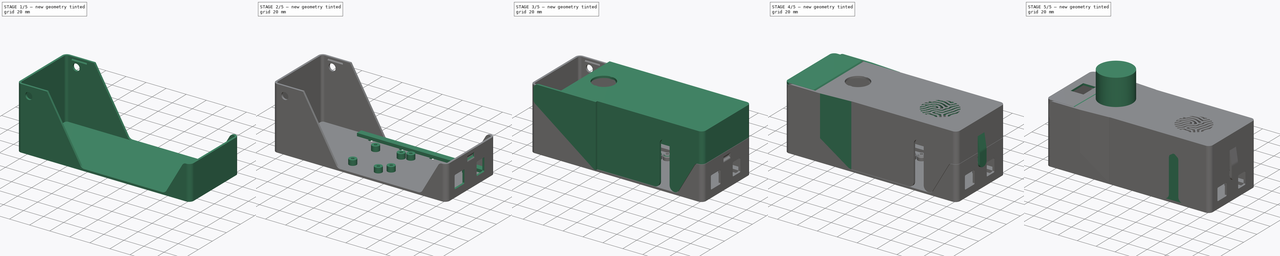
[diagram: build sequence overview — one tinted view per stage of 5, left to right]
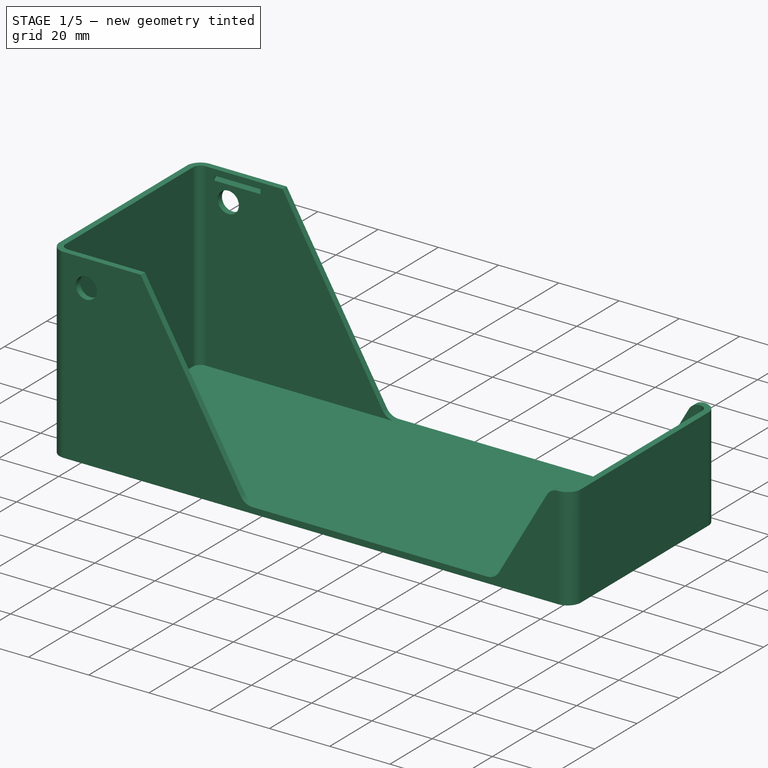
[diagram: stage 1 of 5 — iso view after this stage's code; geometry added in this stage tinted green]
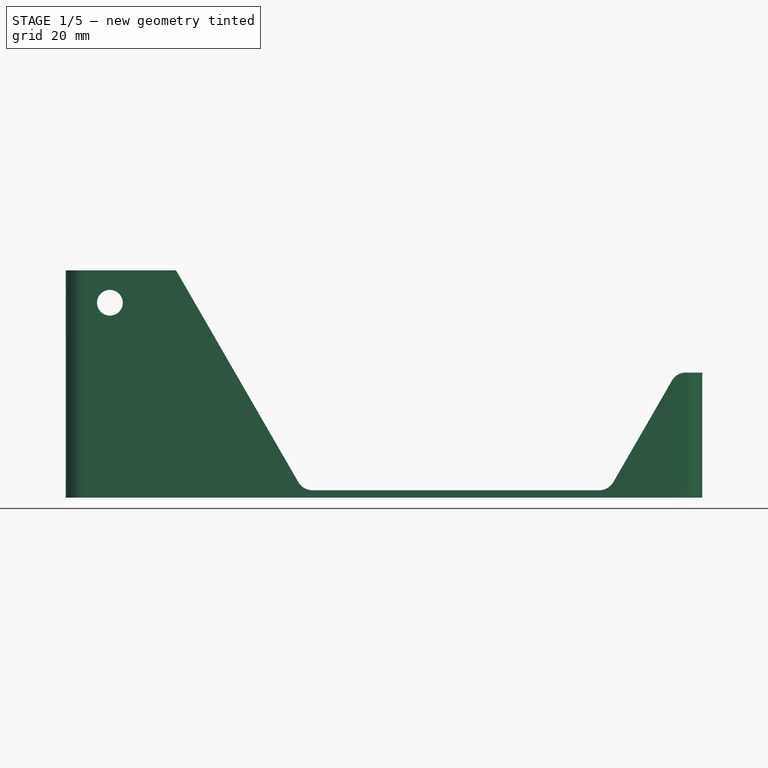
[diagram: stage 1 of 5 — front view after this stage's code; geometry added in this stage tinted green]
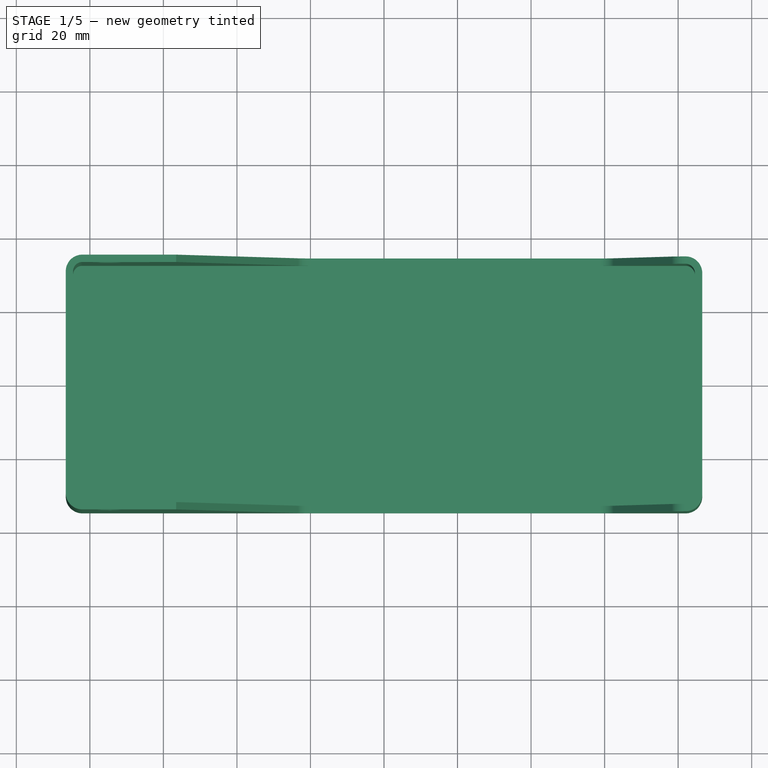
[diagram: stage 1 of 5 — top view after this stage's code; geometry added in this stage tinted green]
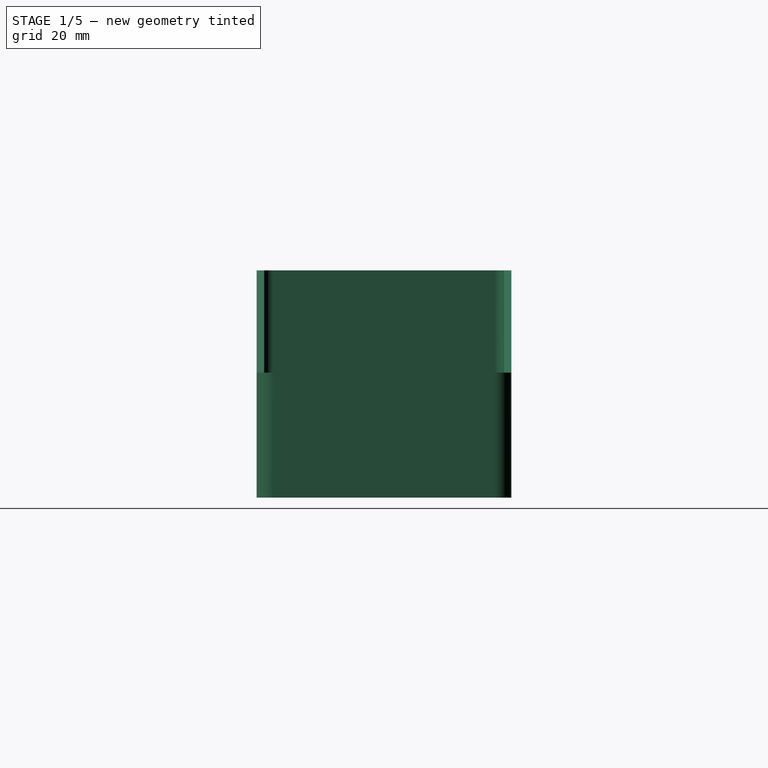
[diagram: stage 1 of 5 — right view after this stage's code; geometry added in this stage tinted green]
FCSTD DOCUMENT  (FreeCAD 0.20R29177 (Git))
Label: psu_xs_V5
License: All rights reserved
LicenseURL: http://en.wikipedia.org/wiki/All_rights_reserved
objects: Sketcher::SketchObject×31, PartDesign::Pad×18, PartDesign::Pocket×11, Part::Feature×10, PartDesign::Body×9, Part::FeaturePython×6, PartDesign::Mirrored×6, App::DocumentObjectGroup×4, PartDesign::FeatureBase×3, PartDesign::Chamfer×2, PartDesign::LinearPattern×2, Spreadsheet::Sheet×1, PartDesign::Fillet×1
note: 131 computed .brp shape members not serialized (recipe doc carries the construction recipe); baked Part::Feature solids carry a one-line shape summary decoded from their .brp

FEATURE [Spreadsheet::Sheet] Spreadsheet
  cells = A1=wall thickness; B1(wall_thickness)==2mm; A3=Base; A4=length (inside); B4(base_length_inside)==ard_dist_from_front + ard_len + pcb_distance_from_arduino + pcb_width + estop_diameter + from_estop_to_small_lid + smalllid_width - wall_thickness; C4=length (outise); D4(base_length_outside)==base_length_inside + wall_thickness * 2; A5=width (inside); B5(base_width_inside)==ard_side_distance * 2 + ard_wid + wire_path_ydir * 2 + wire_path_width; C5=width (outside); D5(base_width_outside)==base_width_inside + wall_thickness * 2; A6=height (inside); B6(base_height_inside)==60mm; C6=height (outside); D6(base_height_outside)==base_height_inside + wall_thickness * 2; A7=corner diam (inside); B7(base_corner_diam_inside)==5mm; C7=corner diam (outside); D7(base_corner_diam_outside)==base_corner_diam_inside + wall_thickness * 2; A8=axis hole diameter; B8(base_axis_diameter)==7mm; A9=axis xcenter; B9(base_axis_xcenter)==base_length_outside / 2 - smalllid_width / 2 + 3mm; A10=axis zcenter; B10(base_axis_zcenter)==53mm; A11=spacers height; B11(base_spacers_height)==5mm; A12=spacers diameter; B12(base_spacers_diameter)==7.4mm; A13=small lid notch; B13(base_smalllid_notch)==1.5mm; A14=small lid notch from top; B14(base_smalllid_notch_from_top)==wall_thickness + 2mm; A15=big lid notch diameter; B15(base_big_lid_notch_diameter)==3.4mm; A16=big lid notch length; B16(base_big_lid_notch_length)==10mm; A17=big lid notch height; B17(base_big_lid_notch_height)==28mm; A18=wire path width; B18(wire_path_width)==6mm; A19=wire path thickness; B19(wire_path_thickness)==3mm; A20=wire path length; B20(wire_path_length)==base_length_inside; A21=wire path hole xdir; B21(wire_path_xdir)==4mm; A22=wire path hole ydir; B22(wire_path_ydir)==1.5mm; A23=wire path ycenter; B23(wire_path_ycenter)==ard_ycenter + ard_wid / 2 + ard_side_distance + wire_path_width / 2 + wire_path_ydir; A25=Lid; A28=Arduino UNO board; A29=center x; B29(ard_xcenter)==base_length_inside / 2 - ard_len / 2 - 2mm; A30=center y; B30(ard_ycenter)==-(base_width_inside / 2 - ard_side_distance - ard_wid / 2); A31=center z; B31(ard_zcenter)==wall_thickness + base_spacers_height; A32=Arduino width; B32(ard_wid)==53.3mm; A33=Arduino length; B33(ard_len)==68.7mm; A34=hole 1:  widthwise dist from center; B34(hole1_widthwise_dist)==24.15mm; A35=hole 1:  lengthwise dist from center; B35(hole1_lengthwise_dist)==20.35mm; A36=hole 2:  widthwise dist from center; B36(hole2_widthwise_dist)==24.11mm; A37=hole 2:  lengthwise dist from center; B37(hole2_lengthwise_dist)==19.11mm; A38=hole 3:  widthwise dist from center; B38(hole3_widthwise_dist)==8.869999999999999mm; A39=hole 3:  lengthwise dist from center; B39(hole3_lengthwise_dist)==31.69mm; A40=hole 4:  widthwise dist from center; B40(hole4_widthwise_dist)==19.07mm; A41=hole 4:  lengthwise dist from center; B41(hole4_lengthwise_dist)==31.69mm; A42=Arduino distance from front panel; B42(ard_dist_from_front)==2mm; A43=distance from sides; B43(ard_side_distance)==1.5mm; A45=holes diameter; B45(holes_diam)==2.8mm; A46=offset; B46(offset)==0.2mm; A47=holes_out_offset; B47(hole_out_offset)==7.4mm; A49=PCB filter; A50=x center; B50(pcb_xcenter)==ard_xcenter - ard_len / 2 - pcb_distance_from_arduino - pcb_width / 2; A51=y center; B51(pcb_ycenter)==ard_ycenter; A52=z center; B52(pcb_zcenter)==wall_thickness + base_spacers_height; A53=pcb holes length separation; B53(pcb_holes_length_sep)==32.5mm; A54=pcb holes width separation; B54(pcb_holes_width_sep)==25.5mm; A55=pcb length; B55(pcb_length)==39.6mm; A56=pcb width; B56(pcb_width)==31.4mm; A57=pcb distance from arduino; B57(pcb_distance_from_arduino)==2mm; A59=E-stop; A60=xcenter; B60(estop_xcenter)==pcb_xcenter - pcb_width / 2 - estop_diameter / 2; A61=ycenter; B61(estop_ycenter)==0mm; A62=zcenter; B62(estop_zcenter)==base_height_outside - wall_thickness; A63=diameter; B63(estop_diameter)==35mm; A64=from estop to small lid; B64(from_estop_to_small_lid)==2mm; A66=Small lid; A67=width; B67(smalllid_width)==30mm; A68=notch length; B68(smalllid_notch_length)==15mm; A69=xcenter; B69(smalllid_xcenter)==-(base_length_outside / 2 - smalllid_width / 2)
FEATURE [Sketcher::SketchObject] Sketch
  FullyConstrained = true
  MapMode = 5
  Support = -> [XY_Plane]
  expr: Constraints[20] = Spreadsheet.base_length_outside
  expr: Constraints[21] = Spreadsheet.base_width_outside
  expr: Constraints[22] = Spreadsheet.base_corner_diam_outside
  sketch-geometry (10):
    g0: ArcOfCircle CenterX=-82.05 CenterY=30.15 CenterZ=0 NormalX=0 NormalY=0 NormalZ=1 AngleXU=0 Radius=4.5 StartAngle=1.5708 EndAngle=3.14159
    g1: LineSegment StartX=-82.05 StartY=34.65 StartZ=0 EndX=82.05 EndY=34.65 EndZ=0
    g2: ArcOfCircle CenterX=82.05 CenterY=30.15 CenterZ=0 NormalX=0 NormalY=0 NormalZ=1 AngleXU=0 Radius=4.5 StartAngle=-8e-15 EndAngle=1.5708
    g3: LineSegment StartX=86.55 StartY=30.15 StartZ=0 EndX=86.55 EndY=-30.15 EndZ=0
    g4: ArcOfCircle CenterX=82.05 CenterY=-30.15 CenterZ=0 NormalX=0 NormalY=0 NormalZ=1 AngleXU=0 Radius=4.5 StartAngle=4.71239 EndAngle=6.28319
    g5: LineSegment StartX=82.05 StartY=-34.65 StartZ=0 EndX=-82.05 EndY=-34.65 EndZ=0
    g6: ArcOfCircle CenterX=-82.05 CenterY=-30.15 CenterZ=0 NormalX=0 NormalY=0 NormalZ=1 AngleXU=0 Radius=4.5 StartAngle=3.14159 EndAngle=4.71239
    g7: LineSegment StartX=-86.55 StartY=-30.15 StartZ=0 EndX=-86.55 EndY=30.15 EndZ=0
    g8: GeomPoint X=-86.55 Y=34.65 Z=0
    g9: GeomPoint X=86.55 Y=-34.65 Z=0
  constraints (23):
    c: Tangent(g0,g1) = 1.5708
    c: Tangent(g1,g2) = 1.5708
    c: Tangent(g2,g3) = 1.5708
    c: Tangent(g3,g4) = 1.5708
    c: Tangent(g4,g5) = 1.5708
    c: Tangent(g5,g6) = 1.5708
    c: Tangent(g6,g7) = 1.5708
    c: Tangent(g7,g0) = 1.5708
    c: Horizontal(g1)
    c: Horizontal(g5)
    c: Vertical(g3)
    c: Vertical(g7)
    c: Equal(g0,g2)
    c: Equal(g2,g4)
    c: Equal(g4,g6)
    c: PointOnObject(g8,g1)
    c: PointOnObject(g8,g7)
    c: PointOnObject(g9,g3)
    c: PointOnObject(g9,g5)
    c: Symmetric(g2,g6,g-1)
    c: DistanceX(g0,g2) = 173.1
    c: DistanceY(g5,g0) = 69.3
    c: Diameter(g0) = 9
FEATURE [PartDesign::Pad] Pad
  Direction = (0,0,1)
  Length = 64
  Length2 = 10
  Profile = -> Sketch
  ReferenceAxis = -> Sketch [N_Axis]
  Type = 0
  expr: Length = Spreadsheet.base_height_outside
FEATURE [Sketcher::SketchObject] Sketch001
  AttachmentOffset = pos=(0,0,2) rot=(0,0,1;0rad)
  FullyConstrained = true
  MapMode = 5
  Placement = pos=(0,0,2) rot=(0,0,1;0rad)
  Support = -> [XY_Plane]
  expr: .AttachmentOffset.Base.z = Spreadsheet.wall_thickness
  expr: Constraints[20] = Spreadsheet.base_length_inside
  expr: Constraints[21] = Spreadsheet.base_width_inside
  expr: Constraints[22] = Spreadsheet.base_corner_diam_inside
  sketch-geometry (10):
    g0: ArcOfCircle CenterX=-82.05 CenterY=30.15 CenterZ=0 NormalX=0 NormalY=0 NormalZ=1 AngleXU=0 Radius=2.5 StartAngle=1.5708 EndAngle=3.14159
    g1: LineSegment StartX=-82.05 StartY=32.65 StartZ=0 EndX=82.05 EndY=32.65 EndZ=0
    g2: ArcOfCircle CenterX=82.05 CenterY=30.15 CenterZ=0 NormalX=0 NormalY=0 NormalZ=1 AngleXU=0 Radius=2.5 StartAngle=-4.032e-13 EndAngle=1.5708
    g3: LineSegment StartX=84.55 StartY=30.15 StartZ=0 EndX=84.55 EndY=-30.15 EndZ=0
    g4: ArcOfCircle CenterX=82.05 CenterY=-30.15 CenterZ=0 NormalX=0 NormalY=0 NormalZ=1 AngleXU=0 Radius=2.5 StartAngle=4.71239 EndAngle=6.28319
    g5: LineSegment StartX=82.05 StartY=-32.65 StartZ=0 EndX=-82.05 EndY=-32.65 EndZ=0
    g6: ArcOfCircle CenterX=-82.05 CenterY=-30.15 CenterZ=0 NormalX=0 NormalY=0 NormalZ=1 AngleXU=0 Radius=2.5 StartAngle=3.14159 EndAngle=4.71239
    g7: LineSegment StartX=-84.55 StartY=-30.15 StartZ=0 EndX=-84.55 EndY=30.15 EndZ=0
    g8: GeomPoint X=-84.55 Y=32.65 Z=0
    g9: GeomPoint X=84.55 Y=-32.65 Z=0
  constraints (23):
    c: Tangent(g0,g1) = 1.5708
    c: Tangent(g1,g2) = 1.5708
    c: Tangent(g2,g3) = 1.5708
    c: Tangent(g3,g4) = 1.5708
    c: Tangent(g4,g5) = 1.5708
    c: Tangent(g5,g6) = 1.5708
    c: Tangent(g6,g7) = 1.5708
    c: Tangent(g7,g0) = 1.5708
    c: Horizontal(g1)
    c: Horizontal(g5)
    c: Vertical(g3)
    c: Vertical(g7)
    c: Equal(g0,g2)
    c: Equal(g2,g4)
    c: Equal(g4,g6)
    c: PointOnObject(g8,g1)
    c: PointOnObject(g8,g7)
    c: PointOnObject(g9,g3)
    c: PointOnObject(g9,g5)
    c: Symmetric(g2,g6,g-1)
    c: DistanceX(g0,g2) = 169.1
    c: DistanceY(g5,g0) = 65.3
    c: Diameter(g0) = 5
FEATURE [PartDesign::Pocket] Pocket
  BaseFeature = -> Pad
  Direction = (0,0,-1)
  Length = 60
  Length2 = 5
  Profile = -> Sketch001
  ReferenceAxis = -> Sketch001 [N_Axis]
  Reversed = true
  Type = 0
  expr: Length = Spreadsheet.base_height_inside
FEATURE [PartDesign::Body] Body  label="base_shell"
  Group = -> [Sketch,Pad,Sketch001,Pocket]
  Origin = -> Origin
  Tip = -> Pocket
FEATURE [Sketcher::SketchObject] Sketch002
  FullyConstrained = true
  MapMode = 5
  Placement = pos=(0,0,0) rot=(1,0,0;1.5708rad)
  Support = -> [XZ_Plane001]
  expr: Constraints[19] = Spreadsheet.base_length_outside / 2
  expr: Constraints[20] = Spreadsheet.base_length_outside / 2
  expr: Constraints[22] = Spreadsheet.base_height_outside - Spreadsheet.wall_thickness
  expr: Constraints[23] = Spreadsheet.offset
  expr: Constraints[24] = Spreadsheet.wall_thickness
  expr: Constraints[26] = Spreadsheet.smalllid_width
  expr: Constraints[31] = Spreadsheet.offset
  expr: Constraints[34] = Spreadsheet.ard_xcenter
  expr: Constraints[43] = Spreadsheet.offset
  expr: Constraints[49] = Spreadsheet.wall_thickness
  expr: Constraints[54] = Spreadsheet.base_corner_diam_outside
  expr: Constraints[60] = Spreadsheet.base_corner_diam_outside
  expr: Constraints[71] = Spreadsheet.base_corner_diam_outside
  expr: Constraints[73] = Spreadsheet.base_corner_diam_outside / 2
  sketch-geometry (32):
    g0: LineSegment StartX=-86.55 StartY=62 StartZ=0 EndX=-86.55 EndY=61.8 EndZ=0
    g1: LineSegment StartX=-86.55 StartY=61.8 StartZ=0 EndX=-56.55 EndY=61.8 EndZ=0
    g2: LineSegment StartX=-56.55 StartY=61.8 StartZ=0 EndX=-23.3235 EndY=4.25 EndZ=0
    g3: LineSegment StartX=-19.4264 StartY=2 StartZ=0 EndX=58.4941 EndY=2 EndZ=0
    g4: LineSegment StartX=62.3912 StartY=4.25 StartZ=0 EndX=78.3261 EndY=31.85 EndZ=0
    g5: LineSegment StartX=82.05 StartY=34 StartZ=0 EndX=86.55 EndY=34 EndZ=0
    g6: LineSegment StartX=86.55 StartY=34 StartZ=0 EndX=86.55 EndY=34.2 EndZ=0
    g7: LineSegment StartX=86.55 StartY=34.2 StartZ=0 EndX=82.05 EndY=34.2 EndZ=0
    g8: LineSegment StartX=78.1529 StartY=31.95 StartZ=0 EndX=62.218 EndY=4.35 EndZ=0
    g9: LineSegment StartX=58.4941 StartY=2.2 StartZ=0 EndX=58.2 EndY=2.2 EndZ=0
    g10: LineSegment StartX=53.2 StartY=7.2 StartZ=0 EndX=53.2 EndY=42.2 EndZ=0
    g11: LineSegment StartX=43.2 StartY=42.2 StartZ=0 EndX=43.2 EndY=7.2 EndZ=0
    g12: LineSegment StartX=38.2 StartY=2.2 StartZ=0 EndX=-19.4264 EndY=2.2 EndZ=0
    g13: LineSegment StartX=-23.1503 StartY=4.35 StartZ=0 EndX=-55.55 EndY=60.4679 EndZ=0
    g14: LineSegment StartX=-55.55 StartY=60.4679 StartZ=0 EndX=-55.55 EndY=64 EndZ=0
    g15: LineSegment StartX=-55.55 StartY=64 StartZ=0 EndX=-56.55 EndY=64 EndZ=0
    g16: LineSegment StartX=-56.55 StartY=64 StartZ=0 EndX=-56.55 EndY=62 EndZ=0
    g17: LineSegment StartX=-56.55 StartY=62 StartZ=0 EndX=-86.55 EndY=62 EndZ=0
    g18: LineSegment StartX=-55.55 StartY=60.4679 StartZ=0 EndX=-55.7232 EndY=60.3679 EndZ=0
    g19: GeomPoint X=48.2 Y=2 Z=0
    g20: ArcOfCircle CenterX=48.2 CenterY=42.2 CenterZ=0 NormalX=0 NormalY=0 NormalZ=1 AngleXU=0 Radius=5 StartAngle=0 EndAngle=3.14159
    g21: ArcOfCircle CenterX=-19.4264 CenterY=6.5 CenterZ=0 NormalX=0 NormalY=0 NormalZ=1 AngleXU=0 Radius=4.3 StartAngle=3.66519 EndAngle=4.71239
    g22: ArcOfCircle CenterX=-19.4264 CenterY=6.5 CenterZ=0 NormalX=0 NormalY=0 NormalZ=1 AngleXU=0 Radius=4.5 StartAngle=3.66519 EndAngle=4.71239
    g23: LineSegment StartX=-19.4264 StartY=2 StartZ=0 EndX=-19.4264 EndY=2.2 EndZ=0
    g24: ArcOfCircle CenterX=58.4941 CenterY=6.5 CenterZ=0 NormalX=0 NormalY=0 NormalZ=1 AngleXU=0 Radius=4.3 StartAngle=4.71239 EndAngle=5.75959
    g25: ArcOfCircle CenterX=58.4941 CenterY=6.5 CenterZ=0 NormalX=0 NormalY=0 NormalZ=1 AngleXU=0 Radius=4.5 StartAngle=4.71239 EndAngle=5.75959
    g26: ArcOfCircle CenterX=38.2 CenterY=7.2 CenterZ=0 NormalX=0 NormalY=0 NormalZ=1 AngleXU=0 Radius=5 StartAngle=4.71239 EndAngle=6.28319
    g27: ArcOfCircle CenterX=58.2 CenterY=7.2 CenterZ=0 NormalX=0 NormalY=0 NormalZ=1 AngleXU=0 Radius=5 StartAngle=3.14159 EndAngle=4.71239
    g28: ArcOfCircle CenterX=82.05 CenterY=29.7 CenterZ=0 NormalX=0 NormalY=0 NormalZ=1 AngleXU=0 Radius=4.3 StartAngle=1.5708 EndAngle=2.61799
    g29: ArcOfCircle CenterX=82.05 CenterY=29.7 CenterZ=0 NormalX=0 NormalY=0 NormalZ=1 AngleXU=0 Radius=4.5 StartAngle=1.5708 EndAngle=2.61799
    g30: LineSegment StartX=-56.55 StartY=62 StartZ=0 EndX=-57.7047 EndY=64 EndZ=0
    g31: LineSegment StartX=-57.7047 StartY=64 StartZ=0 EndX=-56.55 EndY=64 EndZ=0
  constraints (82):
    c: Vertical(g0)
    c: Coincident(g0,g1)
    c: Horizontal(g1)
    c: Coincident(g1,g2)
    c: Horizontal(g3)
    c: Coincident(g5,g6)
    c: Coincident(g6,g7)
    c: Vertical(g10)
    c: Vertical(g11)
    c: Horizontal(g12)
    c: Coincident(g13,g14)
    c: Vertical(g14)
    c: Coincident(g14,g15)
    c: Horizontal(g15)
    c: Coincident(g15,g16)
    c: Vertical(g16)
    c: Coincident(g16,g17)
    c: Coincident(g17,g0)
    c: Horizontal(g17)
    c: DistanceX(g0,g-1) = 86.55
    c: DistanceX(g-1,g5) = 86.55
    c: Vertical(g6)
    c: DistanceY(g-1,g0) = 62
    c: DistanceY(g0,g0) = 0.2
    c: DistanceY(g16,g16) = 2
    c: Vertical(g1,g16)
    c: DistanceX(g17,g17) = 30
    c: DistanceX(g15,g15) = 1
    c: Coincident(g18,g13)
    c: PointOnObject(g18,g2)
    c: Perpendicular(g13,g18)
    c: Distance(g18) = 0.2
    c: Parallel(g2,g13)
    c: PointOnObject(g19,g3)
    c: DistanceX(g-1,g19) = 48.2
    c: Parallel(g8,g4)
    c: Horizontal(g9)
    c: Tangent(g20,g10) = -1.5708
    c: Tangent(g20,g11) = -1.5708
    c: Vertical(g19,g20)
    c: Diameter(g20) = 10
    c: Horizontal(g5)
    c: Horizontal(g7)
    c: DistanceY(g6,g6) = 0.2
    c: DistanceY(g-1,g5) = 34
    c: Tangent(g13,g21) = 1.5708
    c: Tangent(g12,g21) = 1.5708
    c: Tangent(g3,g22) = -1.5708
    c: Tangent(g2,g22) = -1.5708
    c: DistanceY(g-1,g3) = 2
    c: Coincident(g23,g3)
    c: PointOnObject(g23,g12)
    c: Vertical(g23)
    c: Coincident(g21,g22)
    c: Diameter(g22) = 9
    c: Tangent(g9,g24) = 1.5708
    c: Tangent(g8,g24) = 1.5708
    c: Tangent(g3,g25) = -1.5708
    c: Tangent(g4,g25) = -1.5708
    c: Coincident(g24,g25)
    c: Diameter(g25) = 9
    c: Tangent(g12,g26) = 1.5708
    c: Tangent(g11,g26) = 1.5708
    c: Tangent(g10,g27) = 1.5708
    c: Tangent(g9,g27) = 1.5708
    c: Equal(g27,g26)
    c: Equal(g26,g20)
    c: Tangent(g5,g28) = 1.5708
    c: Tangent(g4,g28) = 1.5708
    c: Tangent(g8,g29) = -1.5708
    c: Tangent(g7,g29) = -1.5708
    c: Diameter(g29) = 9
    c: Coincident(g28,g29)
    c: DistanceX(g5,g5) = 4.5
    c: Angle(g4,g3) = 2.0944
    c: Angle(g3,g2) = 2.0944
    c: DistanceY(g12,g11) = 40
    c: Coincident(g17,g30)
    c: Coincident(g30,g31)
    c: Coincident(g31,g15)
    c: Horizontal(g31)
    c: Parallel(g30,g13)
FEATURE [PartDesign::Pad] Pad001  label="splitter"
  Direction = (0,-1,-2e-16)
  Length = 69.3
  Length2 = 10
  Midplane = true
  Placement = pos=(0,0,0) rot=(1,0,0;1.5708rad)
  Profile = -> Sketch002
  ReferenceAxis = -> Sketch002 [N_Axis]
  Type = 0
  expr: Length = Spreadsheet.base_width_outside
FEATURE [PartDesign::Body] Body001
  Group = -> [Sketch002,Pad001]
  Origin = -> Origin001
  Tip = -> Pad001
FEATURE [Part::FeaturePython] Slice  # WARN: FeaturePython — macro-defined, semantics opaque (R4)
  Base = -> Body
  Mode = 1
  Tolerance = 0
  Tools = -> [Body001]
FEATURE [Part::FeaturePython] Slice_child0  label="Slice.0"  # WARN: FeaturePython — macro-defined, semantics opaque (R4)
  Base = -> Slice
  FilterType = 1
  Invert = false
  OverrideMaxVal = 0
  WindowFrom = 80
  WindowTo = 100
  items = 0
FEATURE [App::DocumentObjectGroup] GrExplode_Slice  label="Exploded Slice"
  Group = -> [Slice_child0,Slice_child1,Slice_child2,Slice_child3]
FEATURE [PartDesign::FeatureBase] BaseFeature
  BaseFeature = -> Slice_child0
FEATURE [PartDesign::Body] Body007  label="estop"
  Group = -> [Sketch059,Pad007,Sketch060,Sketch061,Pad008]
  Origin = -> Origin007
  Tip = -> Pad008
FEATURE [Sketcher::SketchObject] Sketch062
  AttachmentOffset = pos=(-74.55,53,0) rot=(0,0,1;0rad)
  FullyConstrained = true
  MapMode = 5
  Placement = pos=(-74.55,-1.18e-14,53) rot=(1,0,0;1.5708rad)
  Support = -> [XZ_Plane002]
  expr: .AttachmentOffset.Base.x = -Spreadsheet.base_axis_xcenter
  expr: .AttachmentOffset.Base.y = Spreadsheet.base_axis_zcenter
  expr: Constraints[1] = Spreadsheet.base_axis_diameter
  sketch-geometry (1):
    g0: Circle CenterX=0 CenterY=0 CenterZ=0 NormalX=0 NormalY=0 NormalZ=1 AngleXU=0 Radius=3.5
  constraints (2):
    c: Coincident(g0,g-1)
    c: Diameter(g0) = 7
FEATURE [PartDesign::Pocket] Pocket001  label="axis"
  BaseFeature = -> BaseFeature
  Direction = (0,1,2e-16)
  Length = 5
  Length2 = 5
  Midplane = true
  Profile = -> Sketch062
  ReferenceAxis = -> Sketch062 [N_Axis]
  Type = 1
FEATURE [PartDesign::Body] Body008  label="switch"
  Group = -> [Sketch064,Pad009]
  Origin = -> Origin008
  Placement = pos=(-71.55,0,64) rot=(0,0,1;0rad)
  Tip = -> Pad009
  expr: .Placement.Base.x = Spreadsheet.smalllid_xcenter
  expr: .Placement.Base.z = Spreadsheet.base_height_outside
FEATURE [App::DocumentObjectGroup] Group001  label="Additional parts"
  Group = -> [Body005,Body006,Body007,Body008]
FEATURE [Sketcher::SketchObject] Sketch065
  AttachmentOffset = pos=(0,16,-86.55) rot=(0,0,1;0rad)
  FullyConstrained = true
  MapMode = 5
  Placement = pos=(-86.55,2.28e-14,16) rot=(0.57735,0.57735,0.57735;2.0944rad)
  Support = -> [YZ_Plane002]
  expr: .AttachmentOffset.Base.z = -Spreadsheet.base_length_outside / 2
  sketch-geometry (3):
    g0: ArcOfCircle CenterX=0 CenterY=0 CenterZ=0 NormalX=0 NormalY=0 NormalZ=1 AngleXU=0 Radius=5.65 StartAngle=1.99467 EndAngle=7.43011
    g1: LineSegment StartX=-2.32379 StartY=5.15 StartZ=0 EndX=2.32379 EndY=5.15 EndZ=0
    g2: GeomPoint X=0 Y=-5.65 Z=0
  constraints (8):
    c: Coincident(g0,g-1)
    c: Coincident(g1,g0)
    c: Coincident(g1,g0)
    c: Horizontal(g1)
    c: PointOnObject(g2,g0)
    c: PointOnObject(g2,g-2)
    c: DistanceY(g2,g0) = 10.8
    c: Diameter(g0) = 11.3
FEATURE [PartDesign::Pocket] Pocket003  label="12v_plug_hole"
  BaseFeature = -> Pocket001
  Direction = (-1,2e-16,-3e-16)
  Length = 2
  Length2 = 5
  Profile = -> Sketch065
  ReferenceAxis = -> Sketch065 [N_Axis]
  Reversed = true
  Type = 0
  expr: Length = Spreadsheet.wall_thickness
FEATURE [Sketcher::SketchObject] Sketch066
  AttachmentOffset = pos=(32.65,59.8,-71.55) rot=(0,0,1;0rad)
  FullyConstrained = true
  MapMode = 5
  Placement = pos=(-71.55,32.65,59.8) rot=(0.57735,0.57735,0.57735;2.0944rad)
  Support = -> [YZ_Plane002]
  expr: .AttachmentOffset.Base.x = Spreadsheet.base_width_inside / 2
  expr: .AttachmentOffset.Base.y = Spreadsheet.base_height_outside - Spreadsheet.offset - Spreadsheet.base_smalllid_notch_from_top
  expr: .AttachmentOffset.Base.z = -(Spreadsheet.base_length_outside / 2 - Spreadsheet.smalllid_width / 2)
  expr: Constraints[6] = Spreadsheet.base_smalllid_notch
  sketch-geometry (3):
    g0: LineSegment StartX=0 StartY=0 StartZ=0 EndX=0 EndY=-1.5 EndZ=0
    g1: LineSegment StartX=0 StartY=-1.5 StartZ=0 EndX=1.5 EndY=0 EndZ=0
    g2: LineSegment StartX=1.5 StartY=0 StartZ=0 EndX=0 EndY=0 EndZ=0
  constraints (8):
    c: Coincident(g0,g-1)
    c: PointOnObject(g0,g-2)
    c: Coincident(g0,g1)
    c: PointOnObject(g1,g-1)
    c: Coincident(g1,g2)
    c: Coincident(g2,g0)
    c: DistanceY(g0,g0) = 1.5
    c: Equal(g2,g0)
FEATURE [PartDesign::Pocket] Pocket004
  BaseFeature = -> Pocket003
  Direction = (-1,2e-16,-3e-16)
  Length = 15.4
  Length2 = 5
  Midplane = true
  Profile = -> Sketch066
  ReferenceAxis = -> Sketch066 [N_Axis]
  Type = 0
  expr: Length = Spreadsheet.smalllid_notch_length + Spreadsheet.offset * 2
FEATURE [PartDesign::Mirrored] Mirrored
  BaseFeature = -> Pocket004
  MirrorPlane = -> XZ_Plane002
  Originals = -> [Pocket004]
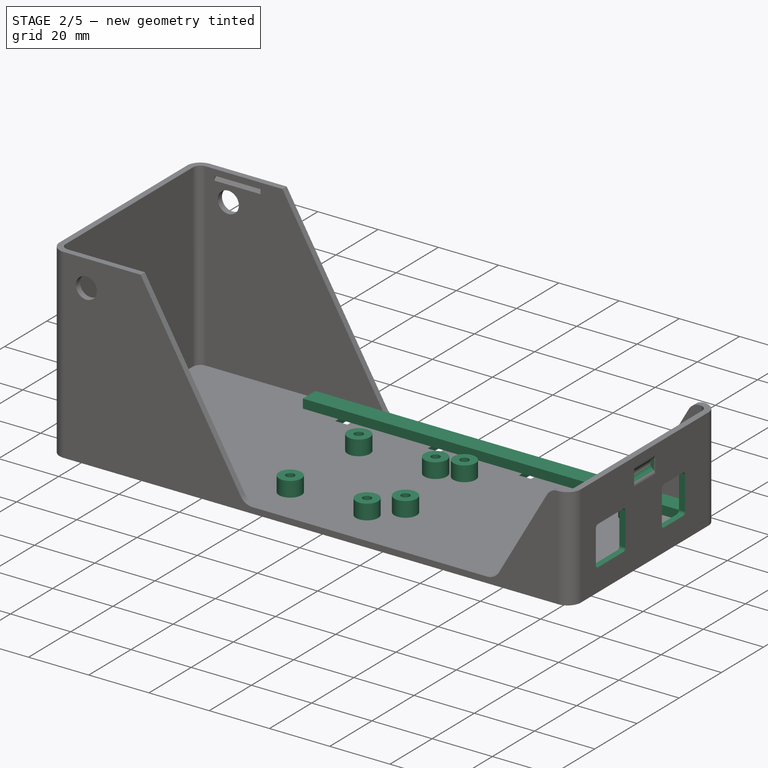
[diagram: stage 2 of 5 — iso view after this stage's code; geometry added in this stage tinted green]
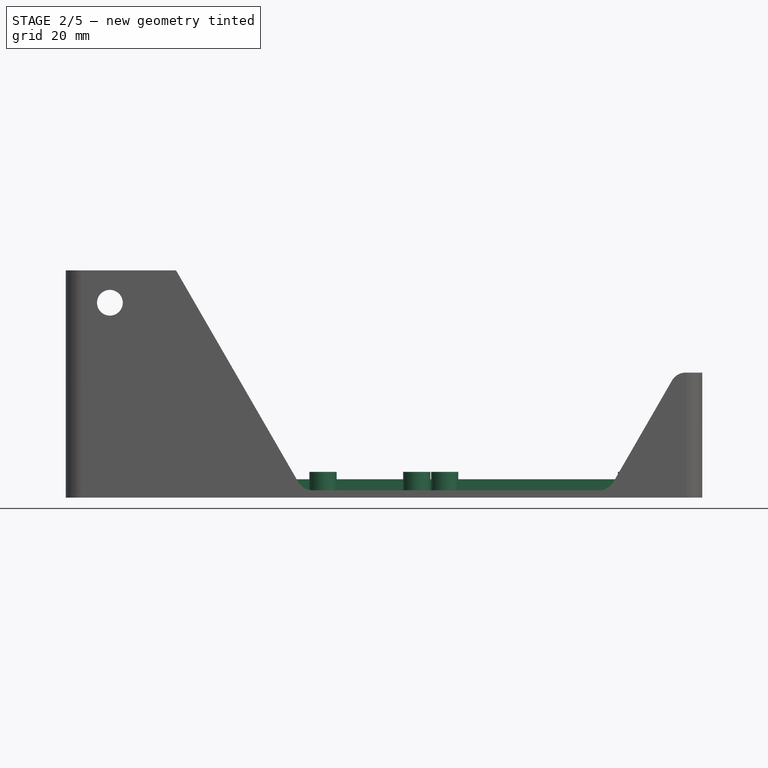
[diagram: stage 2 of 5 — front view after this stage's code; geometry added in this stage tinted green]
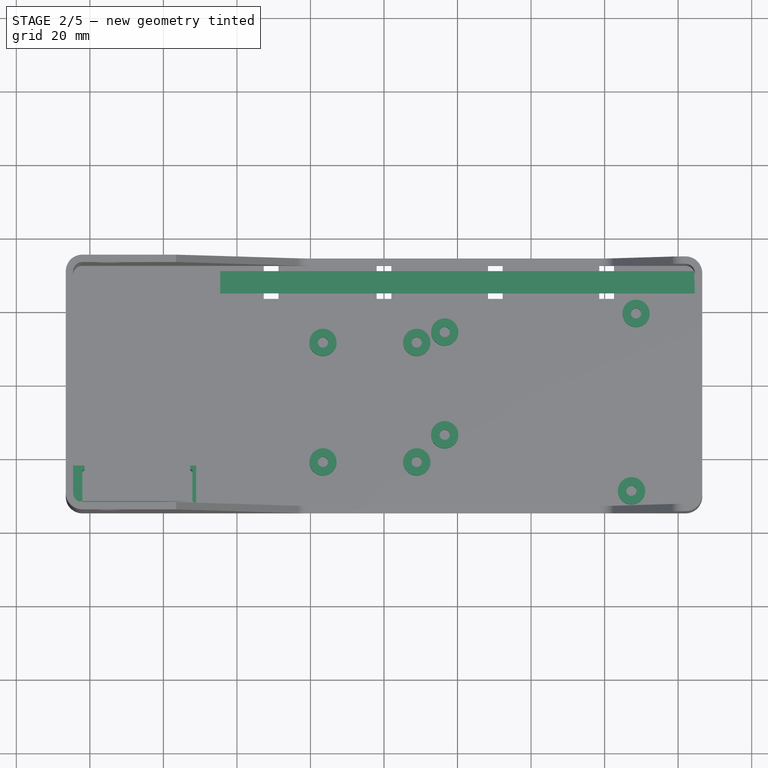
[diagram: stage 2 of 5 — top view after this stage's code; geometry added in this stage tinted green]
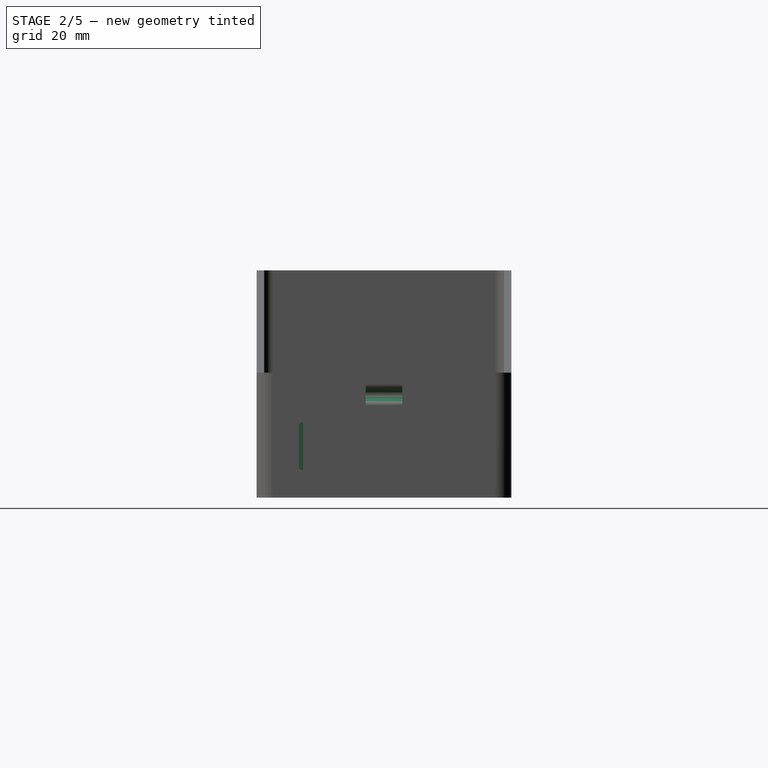
[diagram: stage 2 of 5 — right view after this stage's code; geometry added in this stage tinted green]
FEATURE [Sketcher::SketchObject] Sketch067
  AttachmentOffset = pos=(-4.5,7,86.55) rot=(0,0,1;0rad)
  FullyConstrained = true
  MapMode = 5
  Placement = pos=(86.55,-4.5,7) rot=(0.57735,0.57735,0.57735;2.0944rad)
  Support = -> [YZ_Plane002]
  expr: .AttachmentOffset.Base.x = Spreadsheet.ard_ycenter
  expr: .AttachmentOffset.Base.y = Spreadsheet.ard_zcenter
  expr: .AttachmentOffset.Base.z = Spreadsheet.base_length_outside / 2
  expr: Constraints[43] = Spreadsheet.ard_wid
  sketch-geometry (21):
    g0: ArcOfCircle CenterX=-17.65 CenterY=12.5 CenterZ=0 NormalX=0 NormalY=0 NormalZ=1 AngleXU=0 Radius=1 StartAngle=1.5708 EndAngle=3.14159
    g1: LineSegment StartX=-17.65 StartY=13.5 StartZ=0 EndX=-5.65 EndY=13.5 EndZ=0
    g2: ArcOfCircle CenterX=-5.65 CenterY=12.5 CenterZ=0 NormalX=0 NormalY=0 NormalZ=1 AngleXU=0 Radius=1 StartAngle=0 EndAngle=1.5708
    g3: LineSegment StartX=-4.65 StartY=12.5 StartZ=0 EndX=-4.65 EndY=1.5 EndZ=0
    g4: ArcOfCircle CenterX=-5.65 CenterY=1.5 CenterZ=0 NormalX=0 NormalY=0 NormalZ=1 AngleXU=0 Radius=1 StartAngle=4.71239 EndAngle=6.28319
    g5: LineSegment StartX=-5.65 StartY=0.5 StartZ=0 EndX=-17.65 EndY=0.5 EndZ=0
    g6: ArcOfCircle CenterX=-17.65 CenterY=1.5 CenterZ=0 NormalX=0 NormalY=0 NormalZ=1 AngleXU=0 Radius=1 StartAngle=3.14159 EndAngle=4.71239
    g7: LineSegment StartX=-18.65 StartY=1.5 StartZ=0 EndX=-18.65 EndY=12.5 EndZ=0
    g8: GeomPoint X=-18.65 Y=13.5 Z=0
    g9: GeomPoint X=-4.65 Y=0.5 Z=0
    g10: ArcOfCircle CenterX=13.65 CenterY=12.5 CenterZ=0 NormalX=0 NormalY=0 NormalZ=1 AngleXU=0 Radius=1 StartAngle=1.5708 EndAngle=3.14159
    g11: LineSegment StartX=13.65 StartY=13.5 StartZ=0 EndX=22.65 EndY=13.5 EndZ=0
    g12: ArcOfCircle CenterX=22.65 CenterY=12.5 CenterZ=0 NormalX=0 NormalY=0 NormalZ=1 AngleXU=0 Radius=1 StartAngle=-9e-16 EndAngle=1.5708
    g13: LineSegment StartX=23.65 StartY=12.5 StartZ=0 EndX=23.65 EndY=1.5 EndZ=0
    g14: ArcOfCircle CenterX=22.65 CenterY=1.5 CenterZ=0 NormalX=0 NormalY=0 NormalZ=1 AngleXU=0 Radius=1 StartAngle=4.71239 EndAngle=6.28319
    g15: LineSegment StartX=22.65 StartY=0.5 StartZ=0 EndX=13.65 EndY=0.5 EndZ=0
    g16: ArcOfCircle CenterX=13.65 CenterY=1.5 CenterZ=0 NormalX=0 NormalY=0 NormalZ=1 AngleXU=0 Radius=1 StartAngle=3.14159 EndAngle=4.71239
    g17: LineSegment StartX=12.65 StartY=1.5 StartZ=0 EndX=12.65 EndY=12.5 EndZ=0
    g18: GeomPoint X=12.65 Y=13.5 Z=0
    g19: GeomPoint X=23.65 Y=0.5 Z=0
    g20: LineSegment StartX=-26.65 StartY=0 StartZ=0 EndX=26.65 EndY=0 EndZ=0
  constraints (51):
    c: Tangent(g0,g1) = 1.5708
    c: Tangent(g1,g2) = 1.5708
    c: Tangent(g2,g3) = 1.5708
    c: Tangent(g3,g4) = 1.5708
    c: Tangent(g4,g5) = 1.5708
    c: Tangent(g5,g6) = 1.5708
    c: Tangent(g6,g7) = 1.5708
    c: Tangent(g7,g0) = 1.5708
    c: Horizontal(g1)
    c: Horizontal(g5)
    c: Vertical(g3)
    c: Vertical(g7)
    c: Equal(g0,g2)
    c: Equal(g2,g4)
    c: Equal(g4,g6)
    c: PointOnObject(g8,g1)
    c: PointOnObject(g8,g7)
    c: PointOnObject(g9,g3)
    c: PointOnObject(g9,g5)
    c: Tangent(g10,g11) = 1.5708
    c: Tangent(g11,g12) = 1.5708
    c: Tangent(g12,g13) = 1.5708
    c: Tangent(g13,g14) = 1.5708
    c: Tangent(g14,g15) = 1.5708
    c: Tangent(g15,g16) = 1.5708
    c: Tangent(g16,g17) = 1.5708
    c: Tangent(g17,g10) = 1.5708
    c: Horizontal(g11)
    c: Horizontal(g15)
    c: Vertical(g13)
    c: Vertical(g17)
    c: Equal(g10,g12)
    c: Equal(g12,g14)
    c: Equal(g14,g16)
    c: PointOnObject(g18,g11)
    c: PointOnObject(g18,g17)
    c: PointOnObject(g19,g13)
    c: PointOnObject(g19,g15)
    c: Horizontal(g4,g15)
    c: Equal(g16,g4)
    c: Diameter(g4) = 2
    c: PointOnObject(g20,g-1)
    c: Symmetric(g20,g20,g-1)
    c: DistanceX(g20,g20) = 53.3
    c: DistanceX(g20,g6) = 8
    c: DistanceY(g5,g0) = 13
    c: DistanceX(g0,g2) = 14
    c: DistanceY(g-1,g4) = 0.5
    c: DistanceX(g13,g20) = 3
    c: DistanceY(g14,g11) = 13
    c: DistanceX(g10,g12) = 11
FEATURE [PartDesign::Pocket] Pocket005
  BaseFeature = -> Mirrored
  Direction = (-1,2e-16,-3e-16)
  Length = 2
  Length2 = 5
  Profile = -> Sketch067
  ReferenceAxis = -> Sketch067 [N_Axis]
  Type = 0
  expr: Length = Spreadsheet.wall_thickness
FEATURE [Sketcher::SketchObject] Sketch068
  AttachmentOffset = pos=(86.55,28,0) rot=(0,0,1;0rad)
  FullyConstrained = true
  MapMode = 5
  Placement = pos=(86.55,-6.2e-15,28) rot=(1,0,0;1.5708rad)
  Support = -> [XZ_Plane002]
  expr: .AttachmentOffset.Base.x = Spreadsheet.base_length_outside / 2
  expr: .AttachmentOffset.Base.y = Spreadsheet.base_big_lid_notch_height
  expr: Constraints[8] = Spreadsheet.base_big_lid_notch_diameter
  sketch-geometry (4):
    g0: ArcOfCircle CenterX=0 CenterY=0 CenterZ=0 NormalX=0 NormalY=0 NormalZ=1 AngleXU=0 Radius=1.7 StartAngle=2.0944 EndAngle=4.18879
    g1: ArcOfCircle CenterX=-1.7 CenterY=2.94449 CenterZ=0 NormalX=0 NormalY=0 NormalZ=1 AngleXU=0 Radius=1.7 StartAngle=5.23599 EndAngle=6.28319
    g2: ArcOfCircle CenterX=-1.7 CenterY=-2.94449 CenterZ=0 NormalX=0 NormalY=0 NormalZ=1 AngleXU=0 Radius=1.7 StartAngle=3e-16 EndAngle=1.0472
    g3: LineSegment StartX=0 StartY=2.94449 StartZ=0 EndX=0 EndY=-2.94449 EndZ=0
  constraints (10):
    c: PointOnObject(g1,g-2)
    c: Coincident(g0,g-1)
    c: Equal(g1,g0)
    c: Equal(g0,g2)
    c: Tangent(g2,g0) = 1.5708
    c: Tangent(g1,g0) = 1.5708
    c: Coincident(g3,g2)
    c: Symmetric(g1,g2,g0)
    c: Diameter(g0) = 3.4
    c: Tangent(g3,g1) = 1.5708
FEATURE [PartDesign::Pocket] Pocket006
  BaseFeature = -> Pocket005
  Direction = (0,1,2e-16)
  Length = 10
  Length2 = 5
  Midplane = true
  Profile = -> Sketch068
  ReferenceAxis = -> Sketch068 [N_Axis]
  Type = 0
  expr: Length = Spreadsheet.base_big_lid_notch_length
FEATURE [Sketcher::SketchObject] Sketch069
  AttachmentOffset = pos=(48.2,-4.5,7) rot=(0,0,1;-1.5708rad)
  FullyConstrained = true
  MapMode = 5
  Placement = pos=(48.2,-4.5,7) rot=(0,0,1;4.71239rad)
  Support = -> [XY_Plane002]
  expr: .AttachmentOffset.Base.x = Spreadsheet.ard_xcenter
  expr: .AttachmentOffset.Base.y = Spreadsheet.ard_ycenter
  expr: .AttachmentOffset.Base.z = Spreadsheet.ard_zcenter
  expr: Constraints[15] = Spreadsheet.ard_len
  expr: Constraints[16] = Spreadsheet.holes_diam
  expr: Constraints[18] = Spreadsheet.hole1_lengthwise_dist
  expr: Constraints[19] = Spreadsheet.hole1_widthwise_dist
  expr: Constraints[20] = Spreadsheet.hole2_widthwise_dist
  expr: Constraints[21] = Spreadsheet.hole2_lengthwise_dist
  expr: Constraints[22] = Spreadsheet.hole3_widthwise_dist
  expr: Constraints[23] = Spreadsheet.hole3_lengthwise_dist
  expr: Constraints[24] = Spreadsheet.hole4_lengthwise_dist
  expr: Constraints[25] = Spreadsheet.hole4_widthwise_dist
  expr: Constraints[35] = Spreadsheet.base_spacers_diameter
  expr: Constraints[7] = Spreadsheet.ard_wid
  sketch-geometry (15):
    g0: Circle CenterX=24.11 CenterY=19.11 CenterZ=0 NormalX=0 NormalY=0 NormalZ=1 AngleXU=0 Radius=1.4
    g1: Circle CenterX=-24.15 CenterY=20.35 CenterZ=0 NormalX=0 NormalY=0 NormalZ=1 AngleXU=0 Radius=1.4
    g2: Circle CenterX=-19.07 CenterY=-31.69 CenterZ=0 NormalX=0 NormalY=0 NormalZ=1 AngleXU=0 Radius=1.4
    g3: Circle CenterX=8.87 CenterY=-31.69 CenterZ=0 NormalX=0 NormalY=0 NormalZ=1 AngleXU=0 Radius=1.4
    g4: LineSegment StartX=26.65 StartY=34.35 StartZ=0 EndX=-24.15 EndY=34.35 EndZ=0
    g5: LineSegment StartX=-24.15 StartY=34.35 StartZ=0 EndX=-26.65 EndY=34.35 EndZ=0
    g6: LineSegment StartX=26.65 StartY=34.35 StartZ=0 EndX=26.65 EndY=-34.35 EndZ=0
    g7: LineSegment StartX=26.65 StartY=-34.35 StartZ=0 EndX=-26.65 EndY=-34.35 EndZ=0
    g8: LineSegment StartX=-26.65 StartY=-34.35 StartZ=0 EndX=-26.65 EndY=34.35 EndZ=0
    g9: GeomPoint X=-1e-16 Y=-34.35 Z=0
    g10: GeomPoint X=0 Y=0 Z=0
    g11: Circle CenterX=-24.15 CenterY=20.35 CenterZ=0 NormalX=0 NormalY=0 NormalZ=1 AngleXU=0 Radius=3.7
    g12: Circle CenterX=24.11 CenterY=19.11 CenterZ=0 NormalX=0 NormalY=0 NormalZ=1 AngleXU=0 Radius=3.7
    g13: Circle CenterX=-19.07 CenterY=-31.69 CenterZ=0 NormalX=0 NormalY=0 NormalZ=1 AngleXU=0 Radius=3.7
    g14: Circle CenterX=8.87 CenterY=-31.69 CenterZ=0 NormalX=0 NormalY=0 NormalZ=1 AngleXU=0 Radius=3.7
  constraints (36):
    c: Equal(g1,g0)
    c: Equal(g0,g3)
    c: Equal(g3,g2)
    c: Horizontal(g4)
    c: Vertical(g1,g4)
    c: Coincident(g5,g4)
    c: Horizontal(g5)
    c: DistanceX(g5,g4) = 53.3
    c: Coincident(g4,g6)
    c: Vertical(g6)
    c: Coincident(g6,g7)
    c: Horizontal(g7)
    c: Coincident(g7,g8)
    c: Coincident(g8,g5)
    c: Vertical(g8)
    c: DistanceY(g6,g6) = 68.7
    c: Diameter(g0) = 2.8
    c: Symmetric(g6,g7,g9)
    c: DistanceY(g10,g1) = 20.35
    c: DistanceX(g1,g10) = 24.15
    c: DistanceX(g10,g0) = 24.11
    c: DistanceY(g10,g0) = 19.11
    c: DistanceX(g10,g3) = 8.87
    c: DistanceY(g3,g10) = 31.69
    c: DistanceY(g2,g10) = 31.69
    c: DistanceX(g2,g10) = 19.07
    c: Symmetric(g4,g7,g10)
    c: Coincident(g10,g-1)
    c: Coincident(g11,g1)
    c: Coincident(g12,g0)
    c: Coincident(g13,g2)
    c: Coincident(g14,g3)
    c: Equal(g14,g13)
    c: Equal(g13,g11)
    c: Equal(g11,g12)
    c: Diameter(g11) = 7.4
FEATURE [PartDesign::Pad] Pad010
  BaseFeature = -> Pocket006
  Direction = (0,0,1)
  Length = 5
  Length2 = 10
  Profile = -> Sketch069
  ReferenceAxis = -> Sketch069 [N_Axis]
  Reversed = true
  Type = 0
  expr: Length = Spreadsheet.base_spacers_height
FEATURE [Sketcher::SketchObject] Sketch070
  AttachmentOffset = pos=(-3.85,-4.5,7) rot=(0,0,1;1.5708rad)
  FullyConstrained = true
  MapMode = 5
  Placement = pos=(-3.85,-4.5,7) rot=(0,0,1;1.5708rad)
  Support = -> [XY_Plane002]
  expr: .AttachmentOffset.Base.x = Spreadsheet.pcb_xcenter
  expr: .AttachmentOffset.Base.y = Spreadsheet.pcb_ycenter
  expr: .AttachmentOffset.Base.z = Spreadsheet.pcb_zcenter
  expr: Constraints[27] = Spreadsheet.pcb_length
  expr: Constraints[28] = Spreadsheet.pcb_width
  expr: Constraints[31] = Spreadsheet.holes_diam
  expr: Constraints[39] = Spreadsheet.base_spacers_diameter
  expr: Constraints[8] = Spreadsheet.pcb_holes_length_sep
  expr: Constraints[9] = Spreadsheet.pcb_holes_width_sep
  sketch-geometry (18):
    g0: LineSegment StartX=-16.25 StartY=12.75 StartZ=0 EndX=16.25 EndY=12.75 EndZ=0
    g1: LineSegment StartX=16.25 StartY=12.75 StartZ=0 EndX=16.25 EndY=-12.75 EndZ=0
    g2: LineSegment StartX=16.25 StartY=-12.75 StartZ=0 EndX=-16.25 EndY=-12.75 EndZ=0
    g3: LineSegment StartX=-16.25 StartY=-12.75 StartZ=0 EndX=-16.25 EndY=12.75 EndZ=0
    g4: Circle CenterX=-16.25 CenterY=12.75 CenterZ=0 NormalX=0 NormalY=0 NormalZ=1 AngleXU=0 Radius=1.4
    g5: Circle CenterX=16.25 CenterY=12.75 CenterZ=0 NormalX=0 NormalY=0 NormalZ=1 AngleXU=0 Radius=1.4
    g6: Circle CenterX=16.25 CenterY=-12.75 CenterZ=0 NormalX=0 NormalY=0 NormalZ=1 AngleXU=0 Radius=1.4
    g7: Circle CenterX=-16.25 CenterY=-12.75 CenterZ=0 NormalX=0 NormalY=0 NormalZ=1 AngleXU=0 Radius=1.4
    g8: LineSegment StartX=-19.8 StartY=-15.7 StartZ=0 EndX=-19.8 EndY=15.7 EndZ=0
    g9: LineSegment StartX=-19.8 StartY=15.7 StartZ=0 EndX=19.8 EndY=15.7 EndZ=0
    g10: LineSegment StartX=19.8 StartY=15.7 StartZ=0 EndX=19.8 EndY=-15.7 EndZ=0
    g11: LineSegment StartX=19.8 StartY=-15.7 StartZ=0 EndX=-19.8 EndY=-15.7 EndZ=0
    g12: GeomPoint X=0 Y=0 Z=0
    g13: GeomPoint X=1.5e-15 Y=15.7 Z=0
    g14: Circle CenterX=-16.25 CenterY=12.75 CenterZ=0 NormalX=0 NormalY=0 NormalZ=1 AngleXU=0 Radius=3.7
    g15: Circle CenterX=-16.25 CenterY=-12.75 CenterZ=0 NormalX=0 NormalY=0 NormalZ=1 AngleXU=0 Radius=3.7
    g16: Circle CenterX=16.25 CenterY=12.75 CenterZ=0 NormalX=0 NormalY=0 NormalZ=1 AngleXU=0 Radius=3.7
    g17: Circle CenterX=16.25 CenterY=-12.75 CenterZ=0 NormalX=0 NormalY=0 NormalZ=1 AngleXU=0 Radius=3.7
  constraints (40):
    c: Coincident(g0,g1)
    c: Coincident(g1,g2)
    c: Coincident(g2,g3)
    c: Coincident(g3,g0)
    c: Horizontal(g0)
    c: Horizontal(g2)
    c: Vertical(g1)
    c: Vertical(g3)
    c: DistanceX(g0,g0) = 32.5
    c: DistanceY(g3,g3) = 25.5
    c: Coincident(g4,g0)
    c: Coincident(g5,g0)
    c: Coincident(g6,g1)
    c: Coincident(g7,g2)
    c: Equal(g6,g7)
    c: Equal(g7,g4)
    c: Equal(g4,g5)
    c: Coincident(g8,g9)
    c: Coincident(g9,g10)
    c: Coincident(g10,g11)
    c: Coincident(g11,g8)
    c: Horizontal(g9)
    c: Horizontal(g11)
    c: Vertical(g8)
    c: Vertical(g10)
    c: Symmetric(g9,g8,g12)
    c: Symmetric(g5,g7,g12)
    c: DistanceX(g9,g9) = 39.6
    c: DistanceY(g8,g8) = 31.4
    c: Symmetric(g8,g9,g13)
    c: Coincident(g12,g-1)
    c: Diameter(g4) = 2.8
    c: Coincident(g14,g4)
    c: Coincident(g15,g7)
    c: Coincident(g16,g5)
    c: Coincident(g17,g6)
    c: Equal(g17,g16)
    c: Equal(g16,g14)
    c: Equal(g14,g15)
    c: Diameter(g14) = 7.4
FEATURE [PartDesign::Pad] Pad011
  BaseFeature = -> Pad010
  Direction = (0,0,1)
  Length = 5
  Length2 = 10
  Profile = -> Sketch070
  ReferenceAxis = -> Sketch070 [N_Axis]
  Reversed = true
  Type = 0
  expr: Length = Spreadsheet.base_spacers_height
FEATURE [Sketcher::SketchObject] Sketch071
  AttachmentOffset = pos=(28.15,2,0) rot=(0,0,1;0rad)
  FullyConstrained = true
  MapMode = 5
  Placement = pos=(5.8e-15,28.15,2) rot=(0.57735,0.57735,0.57735;2.0944rad)
  Support = -> [YZ_Plane002]
  expr: .AttachmentOffset.Base.x = Spreadsheet.wire_path_ycenter
  expr: .AttachmentOffset.Base.y = Spreadsheet.wall_thickness
  expr: Constraints[10] = Spreadsheet.wire_path_thickness
  expr: Constraints[9] = Spreadsheet.wire_path_width
  sketch-geometry (4):
    g0: LineSegment StartX=-3 StartY=0 StartZ=0 EndX=3 EndY=0 EndZ=0
    g1: LineSegment StartX=3 StartY=0 StartZ=0 EndX=3 EndY=3 EndZ=0
    g2: LineSegment StartX=3 StartY=3 StartZ=0 EndX=-3 EndY=3 EndZ=0
    g3: LineSegment StartX=-3 StartY=3 StartZ=0 EndX=-3 EndY=0 EndZ=0
  constraints (11):
    c: Coincident(g0,g1)
    c: Coincident(g1,g2)
    c: Coincident(g2,g3)
    c: Coincident(g3,g0)
    c: Horizontal(g0)
    c: Horizontal(g2)
    c: Vertical(g1)
    c: Vertical(g3)
    c: Symmetric(g0,g0,g-1)
    c: DistanceX(g2,g2) = 6
    c: DistanceY(g3,g3) = 3
FEATURE [PartDesign::Pad] Pad012
  BaseFeature = -> Pad011
  Direction = (1,-2e-16,3e-16)
  Length = 44.55
  Length2 = 84.55
  Profile = -> Sketch071
  ReferenceAxis = -> Sketch071 [N_Axis]
  Reversed = true
  Type = 4
  expr: Length = Spreadsheet.wire_path_length / 2 - 40mm
  expr: Length2 = Spreadsheet.wire_path_length / 2
FEATURE [Sketcher::SketchObject] Sketch072
  AttachmentOffset = pos=(28.15,2,0) rot=(0,0,1;0rad)
  FullyConstrained = true
  MapMode = 5
  Placement = pos=(5.8e-15,28.15,2) rot=(0.57735,0.57735,0.57735;2.0944rad)
  Support = -> [YZ_Plane002]
  expr: .AttachmentOffset.Base.x = Spreadsheet.wire_path_ycenter
  expr: .AttachmentOffset.Base.y = Spreadsheet.wall_thickness
  expr: Constraints[10] = Spreadsheet.wire_path_thickness
  expr: Constraints[20] = Spreadsheet.wall_thickness
  expr: Constraints[21] = Spreadsheet.wire_path_width + Spreadsheet.wire_path_ydir * 2
  expr: Constraints[9] = Spreadsheet.wire_path_width
  sketch-geometry (8):
    g0: LineSegment StartX=-3 StartY=0 StartZ=0 EndX=3 EndY=0 EndZ=0
    g1: LineSegment StartX=3 StartY=0 StartZ=0 EndX=3 EndY=3 EndZ=0
    g2: LineSegment StartX=3 StartY=3 StartZ=0 EndX=-3 EndY=3 EndZ=0
    g3: LineSegment StartX=-3 StartY=3 StartZ=0 EndX=-3 EndY=0 EndZ=0
    g4: LineSegment StartX=-4.5 StartY=0 StartZ=0 EndX=4.5 EndY=0 EndZ=0
    g5: LineSegment StartX=4.5 StartY=0 StartZ=0 EndX=4.5 EndY=-2 EndZ=0
    g6: LineSegment StartX=4.5 StartY=-2 StartZ=0 EndX=-4.5 EndY=-2 EndZ=0
    g7: LineSegment StartX=-4.5 StartY=-2 StartZ=0 EndX=-4.5 EndY=0 EndZ=0
  constraints (22):
    c: Coincident(g0,g1)
    c: Coincident(g1,g2)
    c: Coincident(g2,g3)
    c: Coincident(g3,g0)
    c: Horizontal(g0)
    c: Horizontal(g2)
    c: Vertical(g1)
    c: Vertical(g3)
    c: Symmetric(g0,g0,g-1)
    c: DistanceX(g2,g2) = 6
    c: DistanceY(g3,g3) = 3
    c: Coincident(g4,g5)
    c: Coincident(g5,g6)
    c: Coincident(g6,g7)
    c: Coincident(g7,g4)
    c: Horizontal(g4)
    c: Horizontal(g6)
    c: Vertical(g5)
    c: Vertical(g7)
    c: Symmetric(g4,g4,g-1)
    c: DistanceY(g7,g7) = 2
    c: DistanceX(g6,g6) = 9
FEATURE [PartDesign::Pocket] Pocket007
  BaseFeature = -> Pad012
  Direction = (-1,2e-16,-3e-16)
  Length = 4
  Length2 = 5
  Midplane = true
  Profile = -> Sketch072
  ReferenceAxis = -> Sketch072 [N_Axis]
  Type = 0
  expr: Length = Spreadsheet.wire_path_xdir
FEATURE [PartDesign::Body] Body004  label="lid"
  BaseFeature = -> Slice_child3
  Group = -> [BaseFeature002,Sketch076,Pocket008,Sketch078,Pad016,Sketch079,Pocket009,Pad019,Mirrored005,Sketch080,Pad017,Sketch081,Pad018,Sketch082,Sketch084,Pocket010,Fillet,Chamfer,Mirrored006]
  Origin = -> Origin004
  Tip = -> Mirrored006
FEATURE [PartDesign::LinearPattern] LinearPattern
  BaseFeature = -> Pocket007
  Direction = -> X_Axis002
  Length = 60.55
  Occurrences = 3
  Originals = -> [Pocket007]
  expr: Length = Spreadsheet.wire_path_length / 2 - Spreadsheet.wire_path_xdir - 20mm
FEATURE [PartDesign::LinearPattern] LinearPattern001
  BaseFeature = -> LinearPattern
  Direction = -> X_Axis002
  Length = 30.7
  Occurrences = 2
  Originals = -> [Pocket007]
  Reversed = true
  expr: Length = 30.7
FEATURE [PartDesign::Pad] Pad013
  BaseFeature = -> LinearPattern001
  Direction = (0,0,1)
  Length = 19.2
  Length2 = 10
  Profile = -> Sketch073
  ReferenceAxis = -> Sketch073 [N_Axis]
  Type = 0
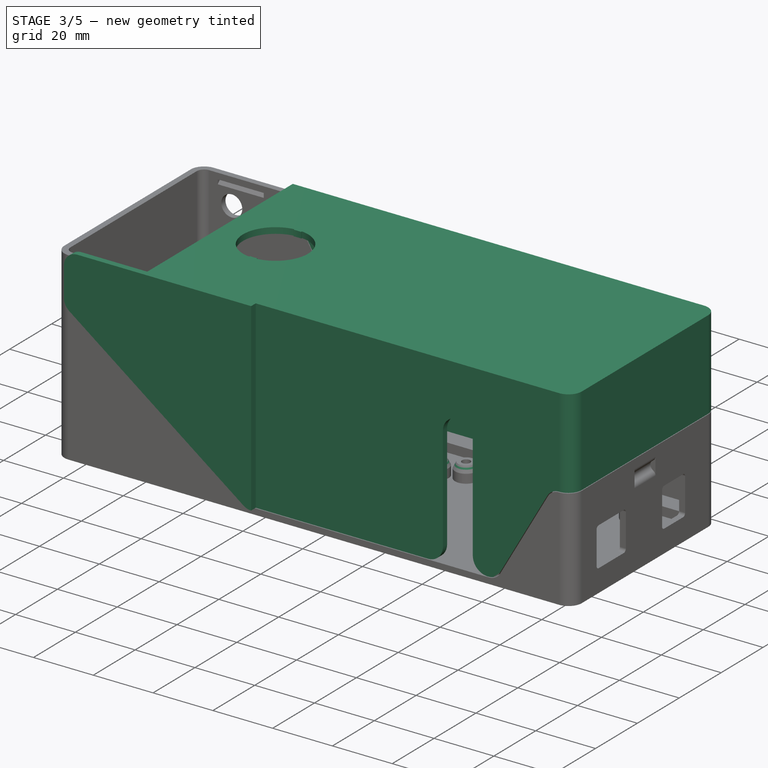
[diagram: stage 3 of 5 — iso view after this stage's code; geometry added in this stage tinted green]
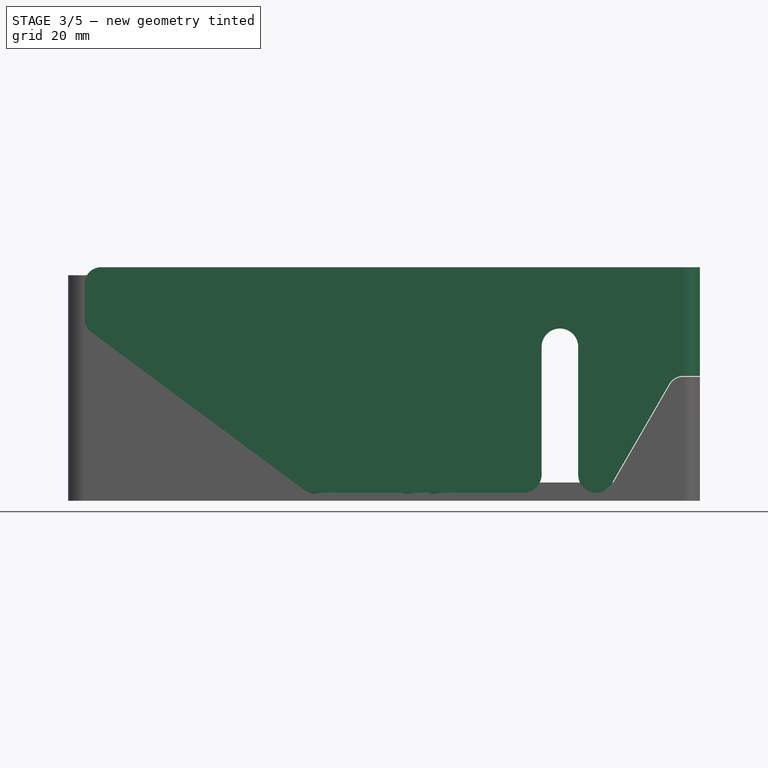
[diagram: stage 3 of 5 — front view after this stage's code; geometry added in this stage tinted green]
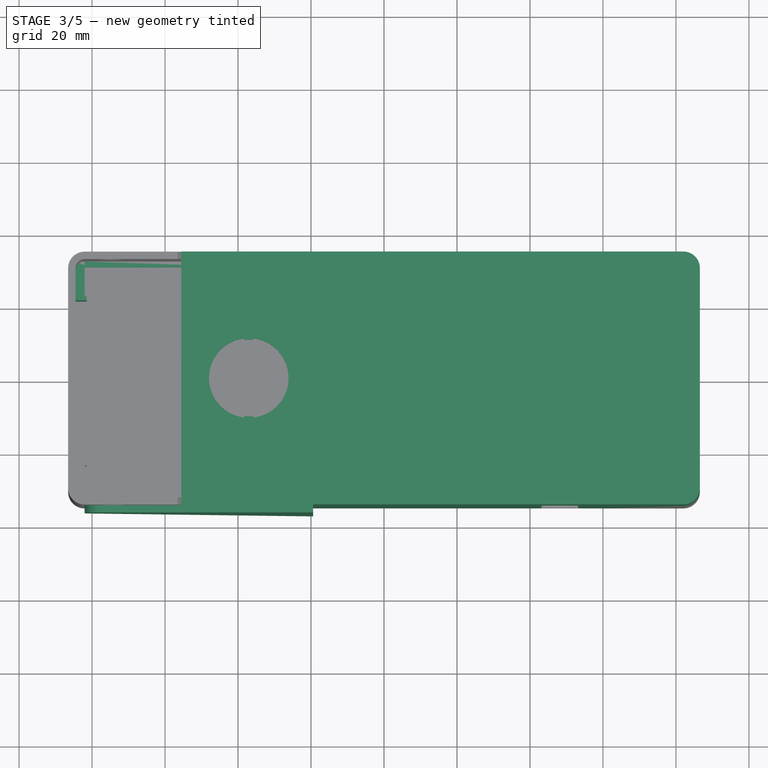
[diagram: stage 3 of 5 — top view after this stage's code; geometry added in this stage tinted green]
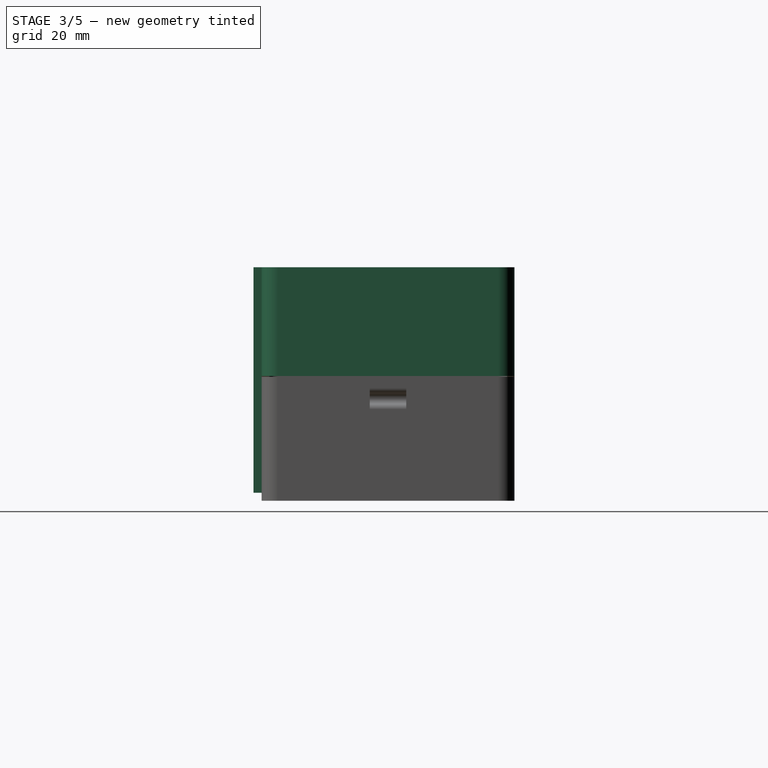
[diagram: stage 3 of 5 — right view after this stage's code; geometry added in this stage tinted green]
FEATURE [Part::FeaturePython] Slice_child3  label="Slice.3"  # WARN: FeaturePython — macro-defined, semantics opaque (R4)
  Base = -> Slice
  FilterType = 1
  Invert = false
  OverrideMaxVal = 0
  WindowFrom = 80
  WindowTo = 100
  items = 3
FEATURE [PartDesign::FeatureBase] BaseFeature002
  BaseFeature = -> Slice_child3
FEATURE [PartDesign::Body] Body003  label="small_lid"
  BaseFeature = -> Slice_child2
  Group = -> [BaseFeature001,Sketch063,Pocket002,Sketch075,Pad015,Mirrored004]
  Origin = -> Origin003
  Tip = -> Mirrored004
FEATURE [Sketcher::SketchObject] Sketch076
  AttachmentOffset = pos=(-37.05,0,64) rot=(0,0,1;0rad)
  FullyConstrained = true
  MapMode = 5
  Placement = pos=(-37.05,0,64) rot=(0,0,1;0rad)
  Support = -> [XY_Plane004]
  expr: .AttachmentOffset.Base.x = Spreadsheet.estop_xcenter
  expr: .AttachmentOffset.Base.z = Spreadsheet.base_height_outside
  sketch-geometry (8):
    g0: ArcOfCircle CenterX=0 CenterY=0 CenterZ=0 NormalX=0 NormalY=0 NormalZ=1 AngleXU=0 Radius=10.9 StartAngle=1.68573 EndAngle=4.59746
    g1: ArcOfCircle CenterX=0 CenterY=0 CenterZ=0 NormalX=0 NormalY=0 NormalZ=1 AngleXU=0 Radius=10.9 StartAngle=4.82732 EndAngle=7.73905
    g2: LineSegment StartX=-1.25 StartY=10.8281 StartZ=0 EndX=-1.25 EndY=10.4253 EndZ=0
    g3: LineSegment StartX=1.25 StartY=10.4253 StartZ=0 EndX=1.25 EndY=10.8281 EndZ=0
    g4: LineSegment StartX=-1.25 StartY=-10.8281 StartZ=0 EndX=-1.25 EndY=-10.4253 EndZ=0
    g5: LineSegment StartX=1.25 StartY=-10.4253 StartZ=0 EndX=1.25 EndY=-10.8281 EndZ=0
    g6: ArcOfCircle CenterX=0 CenterY=0 CenterZ=0 NormalX=0 NormalY=0 NormalZ=1 AngleXU=0 Radius=10.5 StartAngle=1.45147 EndAngle=1.69013
    g7: ArcOfCircle CenterX=0 CenterY=0 CenterZ=0 NormalX=0 NormalY=0 NormalZ=1 AngleXU=0 Radius=10.5 StartAngle=4.59306 EndAngle=4.83172
  constraints (24):
    c: Coincident(g0,g-1)
    c: Coincident(g1,g0)
    c: Coincident(g0,g2)
    c: Coincident(g3,g1)
    c: Coincident(g0,g4)
    c: Coincident(g5,g1)
    c: Equal(g0,g1)
    c: Vertical(g4)
    c: Vertical(g5)
    c: Vertical(g3)
    c: Vertical(g2)
    c: Equal(g2,g3)
    c: Equal(g3,g5)
    c: Equal(g5,g4)
    c: DistanceX(g2,g3) = 2.5
    c: Coincident(g6,g0)
    c: Coincident(g6,g2)
    c: Coincident(g6,g3)
    c: Coincident(g7,g0)
    c: Coincident(g7,g4)
    c: Coincident(g7,g5)
    c: Equal(g7,g6)
    c: Diameter(g6) = 21
    c: Diameter(g1) = 21.8
FEATURE [PartDesign::Pocket] Pocket008
  BaseFeature = -> BaseFeature002
  Direction = (0,0,-1)
  Length = 2
  Length2 = 5
  Profile = -> Sketch076
  ReferenceAxis = -> Sketch076 [N_Axis]
  Type = 0
  expr: Length = Spreadsheet.wall_thickness
FEATURE [Sketcher::SketchObject] Sketch078
  AttachmentOffset = pos=(0,0,34.65) rot=(0,0,1;0rad)
  FullyConstrained = true
  MapMode = 5
  Placement = pos=(0,-34.65,-7.7e-15) rot=(1,0,0;1.5708rad)
  Support = -> [XZ_Plane004]
  expr: .AttachmentOffset.Base.z = Spreadsheet.base_width_outside / 2
  expr: Constraints[19] = Spreadsheet.base_length_outside / 2
  expr: Constraints[20] = Spreadsheet.base_length_outside / 2
  expr: Constraints[22] = Spreadsheet.base_height_outside - Spreadsheet.wall_thickness
  expr: Constraints[23] = Spreadsheet.offset
  expr: Constraints[24] = Spreadsheet.wall_thickness
  expr: Constraints[26] = Spreadsheet.smalllid_width
  expr: Constraints[31] = Spreadsheet.offset
  expr: Constraints[34] = Spreadsheet.ard_xcenter
  expr: Constraints[43] = Spreadsheet.offset
  expr: Constraints[49] = Spreadsheet.wall_thickness
  expr: Constraints[54] = Spreadsheet.base_corner_diam_outside
  expr: Constraints[60] = Spreadsheet.base_corner_diam_outside
  expr: Constraints[71] = Spreadsheet.base_corner_diam_outside
  expr: Constraints[73] = Spreadsheet.base_corner_diam_outside / 2
  expr: Constraints[77] = Spreadsheet.base_axis_diameter
  expr: Constraints[78] = Spreadsheet.base_axis_zcenter
  expr: Constraints[79] = Spreadsheet.base_axis_xcenter
  expr: Constraints[89] = Spreadsheet.base_corner_diam_outside / 2
  expr: Constraints[90] = Spreadsheet.base_corner_diam_outside
  sketch-geometry (40):
    g0: LineSegment StartX=-86.55 StartY=62 StartZ=0 EndX=-86.55 EndY=61.8 EndZ=0
    g1: LineSegment StartX=-86.55 StartY=61.8 StartZ=0 EndX=-56.55 EndY=61.8 EndZ=0
    g2: LineSegment StartX=-56.55 StartY=61.8 StartZ=0 EndX=-23.3235 EndY=4.25 EndZ=0
    g3: LineSegment StartX=-19.4264 StartY=2 StartZ=0 EndX=58.4941 EndY=2 EndZ=0
    g4: LineSegment StartX=62.3912 StartY=4.25 StartZ=0 EndX=78.3261 EndY=31.85 EndZ=0
    g5: LineSegment StartX=82.05 StartY=34 StartZ=0 EndX=86.55 EndY=34 EndZ=0
    g6: LineSegment StartX=86.55 StartY=34 StartZ=0 EndX=86.55 EndY=34.2 EndZ=0
    g7: LineSegment StartX=86.55 StartY=34.2 StartZ=0 EndX=82.05 EndY=34.2 EndZ=0
    g8: LineSegment StartX=78.1529 StartY=31.95 StartZ=0 EndX=62.218 EndY=4.35 EndZ=0
    g9: LineSegment StartX=58.4941 StartY=2.2 StartZ=0 EndX=58.2 EndY=2.2 EndZ=0
    g10: LineSegment StartX=53.2 StartY=7.2 StartZ=0 EndX=53.2 EndY=42.2 EndZ=0
    g11: LineSegment StartX=43.2 StartY=42.2 StartZ=0 EndX=43.2 EndY=7.2 EndZ=0
    g12: LineSegment StartX=38.2 StartY=2.2 StartZ=0 EndX=-19.4264 EndY=2.2 EndZ=0
    g13: LineSegment StartX=-23.1503 StartY=4.35 StartZ=0 EndX=-55.55 EndY=60.4679 EndZ=0
    g14: LineSegment StartX=-55.55 StartY=60.4679 StartZ=0 EndX=-55.55 EndY=64 EndZ=0
    g15: LineSegment StartX=-55.55 StartY=64 StartZ=0 EndX=-56.55 EndY=64 EndZ=0
    g16: LineSegment StartX=-56.55 StartY=64 StartZ=0 EndX=-56.55 EndY=62 EndZ=0
    g17: LineSegment StartX=-56.55 StartY=62 StartZ=0 EndX=-86.55 EndY=62 EndZ=0
    g18: LineSegment StartX=-55.55 StartY=60.4679 StartZ=0 EndX=-55.7232 EndY=60.3679 EndZ=0
    g19: GeomPoint X=48.2 Y=2 Z=0
    g20: ArcOfCircle CenterX=48.2 CenterY=42.2 CenterZ=0 NormalX=0 NormalY=0 NormalZ=1 AngleXU=0 Radius=5 StartAngle=0 EndAngle=3.14159
    g21: ArcOfCircle CenterX=-19.4264 CenterY=6.5 CenterZ=0 NormalX=0 NormalY=0 NormalZ=1 AngleXU=0 Radius=4.3 StartAngle=3.66519 EndAngle=4.71239
    g22: ArcOfCircle CenterX=-19.4264 CenterY=6.5 CenterZ=0 NormalX=0 NormalY=0 NormalZ=1 AngleXU=0 Radius=4.5 StartAngle=3.66519 EndAngle=4.71239
    g23: LineSegment StartX=-19.4264 StartY=2 StartZ=0 EndX=-19.4264 EndY=2.2 EndZ=0
    g24: ArcOfCircle CenterX=58.4941 CenterY=6.5 CenterZ=0 NormalX=0 NormalY=0 NormalZ=1 AngleXU=0 Radius=4.3 StartAngle=4.71239 EndAngle=5.75959
    g25: ArcOfCircle CenterX=58.4941 CenterY=6.5 CenterZ=0 NormalX=0 NormalY=0 NormalZ=1 AngleXU=0 Radius=4.5 StartAngle=4.71239 EndAngle=5.75959
    g26: ArcOfCircle CenterX=38.2 CenterY=7.2 CenterZ=0 NormalX=0 NormalY=0 NormalZ=1 AngleXU=0 Radius=5 StartAngle=4.71239 EndAngle=6.28319
    g27: ArcOfCircle CenterX=58.2 CenterY=7.2 CenterZ=0 NormalX=0 NormalY=0 NormalZ=1 AngleXU=0 Radius=5 StartAngle=3.14159 EndAngle=4.71239
    g28: ArcOfCircle CenterX=82.05 CenterY=29.7 CenterZ=0 NormalX=0 NormalY=0 NormalZ=1 AngleXU=0 Radius=4.3 StartAngle=1.5708 EndAngle=2.61799
    g29: ArcOfCircle CenterX=82.05 CenterY=29.7 CenterZ=0 NormalX=0 NormalY=0 NormalZ=1 AngleXU=0 Radius=4.5 StartAngle=1.5708 EndAngle=2.61799
    g30: Circle CenterX=-74.55 CenterY=53 CenterZ=0 NormalX=0 NormalY=0 NormalZ=1 AngleXU=0 Radius=3.5
    g31: ArcOfCircle CenterX=-77.55 CenterY=59.5 CenterZ=0 NormalX=0 NormalY=0 NormalZ=1 AngleXU=0 Radius=4.5 StartAngle=1.5708 EndAngle=3.14159
    g32: LineSegment StartX=-77.55 StartY=64 StartZ=0 EndX=-19.4264 EndY=64 EndZ=0
    g33: LineSegment StartX=-21.9867 StartY=3.0453 StartZ=0 EndX=-80.2294 EndY=46.209 EndZ=0
    g34: ArcOfCircle CenterX=-77.55 CenterY=49.8244 CenterZ=0 NormalX=0 NormalY=0 NormalZ=1 AngleXU=0 Radius=4.5 StartAngle=3.14159 EndAngle=4.07461
    g35: LineSegment StartX=-82.05 StartY=49.8244 StartZ=0 EndX=-82.05 EndY=59.5 EndZ=0
    g36: GeomPoint X=-82.05 Y=64 Z=0
    g37: LineSegment StartX=-74.55 StartY=64 StartZ=0 EndX=-74.55 EndY=42 EndZ=0
    g38: ArcOfCircle CenterX=-19.4264 CenterY=6.5 CenterZ=0 NormalX=0 NormalY=0 NormalZ=1 AngleXU=0 Radius=4.3 StartAngle=4.07461 EndAngle=4.71239
    g39: LineSegment StartX=-19.4264 StartY=64 StartZ=0 EndX=-19.4264 EndY=2.2 EndZ=0
  constraints (103):
    c: Vertical(g0)
    c: Coincident(g0,g1)
    c: Horizontal(g1)
    c: Coincident(g1,g2)
    c: Horizontal(g3)
    c: Coincident(g5,g6)
    c: Coincident(g6,g7)
    c: Vertical(g10)
    c: Vertical(g11)
    c: Horizontal(g12)
    c: Coincident(g13,g14)
    c: Vertical(g14)
    c: Coincident(g14,g15)
    c: Horizontal(g15)
    c: Coincident(g15,g16)
    c: Vertical(g16)
    c: Coincident(g16,g17)
    c: Coincident(g17,g0)
    c: Horizontal(g17)
    c: DistanceX(g0,g-1) = 86.55
    c: DistanceX(g-1,g5) = 86.55
    c: Vertical(g6)
    c: DistanceY(g-1,g0) = 62
    c: DistanceY(g0,g0) = 0.2
    c: DistanceY(g16,g16) = 2
    c: Vertical(g1,g16)
    c: DistanceX(g17,g17) = 30
    c: DistanceX(g15,g15) = 1
    c: Coincident(g18,g13)
    c: PointOnObject(g18,g2)
    c: Perpendicular(g13,g18)
    c: Distance(g18) = 0.2
    c: Parallel(g2,g13)
    c: PointOnObject(g19,g3)
    c: DistanceX(g-1,g19) = 48.2
    c: Parallel(g8,g4)
    c: Horizontal(g9)
    c: Tangent(g20,g10) = -1.5708
    c: Tangent(g20,g11) = -1.5708
    c: Vertical(g19,g20)
    c: Diameter(g20) = 10
    c: Horizontal(g5)
    c: Horizontal(g7)
    c: DistanceY(g6,g6) = 0.2
    c: DistanceY(g-1,g5) = 34
    c: Tangent(g13,g21) = 1.5708
    c: Tangent(g12,g21) = 1.5708
    c: Tangent(g3,g22) = -1.5708
    c: Tangent(g2,g22) = -1.5708
    c: DistanceY(g-1,g3) = 2
    c: Coincident(g23,g3)
    c: PointOnObject(g23,g12)
    c: Vertical(g23)
    c: Coincident(g21,g22)
    c: Diameter(g22) = 9
    c: Tangent(g9,g24) = 1.5708
    c: Tangent(g8,g24) = 1.5708
    c: Tangent(g3,g25) = -1.5708
    c: Tangent(g4,g25) = -1.5708
    c: Coincident(g24,g25)
    c: Diameter(g25) = 9
    c: Tangent(g12,g26) = 1.5708
    c: Tangent(g11,g26) = 1.5708
    c: Tangent(g10,g27) = 1.5708
    c: Tangent(g9,g27) = 1.5708
    c: Equal(g27,g26)
    c: Equal(g26,g20)
    c: Tangent(g5,g28) = 1.5708
    c: Tangent(g4,g28) = 1.5708
    c: Tangent(g8,g29) = -1.5708
    c: Tangent(g7,g29) = -1.5708
    c: Diameter(g29) = 9
    c: Coincident(g28,g29)
    c: DistanceX(g5,g5) = 4.5
    c: Angle(g4,g3) = 2.0944
    c: Angle(g3,g2) = 2.0944
    c: DistanceY(g12,g11) = 40
    c: Diameter(g30) = 7
    c: DistanceY(g-1,g30) = 53
    c: DistanceX(g30,g-1) = 74.55
    c: Tangent(g31,g32) = 1.5708
    c: Tangent(g33,g34) = 1.5708
    c: Tangent(g34,g35) = 1.5708
    c: Tangent(g35,g31) = 1.5708
    c: Horizontal(g32)
    c: Vertical(g35)
    c: PointOnObject(g36,g32)
    c: PointOnObject(g36,g35)
    c: Horizontal(g32,g14)
    c: DistanceX(g0,g31) = 4.5
    c: Diameter(g31) = 9
    c: PointOnObject(g37,g32)
    c: PointOnObject(g37,g33)
    c: Vertical(g37)
    c: Symmetric(g37,g37,g30)
    c: Coincident(g38,g23)
    c: Tangent(g38,g33) = 1.5708
    c: Equal(g38,g21)
    c: Equal(g34,g31)
    c: Coincident(g39,g32)
    c: Vertical(g39)
    c: Coincident(g38,g39)
    c: Perpendicular(g38,g39)
FEATURE [PartDesign::Pad] Pad016
  BaseFeature = -> Pocket008
  Direction = (0,-1,-2e-16)
  Length = 2.2
  Length2 = 10
  Profile = -> Sketch078
  ReferenceAxis = -> Sketch078 [N_Axis]
  Type = 0
  expr: Length = Spreadsheet.wall_thickness + Spreadsheet.offset
FEATURE [Sketcher::SketchObject] Sketch079
  AttachmentOffset = pos=(0,0,34.65) rot=(0,0,1;0rad)
  FullyConstrained = true
  MapMode = 5
  Placement = pos=(0,-34.65,-7.7e-15) rot=(1,0,0;1.5708rad)
  Support = -> [XZ_Plane004]
  expr: .AttachmentOffset.Base.z = Spreadsheet.base_width_outside / 2
  expr: Constraints[19] = Spreadsheet.base_length_outside / 2
  expr: Constraints[20] = Spreadsheet.base_length_outside / 2
  expr: Constraints[22] = Spreadsheet.base_height_outside - Spreadsheet.wall_thickness
  expr: Constraints[23] = Spreadsheet.offset
  expr: Constraints[24] = Spreadsheet.wall_thickness
  expr: Constraints[26] = Spreadsheet.smalllid_width
  expr: Constraints[31] = Spreadsheet.offset
  expr: Constraints[34] = Spreadsheet.ard_xcenter
  expr: Constraints[43] = Spreadsheet.offset
  expr: Constraints[49] = Spreadsheet.wall_thickness
  expr: Constraints[54] = Spreadsheet.base_corner_diam_outside
  expr: Constraints[60] = Spreadsheet.base_corner_diam_outside
  expr: Constraints[71] = Spreadsheet.base_corner_diam_outside
  expr: Constraints[73] = Spreadsheet.base_corner_diam_outside / 2
  expr: Constraints[77] = Spreadsheet.base_axis_diameter
  expr: Constraints[78] = Spreadsheet.base_axis_zcenter
  expr: Constraints[79] = Spreadsheet.base_axis_xcenter
  expr: Constraints[89] = Spreadsheet.base_corner_diam_outside / 2
  expr: Constraints[90] = Spreadsheet.base_corner_diam_outside
  sketch-geometry (42):
    g0: LineSegment StartX=-86.55 StartY=62 StartZ=0 EndX=-86.55 EndY=61.8 EndZ=0
    g1: LineSegment StartX=-86.55 StartY=61.8 StartZ=0 EndX=-56.55 EndY=61.8 EndZ=0
    g2: LineSegment StartX=-56.55 StartY=61.8 StartZ=0 EndX=-23.3235 EndY=4.25 EndZ=0
    g3: LineSegment StartX=-19.4264 StartY=2 StartZ=0 EndX=58.4941 EndY=2 EndZ=0
    g4: LineSegment StartX=62.3912 StartY=4.25 StartZ=0 EndX=78.3261 EndY=31.85 EndZ=0
    g5: LineSegment StartX=82.05 StartY=34 StartZ=0 EndX=86.55 EndY=34 EndZ=0
    g6: LineSegment StartX=86.55 StartY=34 StartZ=0 EndX=86.55 EndY=34.2 EndZ=0
    g7: LineSegment StartX=86.55 StartY=34.2 StartZ=0 EndX=82.05 EndY=34.2 EndZ=0
    g8: LineSegment StartX=78.1529 StartY=31.95 StartZ=0 EndX=62.218 EndY=4.35 EndZ=0
    g9: LineSegment StartX=58.4941 StartY=2.2 StartZ=0 EndX=58.2 EndY=2.2 EndZ=0
    g10: LineSegment StartX=53.2 StartY=7.2 StartZ=0 EndX=53.2 EndY=42.2 EndZ=0
    g11: LineSegment StartX=43.2 StartY=42.2 StartZ=0 EndX=43.2 EndY=7.2 EndZ=0
    g12: LineSegment StartX=38.2 StartY=2.2 StartZ=0 EndX=-19.4264 EndY=2.2 EndZ=0
    g13: LineSegment StartX=-23.1503 StartY=4.35 StartZ=0 EndX=-55.55 EndY=60.4679 EndZ=0
    g14: LineSegment StartX=-55.55 StartY=60.4679 StartZ=0 EndX=-55.55 EndY=64 EndZ=0
    g15: LineSegment StartX=-55.55 StartY=64 StartZ=0 EndX=-56.55 EndY=64 EndZ=0
    g16: LineSegment StartX=-56.55 StartY=64 StartZ=0 EndX=-56.55 EndY=62 EndZ=0
    g17: LineSegment StartX=-56.55 StartY=62 StartZ=0 EndX=-86.55 EndY=62 EndZ=0
    g18: LineSegment StartX=-55.55 StartY=60.4679 StartZ=0 EndX=-55.7232 EndY=60.3679 EndZ=0
    g19: GeomPoint X=48.2 Y=2 Z=0
    g20: ArcOfCircle CenterX=48.2 CenterY=42.2 CenterZ=0 NormalX=0 NormalY=0 NormalZ=1 AngleXU=0 Radius=5 StartAngle=0 EndAngle=3.14159
    g21: ArcOfCircle CenterX=-19.4264 CenterY=6.5 CenterZ=0 NormalX=0 NormalY=0 NormalZ=1 AngleXU=0 Radius=4.3 StartAngle=3.66519 EndAngle=4.71239
    g22: ArcOfCircle CenterX=-19.4264 CenterY=6.5 CenterZ=0 NormalX=0 NormalY=0 NormalZ=1 AngleXU=0 Radius=4.5 StartAngle=3.66519 EndAngle=4.71239
    g23: LineSegment StartX=-19.4264 StartY=2 StartZ=0 EndX=-19.4264 EndY=2.2 EndZ=0
    g24: ArcOfCircle CenterX=58.4941 CenterY=6.5 CenterZ=0 NormalX=0 NormalY=0 NormalZ=1 AngleXU=0 Radius=4.3 StartAngle=4.71239 EndAngle=5.75959
    g25: ArcOfCircle CenterX=58.4941 CenterY=6.5 CenterZ=0 NormalX=0 NormalY=0 NormalZ=1 AngleXU=0 Radius=4.5 StartAngle=4.71239 EndAngle=5.75959
    g26: ArcOfCircle CenterX=38.2 CenterY=7.2 CenterZ=0 NormalX=0 NormalY=0 NormalZ=1 AngleXU=0 Radius=5 StartAngle=4.71239 EndAngle=6.28319
    g27: ArcOfCircle CenterX=58.2 CenterY=7.2 CenterZ=0 NormalX=0 NormalY=0 NormalZ=1 AngleXU=0 Radius=5 StartAngle=3.14159 EndAngle=4.71239
    g28: ArcOfCircle CenterX=82.05 CenterY=29.7 CenterZ=0 NormalX=0 NormalY=0 NormalZ=1 AngleXU=0 Radius=4.3 StartAngle=1.5708 EndAngle=2.61799
    g29: ArcOfCircle CenterX=82.05 CenterY=29.7 CenterZ=0 NormalX=0 NormalY=0 NormalZ=1 AngleXU=0 Radius=4.5 StartAngle=1.5708 EndAngle=2.61799
    g30: Circle CenterX=-74.55 CenterY=53 CenterZ=0 NormalX=0 NormalY=0 NormalZ=1 AngleXU=0 Radius=3.5
    g31: ArcOfCircle CenterX=-77.55 CenterY=59.5 CenterZ=0 NormalX=0 NormalY=0 NormalZ=1 AngleXU=0 Radius=4.5 StartAngle=1.5708 EndAngle=3.14159
    g32: LineSegment StartX=-77.55 StartY=64 StartZ=0 EndX=-19.4264 EndY=64 EndZ=0
    g33: LineSegment StartX=-21.9867 StartY=3.0453 StartZ=0 EndX=-80.2294 EndY=46.209 EndZ=0
    g34: ArcOfCircle CenterX=-77.55 CenterY=49.8244 CenterZ=0 NormalX=0 NormalY=0 NormalZ=1 AngleXU=0 Radius=4.5 StartAngle=3.14159 EndAngle=4.07461
    g35: LineSegment StartX=-82.05 StartY=49.8244 StartZ=0 EndX=-82.05 EndY=59.5 EndZ=0
    g36: GeomPoint X=-82.05 Y=64 Z=0
    g37: LineSegment StartX=-74.55 StartY=64 StartZ=0 EndX=-74.55 EndY=42 EndZ=0
    g38: ArcOfCircle CenterX=-19.4264 CenterY=6.5 CenterZ=0 NormalX=0 NormalY=0 NormalZ=1 AngleXU=0 Radius=4.3 StartAngle=4.07461 EndAngle=4.71239
    g39: LineSegment StartX=-19.4264 StartY=64 StartZ=0 EndX=-19.4264 EndY=2.2 EndZ=0
    g40: ArcOfCircle CenterX=-19.4264 CenterY=6.5 CenterZ=0 NormalX=0 NormalY=0 NormalZ=1 AngleXU=0 Radius=4.3 StartAngle=3.66519 EndAngle=4.07461
    g41: LineSegment StartX=-77.55 StartY=64 StartZ=0 EndX=-55.55 EndY=64 EndZ=0
  constraints (108):
    c: Vertical(g0)
    c: Coincident(g0,g1)
    c: Horizontal(g1)
    c: Coincident(g1,g2)
    c: Horizontal(g3)
    c: Coincident(g5,g6)
    c: Coincident(g6,g7)
    c: Vertical(g10)
    c: Vertical(g11)
    c: Horizontal(g12)
    c: Coincident(g13,g14)
    c: Vertical(g14)
    c: Coincident(g14,g15)
    c: Horizontal(g15)
    c: Coincident(g15,g16)
    c: Vertical(g16)
    c: Coincident(g16,g17)
    c: Coincident(g17,g0)
    c: Horizontal(g17)
    c: DistanceX(g0,g-1) = 86.55
    c: DistanceX(g-1,g5) = 86.55
    c: Vertical(g6)
    c: DistanceY(g-1,g0) = 62
    c: DistanceY(g0,g0) = 0.2
    c: DistanceY(g16,g16) = 2
    c: Vertical(g1,g16)
    c: DistanceX(g17,g17) = 30
    c: DistanceX(g15,g15) = 1
    c: Coincident(g18,g13)
    c: PointOnObject(g18,g2)
    c: Perpendicular(g13,g18)
    c: Distance(g18) = 0.2
    c: Parallel(g2,g13)
    c: PointOnObject(g19,g3)
    c: DistanceX(g-1,g19) = 48.2
    c: Parallel(g8,g4)
    c: Horizontal(g9)
    c: Tangent(g20,g10) = -1.5708
    c: Tangent(g20,g11) = -1.5708
    c: Vertical(g19,g20)
    c: Diameter(g20) = 10
    c: Horizontal(g5)
    c: Horizontal(g7)
    c: DistanceY(g6,g6) = 0.2
    c: DistanceY(g-1,g5) = 34
    c: Tangent(g13,g21) = 1.5708
    c: Tangent(g12,g21) = 1.5708
    c: Tangent(g3,g22) = -1.5708
    c: Tangent(g2,g22) = -1.5708
    c: DistanceY(g-1,g3) = 2
    c: Coincident(g23,g3)
    c: PointOnObject(g23,g12)
    c: Vertical(g23)
    c: Coincident(g21,g22)
    c: Diameter(g22) = 9
    c: Tangent(g9,g24) = 1.5708
    c: Tangent(g8,g24) = 1.5708
    c: Tangent(g3,g25) = -1.5708
    c: Tangent(g4,g25) = -1.5708
    c: Coincident(g24,g25)
    c: Diameter(g25) = 9
    c: Tangent(g12,g26) = 1.5708
    c: Tangent(g11,g26) = 1.5708
    c: Tangent(g10,g27) = 1.5708
    c: Tangent(g9,g27) = 1.5708
    c: Equal(g27,g26)
    c: Equal(g26,g20)
    c: Tangent(g5,g28) = 1.5708
    c: Tangent(g4,g28) = 1.5708
    c: Tangent(g8,g29) = -1.5708
    c: Tangent(g7,g29) = -1.5708
    c: Diameter(g29) = 9
    c: Coincident(g28,g29)
    c: DistanceX(g5,g5) = 4.5
    c: Angle(g4,g3) = 2.0944
    c: Angle(g3,g2) = 2.0944
    c: DistanceY(g12,g11) = 40
    c: Diameter(g30) = 7
    c: DistanceY(g-1,g30) = 53
    c: DistanceX(g30,g-1) = 74.55
    c: Tangent(g31,g32) = 1.5708
    c: Tangent(g33,g34) = 1.5708
    c: Tangent(g34,g35) = 1.5708
    c: Tangent(g35,g31) = 1.5708
    c: Horizontal(g32)
    c: Vertical(g35)
    c: PointOnObject(g36,g32)
    c: PointOnObject(g36,g35)
    c: Horizontal(g32,g14)
    c: DistanceX(g0,g31) = 4.5
    c: Diameter(g31) = 9
    c: PointOnObject(g37,g32)
    c: PointOnObject(g37,g33)
    c: Vertical(g37)
    c: Symmetric(g37,g37,g30)
    c: Coincident(g38,g23)
    c: Tangent(g38,g33) = 1.5708
    c: Equal(g38,g21)
    c: Equal(g34,g31)
    c: Coincident(g39,g32)
    c: Vertical(g39)
    c: Coincident(g38,g39)
    c: Perpendicular(g38,g39)
    c: Coincident(g40,g33)
    c: Coincident(g40,g13)
    c: Equal(g21,g40)
    c: Coincident(g41,g31)
    c: Coincident(g41,g14)
FEATURE [PartDesign::Pocket] Pocket009
  BaseFeature = -> Pad016
  Direction = (0,1,2e-16)
  Length = 0.2
  Length2 = 5
  Profile = -> Sketch079
  ReferenceAxis = -> Sketch079 [N_Axis]
  Reversed = true
  Type = 0
  expr: Length = Spreadsheet.offset
FEATURE [Sketcher::SketchObject] Sketch080
  AttachmentOffset = pos=(86.55,28,0) rot=(0,0,1;0rad)
  FullyConstrained = true
  MapMode = 5
  Placement = pos=(86.55,-6.2e-15,28) rot=(1,0,0;1.5708rad)
  Support = -> [XZ_Plane004]
  expr: .AttachmentOffset.Base.x = Spreadsheet.base_length_outside / 2
  expr: .AttachmentOffset.Base.y = Spreadsheet.base_big_lid_notch_height
  expr: Constraints[21] = Spreadsheet.offset
  expr: Constraints[32] = Spreadsheet.wall_thickness
  expr: Constraints[36] = 34mm - Spreadsheet.base_big_lid_notch_height + Spreadsheet.offset
  expr: Constraints[8] = Spreadsheet.base_big_lid_notch_diameter - Spreadsheet.offset * 2
  sketch-geometry (15):
    g0: ArcOfCircle CenterX=0 CenterY=0 CenterZ=0 NormalX=0 NormalY=0 NormalZ=1 AngleXU=0 Radius=1.5 StartAngle=2.0944 EndAngle=4.18879
    g1: ArcOfCircle CenterX=-1.5 CenterY=2.59808 CenterZ=0 NormalX=0 NormalY=0 NormalZ=1 AngleXU=0 Radius=1.5 StartAngle=5.23599 EndAngle=6.28319
    g2: ArcOfCircle CenterX=-1.5 CenterY=-2.59808 CenterZ=0 NormalX=0 NormalY=0 NormalZ=1 AngleXU=0 Radius=1.5 StartAngle=2e-16 EndAngle=1.0472
    g3: LineSegment StartX=0 StartY=2.59808 StartZ=0 EndX=0 EndY=-2.59808 EndZ=0
    g4: LineSegment StartX=0 StartY=6.2 StartZ=0 EndX=0.2 EndY=6.2 EndZ=0
    g5: LineSegment StartX=0.2 StartY=6.2 StartZ=0 EndX=0.2 EndY=2.7037 EndZ=0
    g6: LineSegment StartX=0.2 StartY=-2.7037 StartZ=0 EndX=0.2 EndY=-7.7037 EndZ=0
    g7: LineSegment StartX=0.2 StartY=-7.7037 StartZ=0 EndX=2.2 EndY=-7.7037 EndZ=0
    g8: LineSegment StartX=2.2 StartY=-7.7037 StartZ=0 EndX=2.2 EndY=6.2 EndZ=0
    g9: LineSegment StartX=0 StartY=21.2 StartZ=0 EndX=0 EndY=6.2 EndZ=0
    g10: ArcOfCircle CenterX=0 CenterY=0 CenterZ=0 NormalX=0 NormalY=0 NormalZ=1 AngleXU=0 Radius=1.5 StartAngle=2.01898 EndAngle=4.2642
    g11: ArcOfCircle CenterX=-1.3 CenterY=2.7037 CenterZ=0 NormalX=0 NormalY=0 NormalZ=1 AngleXU=0 Radius=1.5 StartAngle=5.16058 EndAngle=6.28319
    g12: ArcOfCircle CenterX=-1.3 CenterY=-2.7037 CenterZ=0 NormalX=0 NormalY=0 NormalZ=1 AngleXU=0 Radius=1.5 StartAngle=2.5438e-12 EndAngle=1.12261
    g13: LineSegment StartX=0 StartY=21.2 StartZ=0 EndX=2.01329 EndY=8.55933 EndZ=0
    g14: ArcOfCircle CenterX=-12.8 CenterY=6.2 CenterZ=0 NormalX=0 NormalY=0 NormalZ=1 AngleXU=0 Radius=15 StartAngle=0 EndAngle=0.157944
  constraints (40):
    c: PointOnObject(g1,g-2)
    c: Coincident(g0,g-1)
    c: Equal(g1,g0)
    c: Equal(g0,g2)
    c: Tangent(g2,g0) = 1.5708
    c: Tangent(g1,g0) = 1.5708
    c: Coincident(g3,g2)
    c: Symmetric(g1,g2,g0)
    c: Diameter(g0) = 3
    c: Tangent(g3,g1) = 1.5708
    c: PointOnObject(g4,g-2)
    c: Coincident(g4,g5)
    c: Vertical(g5)
    c: Vertical(g6)
    c: Coincident(g6,g7)
    c: Horizontal(g7)
    c: Coincident(g7,g8)
    c: Vertical(g8)
    c: Coincident(g9,g4)
    c: Vertical(g9)
    c: Horizontal(g4)
    c: DistanceX(g4,g4) = 0.2
    c: Coincident(g10,g0)
    c: Equal(g10,g0)
    c: Tangent(g12,g6) = 1.5708
    c: Tangent(g12,g10) = 1.5708
    c: Tangent(g11,g10) = 1.5708
    c: Tangent(g11,g5) = 1.5708
    c: Equal(g12,g10)
    c: Equal(g10,g11)
    c: Vertical(g6,g5)
    c: DistanceY(g6,g6) = 5
    c: DistanceX(g7,g7) = 2
    c: Coincident(g13,g9)
    c: Tangent(g14,g8) = -1.5708
    c: Tangent(g14,g13) = 1.5708
    c: DistanceY(g10,g4) = 6.2
    c: DistanceY(g9,g9) = 15
    c: Diameter(g14) = 30
    c: Horizontal(g4,g8)
FEATURE [Sketcher::SketchObject] Sketch081
  AttachmentOffset = pos=(48.2,-4.5,62) rot=(0,0,1;0rad)
  FullyConstrained = true
  MapMode = 5
  Placement = pos=(48.2,-4.5,62) rot=(0,0,1;0rad)
  Support = -> [XY_Plane004]
  expr: .AttachmentOffset.Base.x = Spreadsheet.ard_xcenter
  expr: .AttachmentOffset.Base.y = Spreadsheet.ard_ycenter
  expr: .AttachmentOffset.Base.z = Spreadsheet.base_height_outside - Spreadsheet.wall_thickness
  expr: Constraints[26] = Spreadsheet.base_spacers_diameter
  expr: Constraints[27] = Spreadsheet.holes_diam
  sketch-geometry (13):
    g0: LineSegment StartX=-16 StartY=16 StartZ=0 EndX=-16 EndY=-16 EndZ=0
    g1: LineSegment StartX=-16 StartY=-16 StartZ=0 EndX=16 EndY=-16 EndZ=0
    g2: LineSegment StartX=16 StartY=-16 StartZ=0 EndX=16 EndY=16 EndZ=0
    g3: LineSegment StartX=16 StartY=16 StartZ=0 EndX=-16 EndY=16 EndZ=0
    g4: GeomPoint X=0 Y=0 Z=0
    g5: Circle CenterX=-16 CenterY=16 CenterZ=0 NormalX=0 NormalY=0 NormalZ=1 AngleXU=0 Radius=1.4
    g6: Circle CenterX=-16 CenterY=16 CenterZ=0 NormalX=0 NormalY=0 NormalZ=1 AngleXU=0 Radius=3.7
    g7: Circle CenterX=16 CenterY=16 CenterZ=0 NormalX=0 NormalY=0 NormalZ=1 AngleXU=0 Radius=1.4
    g8: Circle CenterX=16 CenterY=16 CenterZ=0 NormalX=0 NormalY=0 NormalZ=1 AngleXU=0 Radius=3.7
    g9: Circle CenterX=16 CenterY=-16 CenterZ=0 NormalX=0 NormalY=0 NormalZ=1 AngleXU=0 Radius=1.4
    g10: Circle CenterX=16 CenterY=-16 CenterZ=0 NormalX=0 NormalY=0 NormalZ=1 AngleXU=0 Radius=3.7
    g11: Circle CenterX=-16 CenterY=-16 CenterZ=0 NormalX=0 NormalY=0 NormalZ=1 AngleXU=0 Radius=1.4
    g12: Circle CenterX=-16 CenterY=-16 CenterZ=0 NormalX=0 NormalY=0 NormalZ=1 AngleXU=0 Radius=3.7
  constraints (28):
    c: Coincident(g0,g1)
    c: Coincident(g1,g2)
    c: Coincident(g2,g3)
    c: Coincident(g3,g0)
    c: Horizontal(g1)
    c: Horizontal(g3)
    c: Vertical(g0)
    c: Vertical(g2)
    c: Symmetric(g1,g0,g4)
    c: Coincident(g4,g-1)
    c: Equal(g0,g3)
    c: DistanceX(g3,g3) = 32
    c: Coincident(g5,g0)
    c: Coincident(g6,g5)
    c: Coincident(g7,g2)
    c: Coincident(g8,g7)
    c: Coincident(g9,g1)
    c: Coincident(g10,g9)
    c: Coincident(g11,g0)
    c: Coincident(g12,g11)
    c: Equal(g12,g6)
    c: Equal(g6,g8)
    c: Equal(g8,g10)
    c: Equal(g9,g11)
    c: Equal(g11,g5)
    c: Equal(g5,g7)
    c: Diameter(g6) = 7.4
    c: Diameter(g5) = 2.8
FEATURE [Sketcher::SketchObject] Sketch082
  AttachmentOffset = pos=(0,0,34.85) rot=(0,0,1;0rad)
  FullyConstrained = true
  MapMode = 5
  Placement = pos=(0,-34.85,-7.7e-15) rot=(1,0,0;1.5708rad)
  Support = -> [XZ_Plane004]
  expr: .AttachmentOffset.Base.z = Spreadsheet.base_width_outside / 2 + Spreadsheet.offset
  expr: Constraints[19] = Spreadsheet.base_length_outside / 2
  expr: Constraints[20] = Spreadsheet.base_length_outside / 2
  expr: Constraints[22] = Spreadsheet.base_height_outside - Spreadsheet.wall_thickness
  expr: Constraints[23] = Spreadsheet.offset
  expr: Constraints[24] = Spreadsheet.wall_thickness
  expr: Constraints[26] = Spreadsheet.smalllid_width
  expr: Constraints[31] = Spreadsheet.offset
  expr: Constraints[34] = Spreadsheet.ard_xcenter
  expr: Constraints[43] = Spreadsheet.offset
  expr: Constraints[49] = Spreadsheet.wall_thickness
  expr: Constraints[54] = Spreadsheet.base_corner_diam_outside
  expr: Constraints[60] = Spreadsheet.base_corner_diam_outside
  expr: Constraints[71] = Spreadsheet.base_corner_diam_outside
  expr: Constraints[73] = Spreadsheet.base_corner_diam_outside / 2
  expr: Constraints[77] = Spreadsheet.base_axis_diameter - Spreadsheet.offset * 2
  expr: Constraints[78] = Spreadsheet.base_axis_zcenter
  expr: Constraints[79] = Spreadsheet.base_axis_xcenter
  sketch-geometry (31):
    g0: LineSegment StartX=-86.55 StartY=62 StartZ=0 EndX=-86.55 EndY=61.8 EndZ=0
    g1: LineSegment StartX=-86.55 StartY=61.8 StartZ=0 EndX=-56.55 EndY=61.8 EndZ=0
    g2: LineSegment StartX=-56.55 StartY=61.8 StartZ=0 EndX=-23.3235 EndY=4.25 EndZ=0
    g3: LineSegment StartX=-19.4264 StartY=2 StartZ=0 EndX=58.4941 EndY=2 EndZ=0
    g4: LineSegment StartX=62.3912 StartY=4.25 StartZ=0 EndX=78.3261 EndY=31.85 EndZ=0
    g5: LineSegment StartX=82.05 StartY=34 StartZ=0 EndX=86.55 EndY=34 EndZ=0
    g6: LineSegment StartX=86.55 StartY=34 StartZ=0 EndX=86.55 EndY=34.2 EndZ=0
    g7: LineSegment StartX=86.55 StartY=34.2 StartZ=0 EndX=82.05 EndY=34.2 EndZ=0
    g8: LineSegment StartX=78.1529 StartY=31.95 StartZ=0 EndX=62.218 EndY=4.35 EndZ=0
    g9: LineSegment StartX=58.4941 StartY=2.2 StartZ=0 EndX=58.2 EndY=2.2 EndZ=0
    g10: LineSegment StartX=53.2 StartY=7.2 StartZ=0 EndX=53.2 EndY=42.2 EndZ=0
    g11: LineSegment StartX=43.2 StartY=42.2 StartZ=0 EndX=43.2 EndY=7.2 EndZ=0
    g12: LineSegment StartX=38.2 StartY=2.2 StartZ=0 EndX=-19.4264 EndY=2.2 EndZ=0
    g13: LineSegment StartX=-23.1503 StartY=4.35 StartZ=0 EndX=-55.55 EndY=60.4679 EndZ=0
    g14: LineSegment StartX=-55.55 StartY=60.4679 StartZ=0 EndX=-55.55 EndY=64 EndZ=0
    g15: LineSegment StartX=-55.55 StartY=64 StartZ=0 EndX=-56.55 EndY=64 EndZ=0
    g16: LineSegment StartX=-56.55 StartY=64 StartZ=0 EndX=-56.55 EndY=62 EndZ=0
    g17: LineSegment StartX=-56.55 StartY=62 StartZ=0 EndX=-86.55 EndY=62 EndZ=0
    g18: LineSegment StartX=-55.55 StartY=60.4679 StartZ=0 EndX=-55.7232 EndY=60.3679 EndZ=0
    g19: GeomPoint X=48.2 Y=2 Z=0
    g20: ArcOfCircle CenterX=48.2 CenterY=42.2 CenterZ=0 NormalX=0 NormalY=0 NormalZ=1 AngleXU=0 Radius=5 StartAngle=0 EndAngle=3.14159
    g21: ArcOfCircle CenterX=-19.4264 CenterY=6.5 CenterZ=0 NormalX=0 NormalY=0 NormalZ=1 AngleXU=0 Radius=4.3 StartAngle=3.66519 EndAngle=4.71239
    g22: ArcOfCircle CenterX=-19.4264 CenterY=6.5 CenterZ=0 NormalX=0 NormalY=0 NormalZ=1 AngleXU=0 Radius=4.5 StartAngle=3.66519 EndAngle=4.71239
    g23: LineSegment StartX=-19.4264 StartY=2 StartZ=0 EndX=-19.4264 EndY=2.2 EndZ=0
    g24: ArcOfCircle CenterX=58.4941 CenterY=6.5 CenterZ=0 NormalX=0 NormalY=0 NormalZ=1 AngleXU=0 Radius=4.3 StartAngle=4.71239 EndAngle=5.75959
    g25: ArcOfCircle CenterX=58.4941 CenterY=6.5 CenterZ=0 NormalX=0 NormalY=0 NormalZ=1 AngleXU=0 Radius=4.5 StartAngle=4.71239 EndAngle=5.75959
    g26: ArcOfCircle CenterX=38.2 CenterY=7.2 CenterZ=0 NormalX=0 NormalY=0 NormalZ=1 AngleXU=0 Radius=5 StartAngle=4.71239 EndAngle=6.28319
    g27: ArcOfCircle CenterX=58.2 CenterY=7.2 CenterZ=0 NormalX=0 NormalY=0 NormalZ=1 AngleXU=0 Radius=5 StartAngle=3.14159 EndAngle=4.71239
    g28: ArcOfCircle CenterX=82.05 CenterY=29.7 CenterZ=0 NormalX=0 NormalY=0 NormalZ=1 AngleXU=0 Radius=4.3 StartAngle=1.5708 EndAngle=2.61799
    g29: ArcOfCircle CenterX=82.05 CenterY=29.7 CenterZ=0 NormalX=0 NormalY=0 NormalZ=1 AngleXU=0 Radius=4.5 StartAngle=1.5708 EndAngle=2.61799
    g30: Circle CenterX=-74.55 CenterY=53 CenterZ=0 NormalX=0 NormalY=0 NormalZ=1 AngleXU=0 Radius=3.3
  constraints (80):
    c: Vertical(g0)
    c: Coincident(g0,g1)
    c: Horizontal(g1)
    c: Coincident(g1,g2)
    c: Horizontal(g3)
    c: Coincident(g5,g6)
    c: Coincident(g6,g7)
    c: Vertical(g10)
    c: Vertical(g11)
    c: Horizontal(g12)
    c: Coincident(g13,g14)
    c: Vertical(g14)
    c: Coincident(g14,g15)
    c: Horizontal(g15)
    c: Coincident(g15,g16)
    c: Vertical(g16)
    c: Coincident(g16,g17)
    c: Coincident(g17,g0)
    c: Horizontal(g17)
    c: DistanceX(g0,g-1) = 86.55
    c: DistanceX(g-1,g5) = 86.55
    c: Vertical(g6)
    c: DistanceY(g-1,g0) = 62
    c: DistanceY(g0,g0) = 0.2
    c: DistanceY(g16,g16) = 2
    c: Vertical(g1,g16)
    c: DistanceX(g17,g17) = 30
    c: DistanceX(g15,g15) = 1
    c: Coincident(g18,g13)
    c: PointOnObject(g18,g2)
    c: Perpendicular(g13,g18)
    c: Distance(g18) = 0.2
    c: Parallel(g2,g13)
    c: PointOnObject(g19,g3)
    c: DistanceX(g-1,g19) = 48.2
    c: Parallel(g8,g4)
    c: Horizontal(g9)
    c: Tangent(g20,g10) = -1.5708
    c: Tangent(g20,g11) = -1.5708
    c: Vertical(g19,g20)
    c: Diameter(g20) = 10
    c: Horizontal(g5)
    c: Horizontal(g7)
    c: DistanceY(g6,g6) = 0.2
    c: DistanceY(g-1,g5) = 34
    c: Tangent(g13,g21) = 1.5708
    c: Tangent(g12,g21) = 1.5708
    c: Tangent(g3,g22) = -1.5708
    c: Tangent(g2,g22) = -1.5708
    c: DistanceY(g-1,g3) = 2
    c: Coincident(g23,g3)
    c: PointOnObject(g23,g12)
    c: Vertical(g23)
    c: Coincident(g21,g22)
    c: Diameter(g22) = 9
    c: Tangent(g9,g24) = 1.5708
    c: Tangent(g8,g24) = 1.5708
    c: Tangent(g3,g25) = -1.5708
    c: Tangent(g4,g25) = -1.5708
    c: Coincident(g24,g25)
    c: Diameter(g25) = 9
    c: Tangent(g12,g26) = 1.5708
    c: Tangent(g11,g26) = 1.5708
    c: Tangent(g10,g27) = 1.5708
    c: Tangent(g9,g27) = 1.5708
    c: Equal(g27,g26)
    c: Equal(g26,g20)
    c: Tangent(g5,g28) = 1.5708
    c: Tangent(g4,g28) = 1.5708
    c: Tangent(g8,g29) = -1.5708
    c: Tangent(g7,g29) = -1.5708
    c: Diameter(g29) = 9
    c: Coincident(g28,g29)
    c: DistanceX(g5,g5) = 4.5
    c: Angle(g4,g3) = 2.0944
    c: Angle(g3,g2) = 2.0944
    c: DistanceY(g12,g11) = 40
    c: Diameter(g30) = 6.6
    c: DistanceY(g-1,g30) = 53
    c: DistanceX(g30,g-1) = 74.55
FEATURE [PartDesign::Pad] Pad019
  BaseFeature = -> Pocket009
  Direction = (0,-1,-2e-16)
  Length = 2
  Length2 = 10
  Profile = -> Sketch082
  ReferenceAxis = -> Sketch082 [N_Axis]
  Reversed = true
  Type = 0
  expr: Length = Spreadsheet.wall_thickness
FEATURE [PartDesign::Mirrored] Mirrored002
  BaseFeature = -> Pad013
  MirrorPlane = -> XZ_Plane002
  Originals = -> [Pad013]
FEATURE [PartDesign::Pad] Pad014
  BaseFeature = -> Mirrored002
  Direction = (1,-2e-16,0)
  Length = 29.95
  Length2 = 10
  Profile = -> Sketch074
  ReferenceAxis = -> Sketch074 [N_Axis]
  Type = 0
FEATURE [PartDesign::Mirrored] Mirrored003
  BaseFeature = -> Pad014
  MirrorPlane = -> XZ_Plane002
  Originals = -> [Pad014]
FEATURE [PartDesign::Chamfer] Chamfer001
  Angle = 45
  Base = -> Mirrored003 [Edge355,Edge353,Edge382,Edge384,Edge386,Edge388,Edge390,Edge392]
  BaseFeature = -> Mirrored003
  ChamferType = 1
  FlipDirection = false
  Size = 2
  Size2 = 1
  SupportTransform = false
  UseAllEdges = false
FEATURE [PartDesign::Body] Body002  label="base"
  BaseFeature = -> Slice_child0
  Group = -> [BaseFeature,Sketch062,Pocket001,Sketch065,Pocket003,Sketch066,Pocket004,Mirrored,Sketch067,Pocket005,Sketch068,Pocket006,Sketch069,Pad010,Sketch070,Pad011,Sketch071,Pad012,Sketch072,Pocket007,LinearPattern,LinearPattern001,Sketch073,Pad013,Mirrored002,Sketch074,Pad014,Mirrored003,Chamfer001]
  Origin = -> Origin002
  Tip = -> Chamfer001
FEATURE [App::DocumentObjectGroup] Group  label="Case"
  Group = -> [Body002,Body003,Body004]
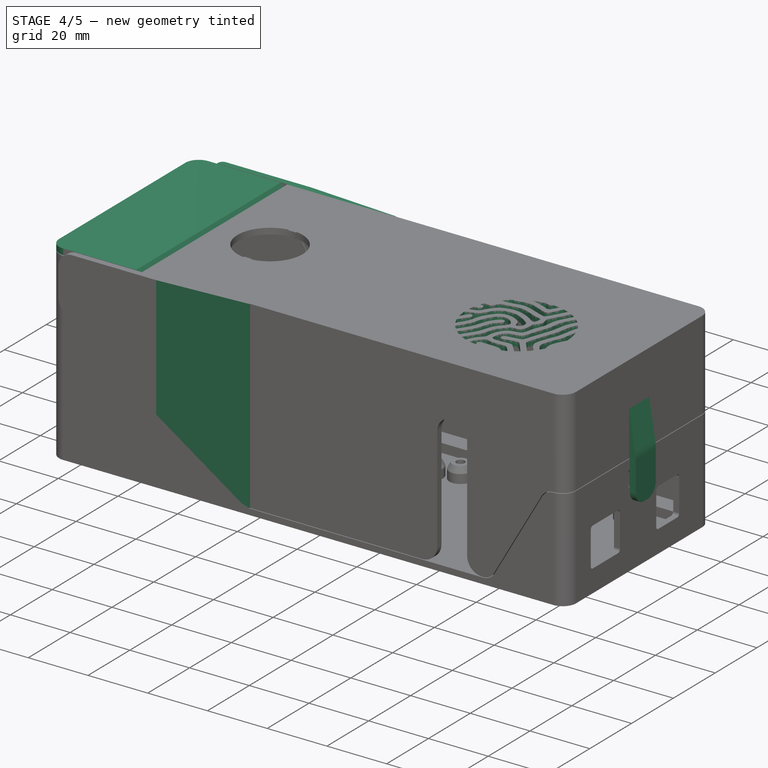
[diagram: stage 4 of 5 — iso view after this stage's code; geometry added in this stage tinted green]
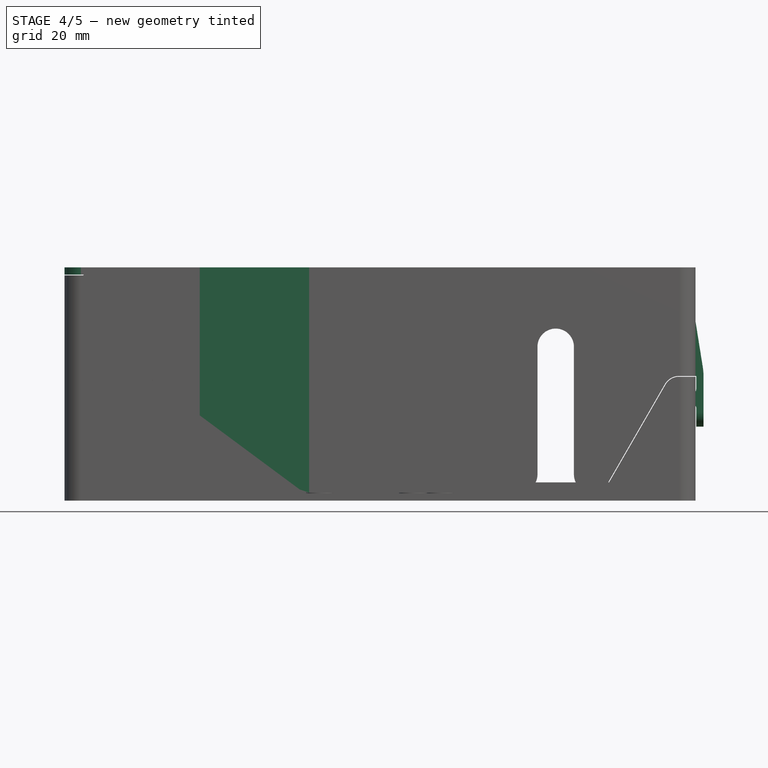
[diagram: stage 4 of 5 — front view after this stage's code; geometry added in this stage tinted green]
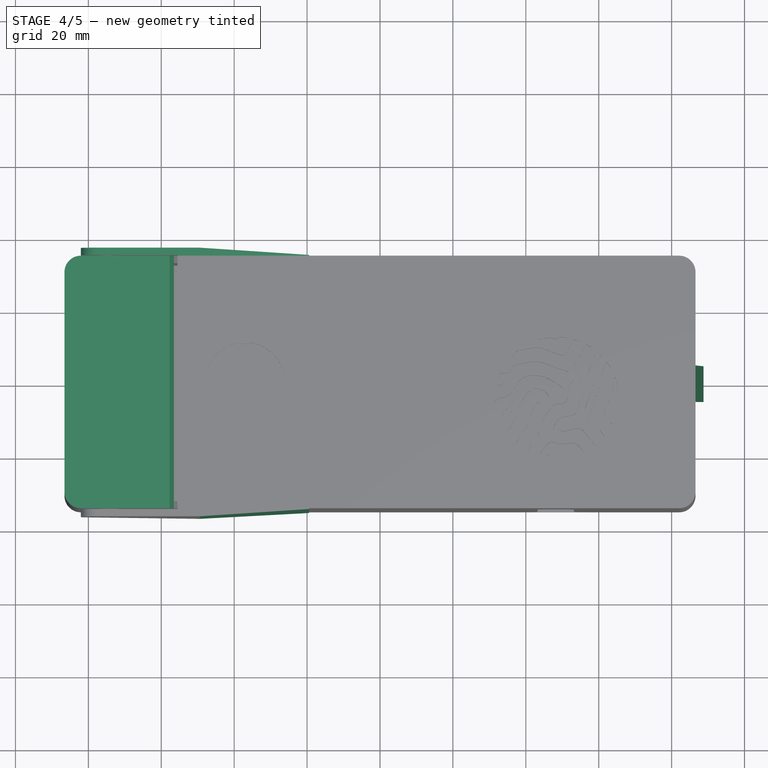
[diagram: stage 4 of 5 — top view after this stage's code; geometry added in this stage tinted green]
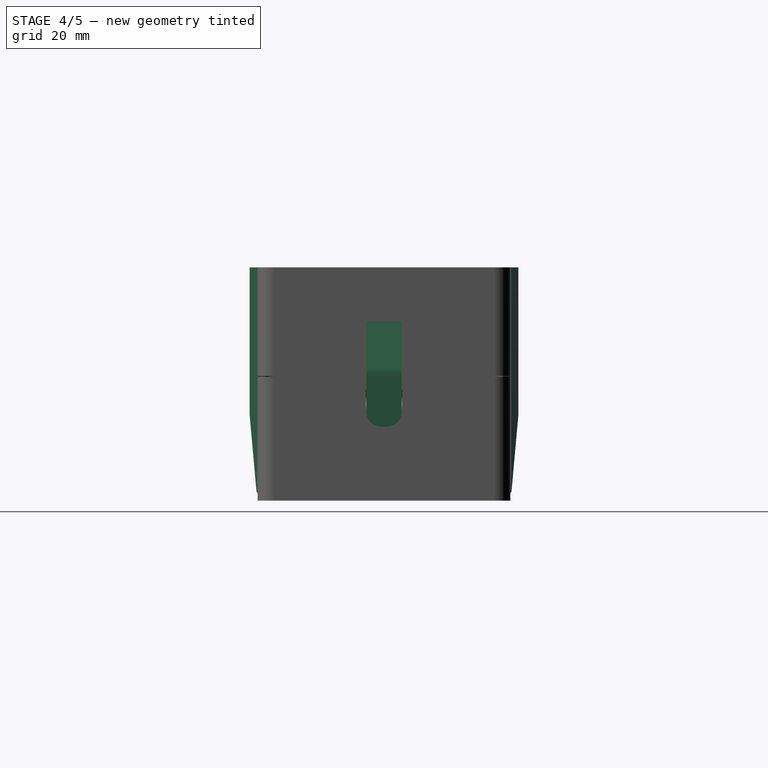
[diagram: stage 4 of 5 — right view after this stage's code; geometry added in this stage tinted green]
FEATURE [Part::FeaturePython] Slice_child2  label="Slice.2"  # WARN: FeaturePython — macro-defined, semantics opaque (R4)
  Base = -> Slice
  FilterType = 1
  Invert = false
  OverrideMaxVal = 0
  WindowFrom = 80
  WindowTo = 100
  items = 2
FEATURE [PartDesign::FeatureBase] BaseFeature001
  BaseFeature = -> Slice_child2
FEATURE [PartDesign::Mirrored] Mirrored005
  BaseFeature = -> Pad019
  MirrorPlane = -> XZ_Plane004
  Originals = -> [Pad016,Pocket009,Pad019]
FEATURE [PartDesign::Pad] Pad017
  BaseFeature = -> Mirrored005
  Direction = (0,-1,-2e-16)
  Length = 9.6
  Length2 = 10
  Midplane = true
  Profile = -> Sketch080
  ReferenceAxis = -> Sketch080 [N_Axis]
  Type = 0
  expr: Length = Spreadsheet.base_big_lid_notch_length - Spreadsheet.offset * 2
FEATURE [PartDesign::Pad] Pad018
  BaseFeature = -> Pad017
  Direction = (0,0,1)
  Length = 2.5
  Length2 = 10
  Profile = -> Sketch081
  ReferenceAxis = -> Sketch081 [N_Axis]
  Reversed = true
  Type = 0
FEATURE [Part::Feature] path791
  shape: bbox 47.98 x 17.09 x 2e-07 mm, 1 faces, 0 solids (baked)
FEATURE [Part::Feature] path791001
  shape: bbox 71.45 x 120.1 x 2e-07 mm, 1 faces, 0 solids (baked)
FEATURE [Part::Feature] path791002
  shape: bbox 53.71 x 106.3 x 2e-07 mm, 1 faces, 0 solids (baked)
FEATURE [Part::Feature] path791003
  shape: bbox 47.07 x 64.69 x 2e-07 mm, 1 faces, 0 solids (baked)
FEATURE [Part::Feature] path791004
  shape: bbox 26.27 x 86.43 x 2e-07 mm, 1 faces, 0 solids (baked)
FEATURE [Part::Feature] path791005
  shape: bbox 17.53 x 58.78 x 2e-07 mm, 1 faces, 0 solids (baked)
FEATURE [Part::Feature] path791006
  shape: bbox 73.74 x 56.56 x 2e-07 mm, 1 faces, 0 solids (baked)
FEATURE [Part::Feature] path791007
  shape: bbox 79.92 x 34.23 x 2e-07 mm, 1 faces, 0 solids (baked)
FEATURE [Part::Feature] path791008
  shape: bbox 76.56 x 26.94 x 2e-07 mm, 1 faces, 0 solids (baked)
FEATURE [Part::Feature] path791009
  shape: bbox 34.83 x 11.45 x 2e-07 mm, 1 faces, 0 solids (baked)
FEATURE [Part::FeaturePython] Clone  label="path791010"  # Draft clone (typed FeaturePython)
  AttacherType = Attacher::AttachEngine3D
  Fuse = false
  Objects = -> [path791009,path791008,path791006,path791004,path791,path791001,path791005,path791003,path791002,path791007]
  Placement = pos=(31.55,12.31,83) rot=(0,0,1;0rad)
  Scale = (0.25,0.25,0.25)
FEATURE [Sketcher::SketchObject] Sketch083
  FullyConstrained = false
  sketch-geometry (239):
    g0: BSplineCurve PolesCount=4 KnotsCount=2 Degree=3 IsPeriodic=0
    g1: BSplineCurve PolesCount=4 KnotsCount=2 Degree=3 IsPeriodic=0
    g2: BSplineCurve PolesCount=4 KnotsCount=2 Degree=3 IsPeriodic=0
    g3: BSplineCurve PolesCount=4 KnotsCount=2 Degree=3 IsPeriodic=0
    g4: BSplineCurve PolesCount=4 KnotsCount=2 Degree=3 IsPeriodic=0
    g5: BSplineCurve PolesCount=4 KnotsCount=2 Degree=3 IsPeriodic=0
    g6: BSplineCurve PolesCount=2 KnotsCount=2 Degree=1 IsPeriodic=0
    g7: BSplineCurve PolesCount=2 KnotsCount=2 Degree=1 IsPeriodic=0
    g8: BSplineCurve PolesCount=4 KnotsCount=2 Degree=3 IsPeriodic=0
    g9: BSplineCurve PolesCount=2 KnotsCount=2 Degree=1 IsPeriodic=0
    g10: BSplineCurve PolesCount=2 KnotsCount=2 Degree=1 IsPeriodic=0
    g11: BSplineCurve PolesCount=4 KnotsCount=2 Degree=3 IsPeriodic=0
    g12: BSplineCurve PolesCount=4 KnotsCount=2 Degree=3 IsPeriodic=0
    g13: BSplineCurve PolesCount=4 KnotsCount=2 Degree=3 IsPeriodic=0
    g14: BSplineCurve PolesCount=4 KnotsCount=2 Degree=3 IsPeriodic=0
    g15: BSplineCurve PolesCount=4 KnotsCount=2 Degree=3 IsPeriodic=0
    g16: BSplineCurve PolesCount=4 KnotsCount=2 Degree=3 IsPeriodic=0
    g17: BSplineCurve PolesCount=4 KnotsCount=2 Degree=3 IsPeriodic=0
    g18: BSplineCurve PolesCount=4 KnotsCount=2 Degree=3 IsPeriodic=0
    g19: BSplineCurve PolesCount=4 KnotsCount=2 Degree=3 IsPeriodic=0
    g20: BSplineCurve PolesCount=4 KnotsCount=2 Degree=3 IsPeriodic=0
    g21: BSplineCurve PolesCount=2 KnotsCount=2 Degree=1 IsPeriodic=0
    g22: BSplineCurve PolesCount=2 KnotsCount=2 Degree=1 IsPeriodic=0
    g23: BSplineCurve PolesCount=4 KnotsCount=2 Degree=3 IsPeriodic=0
    g24: BSplineCurve PolesCount=4 KnotsCount=2 Degree=3 IsPeriodic=0
    g25: BSplineCurve PolesCount=4 KnotsCount=2 Degree=3 IsPeriodic=0
    g26: BSplineCurve PolesCount=4 KnotsCount=2 Degree=3 IsPeriodic=0
    g27: BSplineCurve PolesCount=4 KnotsCount=2 Degree=3 IsPeriodic=0
    g28: BSplineCurve PolesCount=4 KnotsCount=2 Degree=3 IsPeriodic=0
    g29: BSplineCurve PolesCount=2 KnotsCount=2 Degree=1 IsPeriodic=0
    g30: BSplineCurve PolesCount=2 KnotsCount=2 Degree=1 IsPeriodic=0
    g31: BSplineCurve PolesCount=4 KnotsCount=2 Degree=3 IsPeriodic=0
    g32: BSplineCurve PolesCount=4 KnotsCount=2 Degree=3 IsPeriodic=0
    g33: BSplineCurve PolesCount=4 KnotsCount=2 Degree=3 IsPeriodic=0
    g34: BSplineCurve PolesCount=4 KnotsCount=2 Degree=3 IsPeriodic=0
    g35: BSplineCurve PolesCount=4 KnotsCount=2 Degree=3 IsPeriodic=0
    g36: BSplineCurve PolesCount=4 KnotsCount=2 Degree=3 IsPeriodic=0
    g37: BSplineCurve PolesCount=2 KnotsCount=2 Degree=1 IsPeriodic=0
    g38: BSplineCurve PolesCount=2 KnotsCount=2 Degree=1 IsPeriodic=0
    g39: BSplineCurve PolesCount=4 KnotsCount=2 Degree=3 IsPeriodic=0
    g40: BSplineCurve PolesCount=4 KnotsCount=2 Degree=3 IsPeriodic=0
    g41: BSplineCurve PolesCount=4 KnotsCount=2 Degree=3 IsPeriodic=0
    g42: BSplineCurve PolesCount=4 KnotsCount=2 Degree=3 IsPeriodic=0
    g43: BSplineCurve PolesCount=4 KnotsCount=2 Degree=3 IsPeriodic=0
    g44: BSplineCurve PolesCount=2 KnotsCount=2 Degree=1 IsPeriodic=0
    g45: BSplineCurve PolesCount=2 KnotsCount=2 Degree=1 IsPeriodic=0
    g46: BSplineCurve PolesCount=4 KnotsCount=2 Degree=3 IsPeriodic=0
    g47: BSplineCurve PolesCount=2 KnotsCount=2 Degree=1 IsPeriodic=0
    g48: BSplineCurve PolesCount=2 KnotsCount=2 Degree=1 IsPeriodic=0
    g49: BSplineCurve PolesCount=4 KnotsCount=2 Degree=3 IsPeriodic=0
    g50: BSplineCurve PolesCount=4 KnotsCount=2 Degree=3 IsPeriodic=0
    g51: BSplineCurve PolesCount=4 KnotsCount=2 Degree=3 IsPeriodic=0
    g52: BSplineCurve PolesCount=4 KnotsCount=2 Degree=3 IsPeriodic=0
    g53: BSplineCurve PolesCount=4 KnotsCount=2 Degree=3 IsPeriodic=0
    g54: BSplineCurve PolesCount=4 KnotsCount=2 Degree=3 IsPeriodic=0
    g55: BSplineCurve PolesCount=4 KnotsCount=2 Degree=3 IsPeriodic=0
    g56: BSplineCurve PolesCount=4 KnotsCount=2 Degree=3 IsPeriodic=0
    g57: BSplineCurve PolesCount=4 KnotsCount=2 Degree=3 IsPeriodic=0
    g58: BSplineCurve PolesCount=4 KnotsCount=2 Degree=3 IsPeriodic=0
    g59: BSplineCurve PolesCount=4 KnotsCount=2 Degree=3 IsPeriodic=0
    g60: BSplineCurve PolesCount=4 KnotsCount=2 Degree=3 IsPeriodic=0
    g61: BSplineCurve PolesCount=4 KnotsCount=2 Degree=3 IsPeriodic=0
    g62: BSplineCurve PolesCount=4 KnotsCount=2 Degree=3 IsPeriodic=0
    g63: BSplineCurve PolesCount=4 KnotsCount=2 Degree=3 IsPeriodic=0
    g64: BSplineCurve PolesCount=4 KnotsCount=2 Degree=3 IsPeriodic=0
    g65: BSplineCurve PolesCount=4 KnotsCount=2 Degree=3 IsPeriodic=0
    g66: BSplineCurve PolesCount=2 KnotsCount=2 Degree=1 IsPeriodic=0
    g67: BSplineCurve PolesCount=2 KnotsCount=2 Degree=1 IsPeriodic=0
    g68: BSplineCurve PolesCount=4 KnotsCount=2 Degree=3 IsPeriodic=0
    g69: BSplineCurve PolesCount=4 KnotsCount=2 Degree=3 IsPeriodic=0
    g70: BSplineCurve PolesCount=4 KnotsCount=2 Degree=3 IsPeriodic=0
    g71: BSplineCurve PolesCount=4 KnotsCount=2 Degree=3 IsPeriodic=0
    g72: BSplineCurve PolesCount=4 KnotsCount=2 Degree=3 IsPeriodic=0
    g73: BSplineCurve PolesCount=4 KnotsCount=2 Degree=3 IsPeriodic=0
    g74: BSplineCurve PolesCount=4 KnotsCount=2 Degree=3 IsPeriodic=0
    g75: BSplineCurve PolesCount=4 KnotsCount=2 Degree=3 IsPeriodic=0
    g76: BSplineCurve PolesCount=4 KnotsCount=2 Degree=3 IsPeriodic=0
    g77: BSplineCurve PolesCount=4 KnotsCount=2 Degree=3 IsPeriodic=0
    g78: BSplineCurve PolesCount=4 KnotsCount=2 Degree=3 IsPeriodic=0
    g79: BSplineCurve PolesCount=4 KnotsCount=2 Degree=3 IsPeriodic=0
    g80: BSplineCurve PolesCount=4 KnotsCount=2 Degree=3 IsPeriodic=0
    g81: BSplineCurve PolesCount=4 KnotsCount=2 Degree=3 IsPeriodic=0
    g82: BSplineCurve PolesCount=4 KnotsCount=2 Degree=3 IsPeriodic=0
    g83: BSplineCurve PolesCount=4 KnotsCount=2 Degree=3 IsPeriodic=0
    g84: BSplineCurve PolesCount=4 KnotsCount=2 Degree=3 IsPeriodic=0
    g85: BSplineCurve PolesCount=4 KnotsCount=2 Degree=3 IsPeriodic=0
    g86: BSplineCurve PolesCount=4 KnotsCount=2 Degree=3 IsPeriodic=0
    g87: BSplineCurve PolesCount=4 KnotsCount=2 Degree=3 IsPeriodic=0
    g88: BSplineCurve PolesCount=4 KnotsCount=2 Degree=3 IsPeriodic=0
    g89: BSplineCurve PolesCount=4 KnotsCount=2 Degree=3 IsPeriodic=0
    g90: BSplineCurve PolesCount=4 KnotsCount=2 Degree=3 IsPeriodic=0
    g91: BSplineCurve PolesCount=4 KnotsCount=2 Degree=3 IsPeriodic=0
    g92: BSplineCurve PolesCount=4 KnotsCount=2 Degree=3 IsPeriodic=0
    g93: BSplineCurve PolesCount=4 KnotsCount=2 Degree=3 IsPeriodic=0
    g94: BSplineCurve PolesCount=4 KnotsCount=2 Degree=3 IsPeriodic=0
    g95: BSplineCurve PolesCount=4 KnotsCount=2 Degree=3 IsPeriodic=0
    g96: BSplineCurve PolesCount=4 KnotsCount=2 Degree=3 IsPeriodic=0
    g97: BSplineCurve PolesCount=2 KnotsCount=2 Degree=1 IsPeriodic=0
    g98: BSplineCurve PolesCount=2 KnotsCount=2 Degree=1 IsPeriodic=0
    g99: BSplineCurve PolesCount=4 KnotsCount=2 Degree=3 IsPeriodic=0
    g100: BSplineCurve PolesCount=4 KnotsCount=2 Degree=3 IsPeriodic=0
    g101: BSplineCurve PolesCount=4 KnotsCount=2 Degree=3 IsPeriodic=0
    g102: BSplineCurve PolesCount=4 KnotsCount=2 Degree=3 IsPeriodic=0
    g103: BSplineCurve PolesCount=4 KnotsCount=2 Degree=3 IsPeriodic=0
    g104: BSplineCurve PolesCount=2 KnotsCount=2 Degree=1 IsPeriodic=0
    g105: BSplineCurve PolesCount=2 KnotsCount=2 Degree=1 IsPeriodic=0
    g106: BSplineCurve PolesCount=4 KnotsCount=2 Degree=3 IsPeriodic=0
    g107: BSplineCurve PolesCount=4 KnotsCount=2 Degree=3 IsPeriodic=0
    g108: BSplineCurve PolesCount=4 KnotsCount=2 Degree=3 IsPeriodic=0
    g109: BSplineCurve PolesCount=4 KnotsCount=2 Degree=3 IsPeriodic=0
    g110: BSplineCurve PolesCount=4 KnotsCount=2 Degree=3 IsPeriodic=0
    g111: BSplineCurve PolesCount=4 KnotsCount=2 Degree=3 IsPeriodic=0
    g112: BSplineCurve PolesCount=4 KnotsCount=2 Degree=3 IsPeriodic=0
    g113: BSplineCurve PolesCount=4 KnotsCount=2 Degree=3 IsPeriodic=0
    g114: BSplineCurve PolesCount=4 KnotsCount=2 Degree=3 IsPeriodic=0
    g115: BSplineCurve PolesCount=4 KnotsCount=2 Degree=3 IsPeriodic=0
    g116: BSplineCurve PolesCount=4 KnotsCount=2 Degree=3 IsPeriodic=0
    g117: BSplineCurve PolesCount=4 KnotsCount=2 Degree=3 IsPeriodic=0
    g118: BSplineCurve PolesCount=4 KnotsCount=2 Degree=3 IsPeriodic=0
    g119: BSplineCurve PolesCount=4 KnotsCount=2 Degree=3 IsPeriodic=0
    g120: BSplineCurve PolesCount=4 KnotsCount=2 Degree=3 IsPeriodic=0
    g121: BSplineCurve PolesCount=4 KnotsCount=2 Degree=3 IsPeriodic=0
    g122: BSplineCurve PolesCount=4 KnotsCount=2 Degree=3 IsPeriodic=0
    g123: BSplineCurve PolesCount=4 KnotsCount=2 Degree=3 IsPeriodic=0
    g124: BSplineCurve PolesCount=4 KnotsCount=2 Degree=3 IsPeriodic=0
    g125: BSplineCurve PolesCount=4 KnotsCount=2 Degree=3 IsPeriodic=0
    g126: BSplineCurve PolesCount=4 KnotsCount=2 Degree=3 IsPeriodic=0
    g127: BSplineCurve PolesCount=4 KnotsCount=2 Degree=3 IsPeriodic=0
    g128: BSplineCurve PolesCount=4 KnotsCount=2 Degree=3 IsPeriodic=0
    g129: BSplineCurve PolesCount=4 KnotsCount=2 Degree=3 IsPeriodic=0
    g130: BSplineCurve PolesCount=4 KnotsCount=2 Degree=3 IsPeriodic=0
    g131: BSplineCurve PolesCount=4 KnotsCount=2 Degree=3 IsPeriodic=0
    g132: BSplineCurve PolesCount=4 KnotsCount=2 Degree=3 IsPeriodic=0
    g133: BSplineCurve PolesCount=4 KnotsCount=2 Degree=3 IsPeriodic=0
    g134: BSplineCurve PolesCount=4 KnotsCount=2 Degree=3 IsPeriodic=0
    g135: BSplineCurve PolesCount=2 KnotsCount=2 Degree=1 IsPeriodic=0
    g136: BSplineCurve PolesCount=2 KnotsCount=2 Degree=1 IsPeriodic=0
    g137: BSplineCurve PolesCount=4 KnotsCount=2 Degree=3 IsPeriodic=0
    g138: BSplineCurve PolesCount=4 KnotsCount=2 Degree=3 IsPeriodic=0
    g139: BSplineCurve PolesCount=4 KnotsCount=2 Degree=3 IsPeriodic=0
    g140: BSplineCurve PolesCount=4 KnotsCount=2 Degree=3 IsPeriodic=0
    g141: BSplineCurve PolesCount=4 KnotsCount=2 Degree=3 IsPeriodic=0
    g142: BSplineCurve PolesCount=4 KnotsCount=2 Degree=3 IsPeriodic=0
    g143: BSplineCurve PolesCount=2 KnotsCount=2 Degree=1 IsPeriodic=0
    g144: BSplineCurve PolesCount=2 KnotsCount=2 Degree=1 IsPeriodic=0
    g145: BSplineCurve PolesCount=4 KnotsCount=2 Degree=3 IsPeriodic=0
    g146: BSplineCurve PolesCount=4 KnotsCount=2 Degree=3 IsPeriodic=0
    g147: BSplineCurve PolesCount=2 KnotsCount=2 Degree=1 IsPeriodic=0
    g148: BSplineCurve PolesCount=2 KnotsCount=2 Degree=1 IsPeriodic=0
    g149: BSplineCurve PolesCount=4 KnotsCount=2 Degree=3 IsPeriodic=0
    g150: BSplineCurve PolesCount=4 KnotsCount=2 Degree=3 IsPeriodic=0
    g151: BSplineCurve PolesCount=4 KnotsCount=2 Degree=3 IsPeriodic=0
    g152: BSplineCurve PolesCount=2 KnotsCount=2 Degree=1 IsPeriodic=0
    g153: BSplineCurve PolesCount=2 KnotsCount=2 Degree=1 IsPeriodic=0
    g154: BSplineCurve PolesCount=4 KnotsCount=2 Degree=3 IsPeriodic=0
    g155: BSplineCurve PolesCount=4 KnotsCount=2 Degree=3 IsPeriodic=0
    g156: BSplineCurve PolesCount=4 KnotsCount=2 Degree=3 IsPeriodic=0
    g157: BSplineCurve PolesCount=4 KnotsCount=2 Degree=3 IsPeriodic=0
    g158: BSplineCurve PolesCount=4 KnotsCount=2 Degree=3 IsPeriodic=0
    g159: BSplineCurve PolesCount=4 KnotsCount=2 Degree=3 IsPeriodic=0
    g160: BSplineCurve PolesCount=4 KnotsCount=2 Degree=3 IsPeriodic=0
    g161: BSplineCurve PolesCount=4 KnotsCount=2 Degree=3 IsPeriodic=0
    g162: BSplineCurve PolesCount=4 KnotsCount=2 Degree=3 IsPeriodic=0
    g163: BSplineCurve PolesCount=4 KnotsCount=2 Degree=3 IsPeriodic=0
    g164: BSplineCurve PolesCount=2 KnotsCount=2 Degree=1 IsPeriodic=0
    g165: BSplineCurve PolesCount=2 KnotsCount=2 Degree=1 IsPeriodic=0
    g166: BSplineCurve PolesCount=4 KnotsCount=2 Degree=3 IsPeriodic=0
    g167: BSplineCurve PolesCount=4 KnotsCount=2 Degree=3 IsPeriodic=0
    g168: BSplineCurve PolesCount=4 KnotsCount=2 Degree=3 IsPeriodic=0
    g169: BSplineCurve PolesCount=4 KnotsCount=2 Degree=3 IsPeriodic=0
    g170: BSplineCurve PolesCount=4 KnotsCount=2 Degree=3 IsPeriodic=0
    g171: BSplineCurve PolesCount=4 KnotsCount=2 Degree=3 IsPeriodic=0
    g172: BSplineCurve PolesCount=4 KnotsCount=2 Degree=3 IsPeriodic=0
    g173: BSplineCurve PolesCount=4 KnotsCount=2 Degree=3 IsPeriodic=0
    g174: BSplineCurve PolesCount=4 KnotsCount=2 Degree=3 IsPeriodic=0
    g175: BSplineCurve PolesCount=4 KnotsCount=2 Degree=3 IsPeriodic=0
    g176: BSplineCurve PolesCount=4 KnotsCount=2 Degree=3 IsPeriodic=0
    g177: BSplineCurve PolesCount=4 KnotsCount=2 Degree=3 IsPeriodic=0
    g178: BSplineCurve PolesCount=4 KnotsCount=2 Degree=3 IsPeriodic=0
    g179: BSplineCurve PolesCount=4 KnotsCount=2 Degree=3 IsPeriodic=0
    g180: BSplineCurve PolesCount=4 KnotsCount=2 Degree=3 IsPeriodic=0
    g181: BSplineCurve PolesCount=4 KnotsCount=2 Degree=3 IsPeriodic=0
    g182: BSplineCurve PolesCount=4 KnotsCount=2 Degree=3 IsPeriodic=0
    g183: BSplineCurve PolesCount=4 KnotsCount=2 Degree=3 IsPeriodic=0
    g184: BSplineCurve PolesCount=4 KnotsCount=2 Degree=3 IsPeriodic=0
    g185: BSplineCurve PolesCount=4 KnotsCount=2 Degree=3 IsPeriodic=0
    g186: BSplineCurve PolesCount=4 KnotsCount=2 Degree=3 IsPeriodic=0
    g187: BSplineCurve PolesCount=4 KnotsCount=2 Degree=3 IsPeriodic=0
    g188: BSplineCurve PolesCount=4 KnotsCount=2 Degree=3 IsPeriodic=0
    g189: BSplineCurve PolesCount=4 KnotsCount=2 Degree=3 IsPeriodic=0
    g190: BSplineCurve PolesCount=4 KnotsCount=2 Degree=3 IsPeriodic=0
    g191: BSplineCurve PolesCount=4 KnotsCount=2 Degree=3 IsPeriodic=0
    g192: BSplineCurve PolesCount=4 KnotsCount=2 Degree=3 IsPeriodic=0
    g193: BSplineCurve PolesCount=4 KnotsCount=2 Degree=3 IsPeriodic=0
    g194: BSplineCurve PolesCount=4 KnotsCount=2 Degree=3 IsPeriodic=0
    g195: BSplineCurve PolesCount=4 KnotsCount=2 Degree=3 IsPeriodic=0
    g196: BSplineCurve PolesCount=4 KnotsCount=2 Degree=3 IsPeriodic=0
    g197: BSplineCurve PolesCount=4 KnotsCount=2 Degree=3 IsPeriodic=0
    g198: BSplineCurve PolesCount=4 KnotsCount=2 Degree=3 IsPeriodic=0
    g199: BSplineCurve PolesCount=4 KnotsCount=2 Degree=3 IsPeriodic=0
    g200: BSplineCurve PolesCount=4 KnotsCount=2 Degree=3 IsPeriodic=0
    g201: BSplineCurve PolesCount=4 KnotsCount=2 Degree=3 IsPeriodic=0
    g202: BSplineCurve PolesCount=4 KnotsCount=2 Degree=3 IsPeriodic=0
    g203: BSplineCurve PolesCount=4 KnotsCount=2 Degree=3 IsPeriodic=0
    g204: BSplineCurve PolesCount=4 KnotsCount=2 Degree=3 IsPeriodic=0
    g205: BSplineCurve PolesCount=4 KnotsCount=2 Degree=3 IsPeriodic=0
    g206: BSplineCurve PolesCount=4 KnotsCount=2 Degree=3 IsPeriodic=0
    g207: BSplineCurve PolesCount=4 KnotsCount=2 Degree=3 IsPeriodic=0
    g208: BSplineCurve PolesCount=4 KnotsCount=2 Degree=3 IsPeriodic=0
    g209: BSplineCurve PolesCount=4 KnotsCount=2 Degree=3 IsPeriodic=0
    g210: BSplineCurve PolesCount=4 KnotsCount=2 Degree=3 IsPeriodic=0
    g211: BSplineCurve PolesCount=4 KnotsCount=2 Degree=3 IsPeriodic=0
    g212: BSplineCurve PolesCount=4 KnotsCount=2 Degree=3 IsPeriodic=0
    g213: BSplineCurve PolesCount=4 KnotsCount=2 Degree=3 IsPeriodic=0
    g214: BSplineCurve PolesCount=4 KnotsCount=2 Degree=3 IsPeriodic=0
    g215: BSplineCurve PolesCount=4 KnotsCount=2 Degree=3 IsPeriodic=0
    g216: BSplineCurve PolesCount=4 KnotsCount=2 Degree=3 IsPeriodic=0
    g217: BSplineCurve PolesCount=4 KnotsCount=2 Degree=3 IsPeriodic=0
    g218: BSplineCurve PolesCount=4 KnotsCount=2 Degree=3 IsPeriodic=0
    g219: BSplineCurve PolesCount=4 KnotsCount=2 Degree=3 IsPeriodic=0
    g220: BSplineCurve PolesCount=4 KnotsCount=2 Degree=3 IsPeriodic=0
    g221: BSplineCurve PolesCount=4 KnotsCount=2 Degree=3 IsPeriodic=0
    g222: BSplineCurve PolesCount=4 KnotsCount=2 Degree=3 IsPeriodic=0
    g223: BSplineCurve PolesCount=4 KnotsCount=2 Degree=3 IsPeriodic=0
    g224: BSplineCurve PolesCount=4 KnotsCount=2 Degree=3 IsPeriodic=0
    g225: BSplineCurve PolesCount=4 KnotsCount=2 Degree=3 IsPeriodic=0
    g226: BSplineCurve PolesCount=4 KnotsCount=2 Degree=3 IsPeriodic=0
    g227: BSplineCurve PolesCount=4 KnotsCount=2 Degree=3 IsPeriodic=0
    g228: BSplineCurve PolesCount=4 KnotsCount=2 Degree=3 IsPeriodic=0
    g229: BSplineCurve PolesCount=4 KnotsCount=2 Degree=3 IsPeriodic=0
    g230: BSplineCurve PolesCount=4 KnotsCount=2 Degree=3 IsPeriodic=0
    g231: BSplineCurve PolesCount=4 KnotsCount=2 Degree=3 IsPeriodic=0
    g232: BSplineCurve PolesCount=4 KnotsCount=2 Degree=3 IsPeriodic=0
    g233: BSplineCurve PolesCount=4 KnotsCount=2 Degree=3 IsPeriodic=0
    g234: BSplineCurve PolesCount=4 KnotsCount=2 Degree=3 IsPeriodic=0
    g235: BSplineCurve PolesCount=4 KnotsCount=2 Degree=3 IsPeriodic=0
    g236: BSplineCurve PolesCount=4 KnotsCount=2 Degree=3 IsPeriodic=0
    g237: BSplineCurve PolesCount=4 KnotsCount=2 Degree=3 IsPeriodic=0
    g238: BSplineCurve PolesCount=2 KnotsCount=2 Degree=1 IsPeriodic=0
  constraints (239):
    c: Coincident(g0,g1)
    c: Coincident(g1,g2)
    c: Coincident(g2,g3)
    c: Coincident(g3,g4)
    c: Coincident(g4,g5)
    c: Coincident(g5,g6)
    c: Coincident(g6,g7)
    c: Coincident(g7,g8)
    c: Coincident(g8,g9)
    c: Coincident(g9,g10)
    c: Coincident(g10,g11)
    c: Coincident(g11,g12)
    c: Coincident(g12,g13)
    c: Coincident(g13,g14)
    c: Coincident(g14,g0)
    c: Coincident(g15,g16)
    c: Coincident(g16,g17)
    c: Coincident(g17,g18)
    c: Coincident(g18,g19)
    c: Coincident(g19,g20)
    c: Coincident(g20,g21)
    c: Coincident(g21,g22)
    c: Coincident(g22,g23)
    c: Coincident(g23,g24)
    c: Coincident(g24,g25)
    c: Coincident(g25,g26)
    c: Coincident(g26,g27)
    c: Coincident(g27,g28)
    c: Coincident(g28,g29)
    c: Coincident(g29,g30)
    c: Coincident(g30,g31)
    c: Coincident(g31,g32)
    c: Coincident(g32,g33)
    c: Coincident(g33,g34)
    c: Coincident(g34,g35)
    c: Coincident(g35,g36)
    c: Coincident(g36,g15)
    c: Coincident(g37,g38)
    c: Coincident(g38,g39)
    c: Coincident(g39,g40)
    c: Coincident(g40,g41)
    c: Coincident(g41,g42)
    c: Coincident(g42,g43)
    c: Coincident(g43,g44)
    c: Coincident(g44,g45)
    c: Coincident(g45,g46)
    c: Coincident(g46,g47)
    c: Coincident(g47,g48)
    c: Coincident(g48,g49)
    c: Coincident(g49,g50)
    c: Coincident(g50,g51)
    c: Coincident(g51,g52)
    c: Coincident(g52,g53)
    c: Coincident(g53,g54)
    c: Coincident(g54,g55)
    c: Coincident(g55,g56)
    c: Coincident(g56,g57)
    c: Coincident(g57,g58)
    c: Coincident(g58,g59)
    c: Coincident(g59,g60)
    c: Coincident(g60,g61)
    c: Coincident(g61,g62)
    c: Coincident(g62,g63)
    c: Coincident(g63,g64)
    c: Coincident(g64,g65)
    c: Coincident(g65,g66)
    c: Coincident(g66,g67)
    c: Coincident(g67,g37)
    c: Coincident(g68,g69)
    c: Coincident(g69,g70)
    c: Coincident(g70,g71)
    c: Coincident(g71,g72)
    c: Coincident(g72,g73)
    c: Coincident(g73,g74)
    c: Coincident(g74,g75)
    c: Coincident(g75,g76)
    c: Coincident(g76,g77)
    c: Coincident(g77,g78)
    c: Coincident(g78,g79)
    c: Coincident(g79,g80)
    c: Coincident(g80,g81)
    c: Coincident(g81,g82)
    c: Coincident(g82,g83)
    c: Coincident(g83,g84)
    c: Coincident(g84,g85)
    c: Coincident(g85,g86)
    c: Coincident(g86,g68)
    c: Coincident(g87,g88)
    c: Coincident(g88,g89)
    c: Coincident(g89,g90)
    c: Coincident(g90,g91)
    c: Coincident(g91,g92)
    c: Coincident(g92,g93)
    c: Coincident(g93,g94)
    c: Coincident(g94,g95)
    c: Coincident(g95,g96)
    c: Coincident(g96,g97)
    c: Coincident(g97,g98)
    c: Coincident(g98,g99)
    c: Coincident(g99,g100)
    c: Coincident(g100,g101)
    c: Coincident(g101,g102)
    c: Coincident(g102,g87)
    c: Coincident(g103,g104)
    c: Coincident(g104,g105)
    c: Coincident(g105,g106)
    c: Coincident(g106,g107)
    c: Coincident(g107,g108)
    c: Coincident(g108,g109)
    c: Coincident(g109,g110)
    c: Coincident(g110,g111)
    c: Coincident(g111,g112)
    c: Coincident(g112,g113)
    c: Coincident(g113,g114)
    c: Coincident(g114,g115)
    c: Coincident(g115,g116)
    c: Coincident(g116,g117)
    c: Coincident(g117,g118)
    c: Coincident(g118,g119)
    c: Coincident(g119,g120)
    c: Coincident(g120,g121)
    c: Coincident(g121,g122)
    c: Coincident(g122,g123)
    c: Coincident(g123,g124)
    c: Coincident(g124,g125)
    c: Coincident(g125,g126)
    c: Coincident(g126,g127)
    c: Coincident(g127,g128)
    c: Coincident(g128,g129)
    c: Coincident(g129,g130)
    c: Coincident(g130,g131)
    c: Coincident(g131,g132)
    c: Coincident(g132,g133)
    c: Coincident(g133,g134)
    c: Coincident(g134,g135)
    c: Coincident(g135,g136)
    c: Coincident(g136,g103)
    c: Coincident(g137,g138)
    c: Coincident(g138,g139)
    c: Coincident(g139,g140)
    c: Coincident(g140,g141)
    c: Coincident(g141,g142)
    c: Coincident(g142,g143)
    c: Coincident(g143,g144)
    c: Coincident(g144,g145)
    c: Coincident(g145,g146)
    c: Coincident(g146,g147)
    c: Coincident(g147,g148)
    c: Coincident(g148,g149)
    c: Coincident(g149,g150)
    c: Coincident(g150,g137)
    c: Coincident(g151,g152)
    c: Coincident(g152,g153)
    c: Coincident(g153,g154)
    c: Coincident(g154,g155)
    c: Coincident(g155,g156)
    c: Coincident(g156,g157)
    c: Coincident(g157,g158)
    c: Coincident(g158,g159)
    c: Coincident(g159,g160)
    c: Coincident(g160,g161)
    c: Coincident(g161,g162)
    c: Coincident(g162,g163)
    c: Coincident(g163,g164)
    c: Coincident(g164,g165)
    c: Coincident(g165,g166)
    c: Coincident(g166,g167)
    c: Coincident(g167,g168)
    c: Coincident(g168,g169)
    c: Coincident(g169,g170)
    c: Coincident(g170,g171)
    c: Coincident(g171,g172)
    c: Coincident(g172,g173)
    c: Coincident(g173,g174)
    c: Coincident(g174,g175)
    c: Coincident(g175,g176)
    c: Coincident(g176,g177)
    c: Coincident(g177,g178)
    c: Coincident(g178,g179)
    c: Coincident(g179,g151)
    c: Coincident(g180,g181)
    c: Coincident(g181,g182)
    c: Coincident(g182,g183)
    c: Coincident(g183,g184)
    c: Coincident(g184,g185)
    c: Coincident(g185,g186)
    c: Coincident(g186,g187)
    c: Coincident(g187,g188)
    c: Coincident(g188,g189)
    c: Coincident(g189,g190)
    c: Coincident(g190,g191)
    c: Coincident(g191,g192)
    c: Coincident(g192,g193)
    c: Coincident(g193,g194)
    c: Coincident(g194,g195)
    c: Coincident(g195,g196)
    c: Coincident(g196,g197)
    c: Coincident(g197,g198)
    c: Coincident(g198,g199)
    c: Coincident(g199,g200)
    c: Coincident(g200,g201)
    c: Coincident(g201,g202)
    c: Coincident(g202,g203)
    c: Coincident(g203,g204)
    c: Coincident(g204,g205)
    c: Coincident(g205,g206)
    c: Coincident(g206,g207)
    c: Coincident(g207,g208)
    c: Coincident(g208,g209)
    c: Coincident(g209,g180)
    c: Coincident(g210,g211)
    c: Coincident(g211,g212)
    c: Coincident(g212,g213)
    c: Coincident(g213,g214)
    c: Coincident(g214,g215)
    c: Coincident(g215,g216)
    c: Coincident(g216,g217)
    c: Coincident(g217,g218)
    c: Coincident(g218,g219)
    c: Coincident(g219,g220)
    c: Coincident(g220,g221)
    c: Coincident(g221,g222)
    c: Coincident(g222,g223)
    c: Coincident(g223,g224)
    c: Coincident(g224,g225)
    c: Coincident(g225,g226)
    c: Coincident(g226,g227)
    c: Coincident(g227,g228)
    c: Coincident(g228,g229)
    c: Coincident(g229,g230)
    c: Coincident(g230,g231)
    c: Coincident(g231,g232)
    c: Coincident(g232,g233)
    c: Coincident(g233,g234)
    c: Coincident(g234,g235)
    c: Coincident(g235,g236)
    c: Coincident(g236,g237)
    c: Coincident(g237,g238)
    c: Coincident(g238,g210)
FEATURE [App::DocumentObjectGroup] Group002  label="turing_pattern"
  Group = -> [path791009,path791008,path791006,path791004,path791,path791001,path791005,path791003,path791002,path791007,Clone,Sketch083]
FEATURE [Sketcher::SketchObject] Sketch084
  FullyConstrained = false
  Placement = pos=(0,0,64) rot=(0,0,1;0rad)
  expr: .Placement.Base.z = Spreadsheet.base_height_outside
  sketch-geometry (239):
    g0: BSplineCurve PolesCount=4 KnotsCount=2 Degree=3 IsPeriodic=0
    g1: BSplineCurve PolesCount=4 KnotsCount=2 Degree=3 IsPeriodic=0
    g2: BSplineCurve PolesCount=4 KnotsCount=2 Degree=3 IsPeriodic=0
    g3: BSplineCurve PolesCount=4 KnotsCount=2 Degree=3 IsPeriodic=0
    g4: BSplineCurve PolesCount=4 KnotsCount=2 Degree=3 IsPeriodic=0
    g5: BSplineCurve PolesCount=4 KnotsCount=2 Degree=3 IsPeriodic=0
    g6: BSplineCurve PolesCount=2 KnotsCount=2 Degree=1 IsPeriodic=0
    g7: BSplineCurve PolesCount=2 KnotsCount=2 Degree=1 IsPeriodic=0
    g8: BSplineCurve PolesCount=4 KnotsCount=2 Degree=3 IsPeriodic=0
    g9: BSplineCurve PolesCount=2 KnotsCount=2 Degree=1 IsPeriodic=0
    g10: BSplineCurve PolesCount=2 KnotsCount=2 Degree=1 IsPeriodic=0
    g11: BSplineCurve PolesCount=4 KnotsCount=2 Degree=3 IsPeriodic=0
    g12: BSplineCurve PolesCount=4 KnotsCount=2 Degree=3 IsPeriodic=0
    g13: BSplineCurve PolesCount=4 KnotsCount=2 Degree=3 IsPeriodic=0
    g14: BSplineCurve PolesCount=4 KnotsCount=2 Degree=3 IsPeriodic=0
    g15: BSplineCurve PolesCount=4 KnotsCount=2 Degree=3 IsPeriodic=0
    g16: BSplineCurve PolesCount=4 KnotsCount=2 Degree=3 IsPeriodic=0
    g17: BSplineCurve PolesCount=4 KnotsCount=2 Degree=3 IsPeriodic=0
    g18: BSplineCurve PolesCount=4 KnotsCount=2 Degree=3 IsPeriodic=0
    g19: BSplineCurve PolesCount=4 KnotsCount=2 Degree=3 IsPeriodic=0
    g20: BSplineCurve PolesCount=4 KnotsCount=2 Degree=3 IsPeriodic=0
    g21: BSplineCurve PolesCount=2 KnotsCount=2 Degree=1 IsPeriodic=0
    g22: BSplineCurve PolesCount=2 KnotsCount=2 Degree=1 IsPeriodic=0
    g23: BSplineCurve PolesCount=4 KnotsCount=2 Degree=3 IsPeriodic=0
    g24: BSplineCurve PolesCount=4 KnotsCount=2 Degree=3 IsPeriodic=0
    g25: BSplineCurve PolesCount=4 KnotsCount=2 Degree=3 IsPeriodic=0
    g26: BSplineCurve PolesCount=4 KnotsCount=2 Degree=3 IsPeriodic=0
    g27: BSplineCurve PolesCount=4 KnotsCount=2 Degree=3 IsPeriodic=0
    g28: BSplineCurve PolesCount=4 KnotsCount=2 Degree=3 IsPeriodic=0
    g29: BSplineCurve PolesCount=2 KnotsCount=2 Degree=1 IsPeriodic=0
    g30: BSplineCurve PolesCount=2 KnotsCount=2 Degree=1 IsPeriodic=0
    g31: BSplineCurve PolesCount=4 KnotsCount=2 Degree=3 IsPeriodic=0
    g32: BSplineCurve PolesCount=4 KnotsCount=2 Degree=3 IsPeriodic=0
    g33: BSplineCurve PolesCount=4 KnotsCount=2 Degree=3 IsPeriodic=0
    g34: BSplineCurve PolesCount=4 KnotsCount=2 Degree=3 IsPeriodic=0
    g35: BSplineCurve PolesCount=4 KnotsCount=2 Degree=3 IsPeriodic=0
    g36: BSplineCurve PolesCount=4 KnotsCount=2 Degree=3 IsPeriodic=0
    g37: BSplineCurve PolesCount=2 KnotsCount=2 Degree=1 IsPeriodic=0
    g38: BSplineCurve PolesCount=2 KnotsCount=2 Degree=1 IsPeriodic=0
    g39: BSplineCurve PolesCount=4 KnotsCount=2 Degree=3 IsPeriodic=0
    g40: BSplineCurve PolesCount=4 KnotsCount=2 Degree=3 IsPeriodic=0
    g41: BSplineCurve PolesCount=4 KnotsCount=2 Degree=3 IsPeriodic=0
    g42: BSplineCurve PolesCount=4 KnotsCount=2 Degree=3 IsPeriodic=0
    g43: BSplineCurve PolesCount=4 KnotsCount=2 Degree=3 IsPeriodic=0
    g44: BSplineCurve PolesCount=2 KnotsCount=2 Degree=1 IsPeriodic=0
    g45: BSplineCurve PolesCount=2 KnotsCount=2 Degree=1 IsPeriodic=0
    g46: BSplineCurve PolesCount=4 KnotsCount=2 Degree=3 IsPeriodic=0
    g47: BSplineCurve PolesCount=2 KnotsCount=2 Degree=1 IsPeriodic=0
    g48: BSplineCurve PolesCount=2 KnotsCount=2 Degree=1 IsPeriodic=0
    g49: BSplineCurve PolesCount=4 KnotsCount=2 Degree=3 IsPeriodic=0
    g50: BSplineCurve PolesCount=4 KnotsCount=2 Degree=3 IsPeriodic=0
    g51: BSplineCurve PolesCount=4 KnotsCount=2 Degree=3 IsPeriodic=0
    g52: BSplineCurve PolesCount=4 KnotsCount=2 Degree=3 IsPeriodic=0
    g53: BSplineCurve PolesCount=4 KnotsCount=2 Degree=3 IsPeriodic=0
    g54: BSplineCurve PolesCount=4 KnotsCount=2 Degree=3 IsPeriodic=0
    g55: BSplineCurve PolesCount=4 KnotsCount=2 Degree=3 IsPeriodic=0
    g56: BSplineCurve PolesCount=4 KnotsCount=2 Degree=3 IsPeriodic=0
    g57: BSplineCurve PolesCount=4 KnotsCount=2 Degree=3 IsPeriodic=0
    g58: BSplineCurve PolesCount=4 KnotsCount=2 Degree=3 IsPeriodic=0
    g59: BSplineCurve PolesCount=4 KnotsCount=2 Degree=3 IsPeriodic=0
    g60: BSplineCurve PolesCount=4 KnotsCount=2 Degree=3 IsPeriodic=0
    g61: BSplineCurve PolesCount=4 KnotsCount=2 Degree=3 IsPeriodic=0
    g62: BSplineCurve PolesCount=4 KnotsCount=2 Degree=3 IsPeriodic=0
    g63: BSplineCurve PolesCount=4 KnotsCount=2 Degree=3 IsPeriodic=0
    g64: BSplineCurve PolesCount=4 KnotsCount=2 Degree=3 IsPeriodic=0
    g65: BSplineCurve PolesCount=4 KnotsCount=2 Degree=3 IsPeriodic=0
    g66: BSplineCurve PolesCount=2 KnotsCount=2 Degree=1 IsPeriodic=0
    g67: BSplineCurve PolesCount=2 KnotsCount=2 Degree=1 IsPeriodic=0
    g68: BSplineCurve PolesCount=4 KnotsCount=2 Degree=3 IsPeriodic=0
    g69: BSplineCurve PolesCount=4 KnotsCount=2 Degree=3 IsPeriodic=0
    g70: BSplineCurve PolesCount=4 KnotsCount=2 Degree=3 IsPeriodic=0
    g71: BSplineCurve PolesCount=4 KnotsCount=2 Degree=3 IsPeriodic=0
    g72: BSplineCurve PolesCount=4 KnotsCount=2 Degree=3 IsPeriodic=0
    g73: BSplineCurve PolesCount=4 KnotsCount=2 Degree=3 IsPeriodic=0
    g74: BSplineCurve PolesCount=4 KnotsCount=2 Degree=3 IsPeriodic=0
    g75: BSplineCurve PolesCount=4 KnotsCount=2 Degree=3 IsPeriodic=0
    g76: BSplineCurve PolesCount=4 KnotsCount=2 Degree=3 IsPeriodic=0
    g77: BSplineCurve PolesCount=4 KnotsCount=2 Degree=3 IsPeriodic=0
    g78: BSplineCurve PolesCount=4 KnotsCount=2 Degree=3 IsPeriodic=0
    g79: BSplineCurve PolesCount=4 KnotsCount=2 Degree=3 IsPeriodic=0
    g80: BSplineCurve PolesCount=4 KnotsCount=2 Degree=3 IsPeriodic=0
    g81: BSplineCurve PolesCount=4 KnotsCount=2 Degree=3 IsPeriodic=0
    g82: BSplineCurve PolesCount=4 KnotsCount=2 Degree=3 IsPeriodic=0
    g83: BSplineCurve PolesCount=4 KnotsCount=2 Degree=3 IsPeriodic=0
    g84: BSplineCurve PolesCount=4 KnotsCount=2 Degree=3 IsPeriodic=0
    g85: BSplineCurve PolesCount=4 KnotsCount=2 Degree=3 IsPeriodic=0
    g86: BSplineCurve PolesCount=4 KnotsCount=2 Degree=3 IsPeriodic=0
    g87: BSplineCurve PolesCount=4 KnotsCount=2 Degree=3 IsPeriodic=0
    g88: BSplineCurve PolesCount=4 KnotsCount=2 Degree=3 IsPeriodic=0
    g89: BSplineCurve PolesCount=4 KnotsCount=2 Degree=3 IsPeriodic=0
    g90: BSplineCurve PolesCount=4 KnotsCount=2 Degree=3 IsPeriodic=0
    g91: BSplineCurve PolesCount=4 KnotsCount=2 Degree=3 IsPeriodic=0
    g92: BSplineCurve PolesCount=4 KnotsCount=2 Degree=3 IsPeriodic=0
    g93: BSplineCurve PolesCount=4 KnotsCount=2 Degree=3 IsPeriodic=0
    g94: BSplineCurve PolesCount=4 KnotsCount=2 Degree=3 IsPeriodic=0
    g95: BSplineCurve PolesCount=4 KnotsCount=2 Degree=3 IsPeriodic=0
    g96: BSplineCurve PolesCount=4 KnotsCount=2 Degree=3 IsPeriodic=0
    g97: BSplineCurve PolesCount=2 KnotsCount=2 Degree=1 IsPeriodic=0
    g98: BSplineCurve PolesCount=2 KnotsCount=2 Degree=1 IsPeriodic=0
    g99: BSplineCurve PolesCount=4 KnotsCount=2 Degree=3 IsPeriodic=0
    g100: BSplineCurve PolesCount=4 KnotsCount=2 Degree=3 IsPeriodic=0
    g101: BSplineCurve PolesCount=4 KnotsCount=2 Degree=3 IsPeriodic=0
    g102: BSplineCurve PolesCount=4 KnotsCount=2 Degree=3 IsPeriodic=0
    g103: BSplineCurve PolesCount=4 KnotsCount=2 Degree=3 IsPeriodic=0
    g104: BSplineCurve PolesCount=2 KnotsCount=2 Degree=1 IsPeriodic=0
    g105: BSplineCurve PolesCount=2 KnotsCount=2 Degree=1 IsPeriodic=0
    g106: BSplineCurve PolesCount=4 KnotsCount=2 Degree=3 IsPeriodic=0
    g107: BSplineCurve PolesCount=4 KnotsCount=2 Degree=3 IsPeriodic=0
    g108: BSplineCurve PolesCount=4 KnotsCount=2 Degree=3 IsPeriodic=0
    g109: BSplineCurve PolesCount=4 KnotsCount=2 Degree=3 IsPeriodic=0
    g110: BSplineCurve PolesCount=4 KnotsCount=2 Degree=3 IsPeriodic=0
    g111: BSplineCurve PolesCount=4 KnotsCount=2 Degree=3 IsPeriodic=0
    g112: BSplineCurve PolesCount=4 KnotsCount=2 Degree=3 IsPeriodic=0
    g113: BSplineCurve PolesCount=4 KnotsCount=2 Degree=3 IsPeriodic=0
    g114: BSplineCurve PolesCount=4 KnotsCount=2 Degree=3 IsPeriodic=0
    g115: BSplineCurve PolesCount=4 KnotsCount=2 Degree=3 IsPeriodic=0
    g116: BSplineCurve PolesCount=4 KnotsCount=2 Degree=3 IsPeriodic=0
    g117: BSplineCurve PolesCount=4 KnotsCount=2 Degree=3 IsPeriodic=0
    g118: BSplineCurve PolesCount=4 KnotsCount=2 Degree=3 IsPeriodic=0
    g119: BSplineCurve PolesCount=4 KnotsCount=2 Degree=3 IsPeriodic=0
    g120: BSplineCurve PolesCount=4 KnotsCount=2 Degree=3 IsPeriodic=0
    g121: BSplineCurve PolesCount=4 KnotsCount=2 Degree=3 IsPeriodic=0
    g122: BSplineCurve PolesCount=4 KnotsCount=2 Degree=3 IsPeriodic=0
    g123: BSplineCurve PolesCount=4 KnotsCount=2 Degree=3 IsPeriodic=0
    g124: BSplineCurve PolesCount=4 KnotsCount=2 Degree=3 IsPeriodic=0
    g125: BSplineCurve PolesCount=4 KnotsCount=2 Degree=3 IsPeriodic=0
    g126: BSplineCurve PolesCount=4 KnotsCount=2 Degree=3 IsPeriodic=0
    g127: BSplineCurve PolesCount=4 KnotsCount=2 Degree=3 IsPeriodic=0
    g128: BSplineCurve PolesCount=4 KnotsCount=2 Degree=3 IsPeriodic=0
    g129: BSplineCurve PolesCount=4 KnotsCount=2 Degree=3 IsPeriodic=0
    g130: BSplineCurve PolesCount=4 KnotsCount=2 Degree=3 IsPeriodic=0
    g131: BSplineCurve PolesCount=4 KnotsCount=2 Degree=3 IsPeriodic=0
    g132: BSplineCurve PolesCount=4 KnotsCount=2 Degree=3 IsPeriodic=0
    g133: BSplineCurve PolesCount=4 KnotsCount=2 Degree=3 IsPeriodic=0
    g134: BSplineCurve PolesCount=4 KnotsCount=2 Degree=3 IsPeriodic=0
    g135: BSplineCurve PolesCount=2 KnotsCount=2 Degree=1 IsPeriodic=0
    g136: BSplineCurve PolesCount=2 KnotsCount=2 Degree=1 IsPeriodic=0
    g137: BSplineCurve PolesCount=4 KnotsCount=2 Degree=3 IsPeriodic=0
    g138: BSplineCurve PolesCount=4 KnotsCount=2 Degree=3 IsPeriodic=0
    g139: BSplineCurve PolesCount=4 KnotsCount=2 Degree=3 IsPeriodic=0
    g140: BSplineCurve PolesCount=4 KnotsCount=2 Degree=3 IsPeriodic=0
    g141: BSplineCurve PolesCount=4 KnotsCount=2 Degree=3 IsPeriodic=0
    g142: BSplineCurve PolesCount=4 KnotsCount=2 Degree=3 IsPeriodic=0
    g143: BSplineCurve PolesCount=2 KnotsCount=2 Degree=1 IsPeriodic=0
    g144: BSplineCurve PolesCount=2 KnotsCount=2 Degree=1 IsPeriodic=0
    g145: BSplineCurve PolesCount=4 KnotsCount=2 Degree=3 IsPeriodic=0
    g146: BSplineCurve PolesCount=4 KnotsCount=2 Degree=3 IsPeriodic=0
    g147: BSplineCurve PolesCount=2 KnotsCount=2 Degree=1 IsPeriodic=0
    g148: BSplineCurve PolesCount=2 KnotsCount=2 Degree=1 IsPeriodic=0
    g149: BSplineCurve PolesCount=4 KnotsCount=2 Degree=3 IsPeriodic=0
    g150: BSplineCurve PolesCount=4 KnotsCount=2 Degree=3 IsPeriodic=0
    g151: BSplineCurve PolesCount=4 KnotsCount=2 Degree=3 IsPeriodic=0
    g152: BSplineCurve PolesCount=2 KnotsCount=2 Degree=1 IsPeriodic=0
    g153: BSplineCurve PolesCount=2 KnotsCount=2 Degree=1 IsPeriodic=0
    g154: BSplineCurve PolesCount=4 KnotsCount=2 Degree=3 IsPeriodic=0
    g155: BSplineCurve PolesCount=4 KnotsCount=2 Degree=3 IsPeriodic=0
    g156: BSplineCurve PolesCount=4 KnotsCount=2 Degree=3 IsPeriodic=0
    g157: BSplineCurve PolesCount=4 KnotsCount=2 Degree=3 IsPeriodic=0
    g158: BSplineCurve PolesCount=4 KnotsCount=2 Degree=3 IsPeriodic=0
    g159: BSplineCurve PolesCount=4 KnotsCount=2 Degree=3 IsPeriodic=0
    g160: BSplineCurve PolesCount=4 KnotsCount=2 Degree=3 IsPeriodic=0
    g161: BSplineCurve PolesCount=4 KnotsCount=2 Degree=3 IsPeriodic=0
    g162: BSplineCurve PolesCount=4 KnotsCount=2 Degree=3 IsPeriodic=0
    g163: BSplineCurve PolesCount=4 KnotsCount=2 Degree=3 IsPeriodic=0
    g164: BSplineCurve PolesCount=2 KnotsCount=2 Degree=1 IsPeriodic=0
    g165: BSplineCurve PolesCount=2 KnotsCount=2 Degree=1 IsPeriodic=0
    g166: BSplineCurve PolesCount=4 KnotsCount=2 Degree=3 IsPeriodic=0
    g167: BSplineCurve PolesCount=4 KnotsCount=2 Degree=3 IsPeriodic=0
    g168: BSplineCurve PolesCount=4 KnotsCount=2 Degree=3 IsPeriodic=0
    g169: BSplineCurve PolesCount=4 KnotsCount=2 Degree=3 IsPeriodic=0
    g170: BSplineCurve PolesCount=4 KnotsCount=2 Degree=3 IsPeriodic=0
    g171: BSplineCurve PolesCount=4 KnotsCount=2 Degree=3 IsPeriodic=0
    g172: BSplineCurve PolesCount=4 KnotsCount=2 Degree=3 IsPeriodic=0
    g173: BSplineCurve PolesCount=4 KnotsCount=2 Degree=3 IsPeriodic=0
    g174: BSplineCurve PolesCount=4 KnotsCount=2 Degree=3 IsPeriodic=0
    g175: BSplineCurve PolesCount=4 KnotsCount=2 Degree=3 IsPeriodic=0
    g176: BSplineCurve PolesCount=4 KnotsCount=2 Degree=3 IsPeriodic=0
    g177: BSplineCurve PolesCount=4 KnotsCount=2 Degree=3 IsPeriodic=0
    g178: BSplineCurve PolesCount=4 KnotsCount=2 Degree=3 IsPeriodic=0
    g179: BSplineCurve PolesCount=4 KnotsCount=2 Degree=3 IsPeriodic=0
    g180: BSplineCurve PolesCount=4 KnotsCount=2 Degree=3 IsPeriodic=0
    g181: BSplineCurve PolesCount=4 KnotsCount=2 Degree=3 IsPeriodic=0
    g182: BSplineCurve PolesCount=4 KnotsCount=2 Degree=3 IsPeriodic=0
    g183: BSplineCurve PolesCount=4 KnotsCount=2 Degree=3 IsPeriodic=0
    g184: BSplineCurve PolesCount=4 KnotsCount=2 Degree=3 IsPeriodic=0
    g185: BSplineCurve PolesCount=4 KnotsCount=2 Degree=3 IsPeriodic=0
    g186: BSplineCurve PolesCount=4 KnotsCount=2 Degree=3 IsPeriodic=0
    g187: BSplineCurve PolesCount=4 KnotsCount=2 Degree=3 IsPeriodic=0
    g188: BSplineCurve PolesCount=4 KnotsCount=2 Degree=3 IsPeriodic=0
    g189: BSplineCurve PolesCount=4 KnotsCount=2 Degree=3 IsPeriodic=0
    g190: BSplineCurve PolesCount=4 KnotsCount=2 Degree=3 IsPeriodic=0
    g191: BSplineCurve PolesCount=4 KnotsCount=2 Degree=3 IsPeriodic=0
    g192: BSplineCurve PolesCount=4 KnotsCount=2 Degree=3 IsPeriodic=0
    g193: BSplineCurve PolesCount=4 KnotsCount=2 Degree=3 IsPeriodic=0
    g194: BSplineCurve PolesCount=4 KnotsCount=2 Degree=3 IsPeriodic=0
    g195: BSplineCurve PolesCount=4 KnotsCount=2 Degree=3 IsPeriodic=0
    g196: BSplineCurve PolesCount=4 KnotsCount=2 Degree=3 IsPeriodic=0
    g197: BSplineCurve PolesCount=4 KnotsCount=2 Degree=3 IsPeriodic=0
    g198: BSplineCurve PolesCount=4 KnotsCount=2 Degree=3 IsPeriodic=0
    g199: BSplineCurve PolesCount=4 KnotsCount=2 Degree=3 IsPeriodic=0
    g200: BSplineCurve PolesCount=4 KnotsCount=2 Degree=3 IsPeriodic=0
    g201: BSplineCurve PolesCount=4 KnotsCount=2 Degree=3 IsPeriodic=0
    g202: BSplineCurve PolesCount=4 KnotsCount=2 Degree=3 IsPeriodic=0
    g203: BSplineCurve PolesCount=4 KnotsCount=2 Degree=3 IsPeriodic=0
    g204: BSplineCurve PolesCount=4 KnotsCount=2 Degree=3 IsPeriodic=0
    g205: BSplineCurve PolesCount=4 KnotsCount=2 Degree=3 IsPeriodic=0
    g206: BSplineCurve PolesCount=4 KnotsCount=2 Degree=3 IsPeriodic=0
    g207: BSplineCurve PolesCount=4 KnotsCount=2 Degree=3 IsPeriodic=0
    g208: BSplineCurve PolesCount=4 KnotsCount=2 Degree=3 IsPeriodic=0
    g209: BSplineCurve PolesCount=4 KnotsCount=2 Degree=3 IsPeriodic=0
    g210: BSplineCurve PolesCount=4 KnotsCount=2 Degree=3 IsPeriodic=0
    g211: BSplineCurve PolesCount=4 KnotsCount=2 Degree=3 IsPeriodic=0
    g212: BSplineCurve PolesCount=4 KnotsCount=2 Degree=3 IsPeriodic=0
    g213: BSplineCurve PolesCount=4 KnotsCount=2 Degree=3 IsPeriodic=0
    g214: BSplineCurve PolesCount=4 KnotsCount=2 Degree=3 IsPeriodic=0
    g215: BSplineCurve PolesCount=4 KnotsCount=2 Degree=3 IsPeriodic=0
    g216: BSplineCurve PolesCount=4 KnotsCount=2 Degree=3 IsPeriodic=0
    g217: BSplineCurve PolesCount=4 KnotsCount=2 Degree=3 IsPeriodic=0
    g218: BSplineCurve PolesCount=4 KnotsCount=2 Degree=3 IsPeriodic=0
    g219: BSplineCurve PolesCount=4 KnotsCount=2 Degree=3 IsPeriodic=0
    g220: BSplineCurve PolesCount=4 KnotsCount=2 Degree=3 IsPeriodic=0
    g221: BSplineCurve PolesCount=4 KnotsCount=2 Degree=3 IsPeriodic=0
    g222: BSplineCurve PolesCount=4 KnotsCount=2 Degree=3 IsPeriodic=0
    g223: BSplineCurve PolesCount=4 KnotsCount=2 Degree=3 IsPeriodic=0
    g224: BSplineCurve PolesCount=4 KnotsCount=2 Degree=3 IsPeriodic=0
    g225: BSplineCurve PolesCount=4 KnotsCount=2 Degree=3 IsPeriodic=0
    g226: BSplineCurve PolesCount=4 KnotsCount=2 Degree=3 IsPeriodic=0
    g227: BSplineCurve PolesCount=4 KnotsCount=2 Degree=3 IsPeriodic=0
    g228: BSplineCurve PolesCount=4 KnotsCount=2 Degree=3 IsPeriodic=0
    g229: BSplineCurve PolesCount=4 KnotsCount=2 Degree=3 IsPeriodic=0
    g230: BSplineCurve PolesCount=4 KnotsCount=2 Degree=3 IsPeriodic=0
    g231: BSplineCurve PolesCount=4 KnotsCount=2 Degree=3 IsPeriodic=0
    g232: BSplineCurve PolesCount=4 KnotsCount=2 Degree=3 IsPeriodic=0
    g233: BSplineCurve PolesCount=4 KnotsCount=2 Degree=3 IsPeriodic=0
    g234: BSplineCurve PolesCount=4 KnotsCount=2 Degree=3 IsPeriodic=0
    g235: BSplineCurve PolesCount=4 KnotsCount=2 Degree=3 IsPeriodic=0
    g236: BSplineCurve PolesCount=4 KnotsCount=2 Degree=3 IsPeriodic=0
    g237: BSplineCurve PolesCount=4 KnotsCount=2 Degree=3 IsPeriodic=0
    g238: BSplineCurve PolesCount=2 KnotsCount=2 Degree=1 IsPeriodic=0
  constraints (239):
    c: Coincident(g0,g1)
    c: Coincident(g1,g2)
    c: Coincident(g2,g3)
    c: Coincident(g3,g4)
    c: Coincident(g4,g5)
    c: Coincident(g5,g6)
    c: Coincident(g6,g7)
    c: Coincident(g7,g8)
    c: Coincident(g8,g9)
    c: Coincident(g9,g10)
    c: Coincident(g10,g11)
    c: Coincident(g11,g12)
    c: Coincident(g12,g13)
    c: Coincident(g13,g14)
    c: Coincident(g14,g0)
    c: Coincident(g15,g16)
    c: Coincident(g16,g17)
    c: Coincident(g17,g18)
    c: Coincident(g18,g19)
    c: Coincident(g19,g20)
    c: Coincident(g20,g21)
    c: Coincident(g21,g22)
    c: Coincident(g22,g23)
    c: Coincident(g23,g24)
    c: Coincident(g24,g25)
    c: Coincident(g25,g26)
    c: Coincident(g26,g27)
    c: Coincident(g27,g28)
    c: Coincident(g28,g29)
    c: Coincident(g29,g30)
    c: Coincident(g30,g31)
    c: Coincident(g31,g32)
    c: Coincident(g32,g33)
    c: Coincident(g33,g34)
    c: Coincident(g34,g35)
    c: Coincident(g35,g36)
    c: Coincident(g36,g15)
    c: Coincident(g37,g38)
    c: Coincident(g38,g39)
    c: Coincident(g39,g40)
    c: Coincident(g40,g41)
    c: Coincident(g41,g42)
    c: Coincident(g42,g43)
    c: Coincident(g43,g44)
    c: Coincident(g44,g45)
    c: Coincident(g45,g46)
    c: Coincident(g46,g47)
    c: Coincident(g47,g48)
    c: Coincident(g48,g49)
    c: Coincident(g49,g50)
    c: Coincident(g50,g51)
    c: Coincident(g51,g52)
    c: Coincident(g52,g53)
    c: Coincident(g53,g54)
    c: Coincident(g54,g55)
    c: Coincident(g55,g56)
    c: Coincident(g56,g57)
    c: Coincident(g57,g58)
    c: Coincident(g58,g59)
    c: Coincident(g59,g60)
    c: Coincident(g60,g61)
    c: Coincident(g61,g62)
    c: Coincident(g62,g63)
    c: Coincident(g63,g64)
    c: Coincident(g64,g65)
    c: Coincident(g65,g66)
    c: Coincident(g66,g67)
    c: Coincident(g67,g37)
    c: Coincident(g68,g69)
    c: Coincident(g69,g70)
    c: Coincident(g70,g71)
    c: Coincident(g71,g72)
    c: Coincident(g72,g73)
    c: Coincident(g73,g74)
    c: Coincident(g74,g75)
    c: Coincident(g75,g76)
    c: Coincident(g76,g77)
    c: Coincident(g77,g78)
    c: Coincident(g78,g79)
    c: Coincident(g79,g80)
    c: Coincident(g80,g81)
    c: Coincident(g81,g82)
    c: Coincident(g82,g83)
    c: Coincident(g83,g84)
    c: Coincident(g84,g85)
    c: Coincident(g85,g86)
    c: Coincident(g86,g68)
    c: Coincident(g87,g88)
    c: Coincident(g88,g89)
    c: Coincident(g89,g90)
    c: Coincident(g90,g91)
    c: Coincident(g91,g92)
    c: Coincident(g92,g93)
    c: Coincident(g93,g94)
    c: Coincident(g94,g95)
    c: Coincident(g95,g96)
    c: Coincident(g96,g97)
    c: Coincident(g97,g98)
    c: Coincident(g98,g99)
    c: Coincident(g99,g100)
    c: Coincident(g100,g101)
    c: Coincident(g101,g102)
    c: Coincident(g102,g87)
    c: Coincident(g103,g104)
    c: Coincident(g104,g105)
    c: Coincident(g105,g106)
    c: Coincident(g106,g107)
    c: Coincident(g107,g108)
    c: Coincident(g108,g109)
    c: Coincident(g109,g110)
    c: Coincident(g110,g111)
    c: Coincident(g111,g112)
    c: Coincident(g112,g113)
    c: Coincident(g113,g114)
    c: Coincident(g114,g115)
    c: Coincident(g115,g116)
    c: Coincident(g116,g117)
    c: Coincident(g117,g118)
    c: Coincident(g118,g119)
    c: Coincident(g119,g120)
    c: Coincident(g120,g121)
    c: Coincident(g121,g122)
    c: Coincident(g122,g123)
    c: Coincident(g123,g124)
    c: Coincident(g124,g125)
    c: Coincident(g125,g126)
    c: Coincident(g126,g127)
    c: Coincident(g127,g128)
    c: Coincident(g128,g129)
    c: Coincident(g129,g130)
    c: Coincident(g130,g131)
    c: Coincident(g131,g132)
    c: Coincident(g132,g133)
    c: Coincident(g133,g134)
    c: Coincident(g134,g135)
    c: Coincident(g135,g136)
    c: Coincident(g136,g103)
    c: Coincident(g137,g138)
    c: Coincident(g138,g139)
    c: Coincident(g139,g140)
    c: Coincident(g140,g141)
    c: Coincident(g141,g142)
    c: Coincident(g142,g143)
    c: Coincident(g143,g144)
    c: Coincident(g144,g145)
    c: Coincident(g145,g146)
    c: Coincident(g146,g147)
    c: Coincident(g147,g148)
    c: Coincident(g148,g149)
    c: Coincident(g149,g150)
    c: Coincident(g150,g137)
    c: Coincident(g151,g152)
    c: Coincident(g152,g153)
    c: Coincident(g153,g154)
    c: Coincident(g154,g155)
    c: Coincident(g155,g156)
    c: Coincident(g156,g157)
    c: Coincident(g157,g158)
    c: Coincident(g158,g159)
    c: Coincident(g159,g160)
    c: Coincident(g160,g161)
    c: Coincident(g161,g162)
    c: Coincident(g162,g163)
    c: Coincident(g163,g164)
    c: Coincident(g164,g165)
    c: Coincident(g165,g166)
    c: Coincident(g166,g167)
    c: Coincident(g167,g168)
    c: Coincident(g168,g169)
    c: Coincident(g169,g170)
    c: Coincident(g170,g171)
    c: Coincident(g171,g172)
    c: Coincident(g172,g173)
    c: Coincident(g173,g174)
    c: Coincident(g174,g175)
    c: Coincident(g175,g176)
    c: Coincident(g176,g177)
    c: Coincident(g177,g178)
    c: Coincident(g178,g179)
    c: Coincident(g179,g151)
    c: Coincident(g180,g181)
    c: Coincident(g181,g182)
    c: Coincident(g182,g183)
    c: Coincident(g183,g184)
    c: Coincident(g184,g185)
    c: Coincident(g185,g186)
    c: Coincident(g186,g187)
    c: Coincident(g187,g188)
    c: Coincident(g188,g189)
    c: Coincident(g189,g190)
    c: Coincident(g190,g191)
    c: Coincident(g191,g192)
    c: Coincident(g192,g193)
    c: Coincident(g193,g194)
    c: Coincident(g194,g195)
    c: Coincident(g195,g196)
    c: Coincident(g196,g197)
    c: Coincident(g197,g198)
    c: Coincident(g198,g199)
    c: Coincident(g199,g200)
    c: Coincident(g200,g201)
    c: Coincident(g201,g202)
    c: Coincident(g202,g203)
    c: Coincident(g203,g204)
    c: Coincident(g204,g205)
    c: Coincident(g205,g206)
    c: Coincident(g206,g207)
    c: Coincident(g207,g208)
    c: Coincident(g208,g209)
    c: Coincident(g209,g180)
    c: Coincident(g210,g211)
    c: Coincident(g211,g212)
    c: Coincident(g212,g213)
    c: Coincident(g213,g214)
    c: Coincident(g214,g215)
    c: Coincident(g215,g216)
    c: Coincident(g216,g217)
    c: Coincident(g217,g218)
    c: Coincident(g218,g219)
    c: Coincident(g219,g220)
    c: Coincident(g220,g221)
    c: Coincident(g221,g222)
    c: Coincident(g222,g223)
    c: Coincident(g223,g224)
    c: Coincident(g224,g225)
    c: Coincident(g225,g226)
    c: Coincident(g226,g227)
    c: Coincident(g227,g228)
    c: Coincident(g228,g229)
    c: Coincident(g229,g230)
    c: Coincident(g230,g231)
    c: Coincident(g231,g232)
    c: Coincident(g232,g233)
    c: Coincident(g233,g234)
    c: Coincident(g234,g235)
    c: Coincident(g235,g236)
    c: Coincident(g236,g237)
    c: Coincident(g237,g238)
    c: Coincident(g238,g210)
FEATURE [PartDesign::Pocket] Pocket010
  BaseFeature = -> Pad018
  Direction = (0,0,-1)
  Length = 2
  Length2 = 5
  Profile = -> Sketch084
  ReferenceAxis = -> Sketch084 [N_Axis]
  Type = 0
  expr: Length = Spreadsheet.wall_thickness
FEATURE [PartDesign::Fillet] Fillet
  Base = -> Pocket010 [Edge869,Edge858]
  BaseFeature = -> Pocket010
  Radius = 4
  SupportTransform = false
  UseAllEdges = false
FEATURE [PartDesign::Chamfer] Chamfer
  Angle = 45
  Base = -> Fillet [Edge891]
  BaseFeature = -> Fillet
  ChamferType = 1
  FlipDirection = false
  Size = 1.99
  Size2 = 30
  SupportTransform = false
  UseAllEdges = false
  expr: Size = Spreadsheet.wall_thickness - 0.01mm
FEATURE [PartDesign::Mirrored] Mirrored006
  BaseFeature = -> Chamfer
  MirrorPlane = -> XZ_Plane004
  Originals = -> [Chamfer]
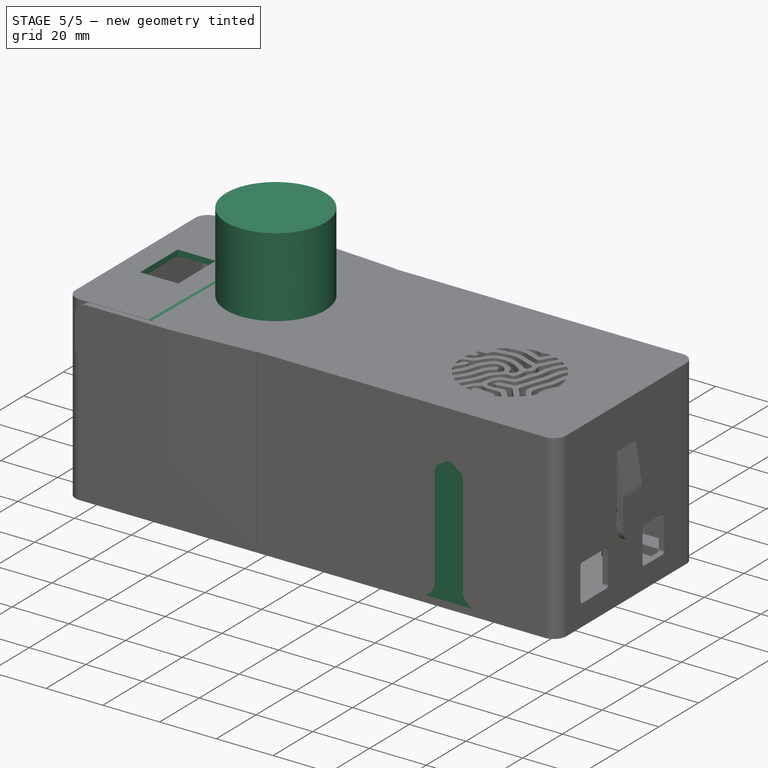
[diagram: stage 5 of 5 — iso view after this stage's code; geometry added in this stage tinted green]
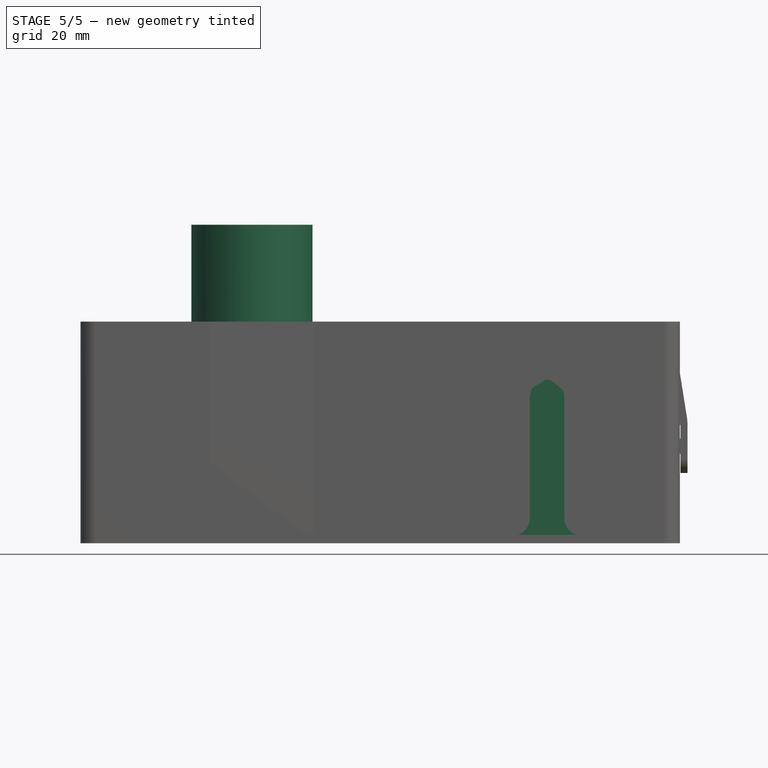
[diagram: stage 5 of 5 — front view after this stage's code; geometry added in this stage tinted green]
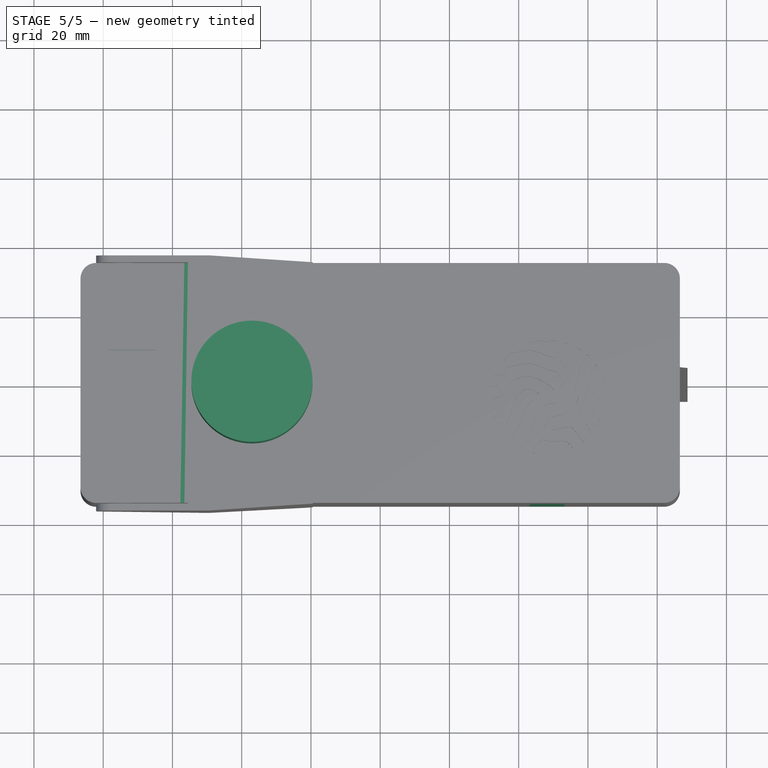
[diagram: stage 5 of 5 — top view after this stage's code; geometry added in this stage tinted green]
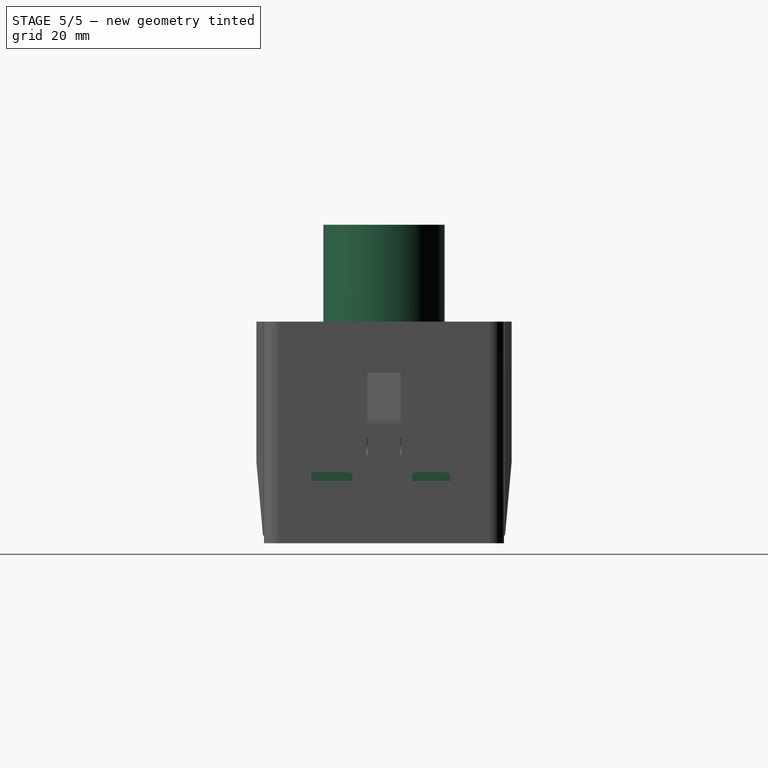
[diagram: stage 5 of 5 — right view after this stage's code; geometry added in this stage tinted green]
FEATURE [Part::FeaturePython] Slice_child1  label="Slice.1"  # WARN: FeaturePython — macro-defined, semantics opaque (R4)
  Base = -> Slice
  FilterType = 1
  Invert = false
  OverrideMaxVal = 0
  WindowFrom = 80
  WindowTo = 100
  items = 1
FEATURE [Sketcher::SketchObject] Sketch054
  AttachmentOffset = pos=(0,0,0) rot=(0,0,1;-1.5708rad)
  FullyConstrained = true
  MapMode = 5
  Placement = pos=(0,0,0) rot=(0,0,1;4.71239rad)
  Support = -> [XY_Plane005]
  expr: Constraints[15] = Spreadsheet.ard_len
  expr: Constraints[16] = Spreadsheet.holes_diam
  expr: Constraints[18] = Spreadsheet.hole1_lengthwise_dist
  expr: Constraints[19] = Spreadsheet.hole1_widthwise_dist
  expr: Constraints[20] = Spreadsheet.hole2_widthwise_dist
  expr: Constraints[21] = Spreadsheet.hole2_lengthwise_dist
  expr: Constraints[22] = Spreadsheet.hole3_widthwise_dist
  expr: Constraints[23] = Spreadsheet.hole3_lengthwise_dist
  expr: Constraints[24] = Spreadsheet.hole4_lengthwise_dist
  expr: Constraints[25] = Spreadsheet.hole4_widthwise_dist
  expr: Constraints[7] = Spreadsheet.ard_wid
  sketch-geometry (11):
    g0: Circle CenterX=24.11 CenterY=19.11 CenterZ=0 NormalX=0 NormalY=0 NormalZ=1 AngleXU=0 Radius=1.4
    g1: Circle CenterX=-24.15 CenterY=20.35 CenterZ=0 NormalX=0 NormalY=0 NormalZ=1 AngleXU=0 Radius=1.4
    g2: Circle CenterX=-19.07 CenterY=-31.69 CenterZ=0 NormalX=0 NormalY=0 NormalZ=1 AngleXU=0 Radius=1.4
    g3: Circle CenterX=8.87 CenterY=-31.69 CenterZ=0 NormalX=0 NormalY=0 NormalZ=1 AngleXU=0 Radius=1.4
    g4: LineSegment StartX=26.65 StartY=34.35 StartZ=0 EndX=-24.15 EndY=34.35 EndZ=0
    g5: LineSegment StartX=-24.15 StartY=34.35 StartZ=0 EndX=-26.65 EndY=34.35 EndZ=0
    g6: LineSegment StartX=26.65 StartY=34.35 StartZ=0 EndX=26.65 EndY=-34.35 EndZ=0
    g7: LineSegment StartX=26.65 StartY=-34.35 StartZ=0 EndX=-26.65 EndY=-34.35 EndZ=0
    g8: LineSegment StartX=-26.65 StartY=-34.35 StartZ=0 EndX=-26.65 EndY=34.35 EndZ=0
    g9: GeomPoint X=3.5e-15 Y=-34.35 Z=0
    g10: GeomPoint X=0 Y=0 Z=0
  constraints (28):
    c: Equal(g1,g0)
    c: Equal(g0,g3)
    c: Equal(g3,g2)
    c: Horizontal(g4)
    c: Vertical(g1,g4)
    c: Coincident(g5,g4)
    c: Horizontal(g5)
    c: DistanceX(g5,g4) = 53.3
    c: Coincident(g4,g6)
    c: Vertical(g6)
    c: Coincident(g6,g7)
    c: Horizontal(g7)
    c: Coincident(g7,g8)
    c: Coincident(g8,g5)
    c: Vertical(g8)
    c: DistanceY(g6,g6) = 68.7
    c: Diameter(g0) = 2.8
    c: Symmetric(g6,g7,g9)
    c: DistanceY(g10,g1) = 20.35
    c: DistanceX(g1,g10) = 24.15
    c: DistanceX(g10,g0) = 24.11
    c: DistanceY(g10,g0) = 19.11
    c: DistanceX(g10,g3) = 8.87
    c: DistanceY(g3,g10) = 31.69
    c: DistanceY(g2,g10) = 31.69
    c: DistanceX(g2,g10) = 19.07
    c: Symmetric(g4,g7,g10)
    c: Coincident(g10,g-1)
FEATURE [PartDesign::Pad] Pad002
  Direction = (0,0,1)
  Length = 2
  Length2 = 10
  Profile = -> Sketch054
  ReferenceAxis = -> Sketch054 [N_Axis]
  Type = 0
FEATURE [PartDesign::Body] Body005  label="arduino_board"
  Group = -> [Sketch054,Pad002]
  Origin = -> Origin005
  Placement = pos=(48.2,-4.5,7) rot=(0,0,1;0rad)
  Tip = -> Pad002
  expr: .Placement.Base.x = <<Spreadsheet>>.ard_xcenter
  expr: .Placement.Base.y = Spreadsheet.ard_ycenter
  expr: .Placement.Base.z = Spreadsheet.ard_zcenter
FEATURE [Sketcher::SketchObject] Sketch057
  FullyConstrained = true
  MapMode = 5
  Support = -> [XY_Plane006]
  expr: Constraints[27] = Spreadsheet.pcb_length
  expr: Constraints[28] = Spreadsheet.pcb_width
  expr: Constraints[31] = Spreadsheet.holes_diam
  expr: Constraints[39] = Spreadsheet.base_spacers_diameter
  expr: Constraints[8] = Spreadsheet.pcb_holes_length_sep
  expr: Constraints[9] = Spreadsheet.pcb_holes_width_sep
  sketch-geometry (18):
    g0: LineSegment StartX=-16.25 StartY=12.75 StartZ=0 EndX=16.25 EndY=12.75 EndZ=0
    g1: LineSegment StartX=16.25 StartY=12.75 StartZ=0 EndX=16.25 EndY=-12.75 EndZ=0
    g2: LineSegment StartX=16.25 StartY=-12.75 StartZ=0 EndX=-16.25 EndY=-12.75 EndZ=0
    g3: LineSegment StartX=-16.25 StartY=-12.75 StartZ=0 EndX=-16.25 EndY=12.75 EndZ=0
    g4: Circle CenterX=-16.25 CenterY=12.75 CenterZ=0 NormalX=0 NormalY=0 NormalZ=1 AngleXU=0 Radius=1.4
    g5: Circle CenterX=16.25 CenterY=12.75 CenterZ=0 NormalX=0 NormalY=0 NormalZ=1 AngleXU=0 Radius=1.4
    g6: Circle CenterX=16.25 CenterY=-12.75 CenterZ=0 NormalX=0 NormalY=0 NormalZ=1 AngleXU=0 Radius=1.4
    g7: Circle CenterX=-16.25 CenterY=-12.75 CenterZ=0 NormalX=0 NormalY=0 NormalZ=1 AngleXU=0 Radius=1.4
    g8: LineSegment StartX=-19.8 StartY=-15.7 StartZ=0 EndX=-19.8 EndY=15.7 EndZ=0
    g9: LineSegment StartX=-19.8 StartY=15.7 StartZ=0 EndX=19.8 EndY=15.7 EndZ=0
    g10: LineSegment StartX=19.8 StartY=15.7 StartZ=0 EndX=19.8 EndY=-15.7 EndZ=0
    g11: LineSegment StartX=19.8 StartY=-15.7 StartZ=0 EndX=-19.8 EndY=-15.7 EndZ=0
    g12: GeomPoint X=0 Y=0 Z=0
    g13: GeomPoint X=1.5e-15 Y=15.7 Z=0
    g14: Circle CenterX=-16.25 CenterY=12.75 CenterZ=0 NormalX=0 NormalY=0 NormalZ=1 AngleXU=0 Radius=3.7
    g15: Circle CenterX=-16.25 CenterY=-12.75 CenterZ=0 NormalX=0 NormalY=0 NormalZ=1 AngleXU=0 Radius=3.7
    g16: Circle CenterX=16.25 CenterY=12.75 CenterZ=0 NormalX=0 NormalY=0 NormalZ=1 AngleXU=0 Radius=3.7
    g17: Circle CenterX=16.25 CenterY=-12.75 CenterZ=0 NormalX=0 NormalY=0 NormalZ=1 AngleXU=0 Radius=3.7
  constraints (40):
    c: Coincident(g0,g1)
    c: Coincident(g1,g2)
    c: Coincident(g2,g3)
    c: Coincident(g3,g0)
    c: Horizontal(g0)
    c: Horizontal(g2)
    c: Vertical(g1)
    c: Vertical(g3)
    c: DistanceX(g0,g0) = 32.5
    c: DistanceY(g3,g3) = 25.5
    c: Coincident(g4,g0)
    c: Coincident(g5,g0)
    c: Coincident(g6,g1)
    c: Coincident(g7,g2)
    c: Equal(g6,g7)
    c: Equal(g7,g4)
    c: Equal(g4,g5)
    c: Coincident(g8,g9)
    c: Coincident(g9,g10)
    c: Coincident(g10,g11)
    c: Coincident(g11,g8)
    c: Horizontal(g9)
    c: Horizontal(g11)
    c: Vertical(g8)
    c: Vertical(g10)
    c: Symmetric(g9,g8,g12)
    c: Symmetric(g5,g7,g12)
    c: DistanceX(g9,g9) = 39.6
    c: DistanceY(g8,g8) = 31.4
    c: Symmetric(g8,g9,g13)
    c: Coincident(g12,g-1)
    c: Diameter(g4) = 2.8
    c: Coincident(g14,g4)
    c: Coincident(g15,g7)
    c: Coincident(g16,g5)
    c: Coincident(g17,g6)
    c: Equal(g17,g16)
    c: Equal(g16,g14)
    c: Equal(g14,g15)
    c: Diameter(g14) = 7.4
FEATURE [PartDesign::Pad] Pad005
  Direction = (0,0,1)
  Length = 1
  Length2 = 10
  Profile = -> Sketch057
  ReferenceAxis = -> Sketch057 [N_Axis]
  Type = 0
FEATURE [Sketcher::SketchObject] Sketch058
  AttachmentOffset = pos=(0,0,1) rot=(0,0,1;0rad)
  FullyConstrained = true
  MapMode = 5
  Placement = pos=(0,0,1) rot=(0,0,1;0rad)
  Support = -> [XY_Plane006]
  expr: Constraints[10] = Spreadsheet.pcb_length / 2 - 4mm
  sketch-geometry (4):
    g0: LineSegment StartX=12.8 StartY=7.5 StartZ=0 EndX=15.8 EndY=7.5 EndZ=0
    g1: LineSegment StartX=15.8 StartY=7.5 StartZ=0 EndX=15.8 EndY=-7.5 EndZ=0
    g2: LineSegment StartX=15.8 StartY=-7.5 StartZ=0 EndX=12.8 EndY=-7.5 EndZ=0
    g3: LineSegment StartX=12.8 StartY=-7.5 StartZ=0 EndX=12.8 EndY=7.5 EndZ=0
  constraints (11):
    c: Coincident(g0,g1)
    c: Coincident(g1,g2)
    c: Coincident(g2,g3)
    c: Coincident(g3,g0)
    c: Horizontal(g0)
    c: Horizontal(g2)
    c: Vertical(g1)
    c: Symmetric(g0,g2,g-1)
    c: DistanceX(g0,g0) = 3
    c: DistanceY(g3,g3) = 15
    c: DistanceX(g-1,g1) = 15.8
FEATURE [PartDesign::Pad] Pad006
  BaseFeature = -> Pad005
  Direction = (0,0,1)
  Length = 20
  Length2 = 10
  Profile = -> Sketch058
  ReferenceAxis = -> Sketch058 [N_Axis]
  Type = 0
FEATURE [PartDesign::Body] Body006  label="pcb"
  Group = -> [Sketch057,Pad005,Sketch058,Pad006]
  Origin = -> Origin006
  Placement = pos=(-3.85,-4.5,7) rot=(0,0,1;1.5708rad)
  Tip = -> Pad006
  expr: .Placement.Base.x = Spreadsheet.pcb_xcenter
  expr: .Placement.Base.y = Spreadsheet.pcb_ycenter
  expr: .Placement.Base.z = Spreadsheet.pcb_zcenter
FEATURE [Sketcher::SketchObject] Sketch059
  AttachmentOffset = pos=(-37.05,0,62) rot=(0,0,1;0rad)
  FullyConstrained = true
  MapMode = 5
  Placement = pos=(-37.05,0,62) rot=(0,0,1;0rad)
  Support = -> [XY_Plane007]
  expr: .AttachmentOffset.Base.x = Spreadsheet.estop_xcenter
  expr: .AttachmentOffset.Base.y = Spreadsheet.estop_ycenter
  expr: .AttachmentOffset.Base.z = Spreadsheet.estop_zcenter
  sketch-geometry (5):
    g0: LineSegment StartX=-15 StartY=-21 StartZ=0 EndX=-15 EndY=21 EndZ=0
    g1: LineSegment StartX=-15 StartY=21 StartZ=0 EndX=15 EndY=21 EndZ=0
    g2: LineSegment StartX=15 StartY=21 StartZ=0 EndX=15 EndY=-21 EndZ=0
    g3: LineSegment StartX=15 StartY=-21 StartZ=0 EndX=-15 EndY=-21 EndZ=0
    g4: GeomPoint X=0 Y=0 Z=0
  constraints (12):
    c: Coincident(g0,g1)
    c: Coincident(g1,g2)
    c: Coincident(g2,g3)
    c: Coincident(g3,g0)
    c: Horizontal(g1)
    c: Horizontal(g3)
    c: Vertical(g0)
    c: Vertical(g2)
    c: Symmetric(g1,g0,g4)
    c: Coincident(g4,g-1)
    c: DistanceX(g1,g1) = 30
    c: DistanceY(g2,g2) = 42
FEATURE [PartDesign::Pad] Pad007
  Direction = (0,0,1)
  Length = 44
  Length2 = 10
  Profile = -> Sketch059
  ReferenceAxis = -> Sketch059 [N_Axis]
  Reversed = true
  Type = 0
  expr: Length = 44
FEATURE [Sketcher::SketchObject] Sketch060
  ExternalGeometry = -> [Pad007]
  FullyConstrained = true
  MapMode = 5
  Placement = pos=(0,0,0) rot=(1,0,0;1.5708rad)
  Support = -> [XZ_Plane007]
  expr: Constraints[0] = Spreadsheet.base_axis_zcenter
  expr: Constraints[6] = Spreadsheet.base_axis_xcenter
  sketch-geometry (2):
    g0: Circle CenterX=-74.55 CenterY=53 CenterZ=0 NormalX=0 NormalY=0 NormalZ=1 AngleXU=0 Radius=63.0971
    g1: ArcOfCircle CenterX=-74.55 CenterY=53 CenterZ=0 NormalX=0 NormalY=0 NormalZ=1 AngleXU=0 Radius=63.0971 StartAngle=4.71239 EndAngle=7.85398
  constraints (7):
    c: DistanceY(g-1,g0) = 53
    c: PointOnObject(g-3,g0)
    c: Coincident(g1,g0)
    c: PointOnObject(g1,g0)
    c: Vertical(g1,g1)
    c: Vertical(g1,g0)
    c: DistanceX(g1,g-1) = 74.55
FEATURE [Sketcher::SketchObject] Sketch061
  ExternalGeometry = -> [Pad007]
  FullyConstrained = true
  MapMode = 5
  Placement = pos=(0,0,62) rot=(0,0,1;0rad)
  Support = -> [Pad007]
  sketch-geometry (1):
    g0: Circle CenterX=-37.05 CenterY=2.9e-15 CenterZ=0 NormalX=0 NormalY=0 NormalZ=1 AngleXU=0 Radius=17.5
  constraints (2):
    c: Diameter(g0) = 35
    c: Symmetric(g-3,g-4,g0)
FEATURE [PartDesign::Pad] Pad008
  BaseFeature = -> Pad007
  Direction = (0,0,1)
  Length = 30
  Length2 = 10
  Profile = -> Sketch061
  ReferenceAxis = -> Sketch061 [N_Axis]
  Type = 0
FEATURE [Sketcher::SketchObject] Sketch063
  AttachmentOffset = pos=(-71.55,0,64) rot=(0,0,1;0rad)
  FullyConstrained = true
  MapMode = 5
  Placement = pos=(-71.55,0,64) rot=(0,0,1;0rad)
  Support = -> [XY_Plane003]
  expr: .AttachmentOffset.Base.x = Spreadsheet.smalllid_xcenter
  expr: .AttachmentOffset.Base.z = Spreadsheet.base_height_outside
  sketch-geometry (5):
    g0: LineSegment StartX=-6.7 StartY=-9.45 StartZ=0 EndX=-6.7 EndY=9.45 EndZ=0
    g1: LineSegment StartX=-6.7 StartY=9.45 StartZ=0 EndX=6.7 EndY=9.45 EndZ=0
    g2: LineSegment StartX=6.7 StartY=9.45 StartZ=0 EndX=6.7 EndY=-9.45 EndZ=0
    g3: LineSegment StartX=6.7 StartY=-9.45 StartZ=0 EndX=-6.7 EndY=-9.45 EndZ=0
    g4: GeomPoint X=0 Y=0 Z=0
  constraints (12):
    c: Coincident(g0,g1)
    c: Coincident(g1,g2)
    c: Coincident(g2,g3)
    c: Coincident(g3,g0)
    c: Horizontal(g1)
    c: Horizontal(g3)
    c: Vertical(g0)
    c: Vertical(g2)
    c: Symmetric(g1,g0,g4)
    c: Coincident(g4,g-1)
    c: DistanceX(g1,g1) = 13.4
    c: DistanceY(g0,g0) = 18.9
FEATURE [PartDesign::Pocket] Pocket002
  BaseFeature = -> BaseFeature001
  Direction = (0,0,-1)
  Length = 5
  Length2 = 5
  Midplane = true
  Profile = -> Sketch063
  ReferenceAxis = -> Sketch063 [N_Axis]
  Type = 1
FEATURE [Sketcher::SketchObject] Sketch064
  FullyConstrained = true
  MapMode = 5
  Placement = pos=(0,0,0) rot=(1,0,0;1.5708rad)
  Support = -> [XZ_Plane008]
  sketch-geometry (8):
    g0: LineSegment StartX=7.5 StartY=0 StartZ=0 EndX=-7.5 EndY=0 EndZ=0
    g1: LineSegment StartX=-7.5 StartY=0 StartZ=0 EndX=-7.5 EndY=2 EndZ=0
    g2: LineSegment StartX=-7.5 StartY=2 StartZ=0 EndX=-5.5 EndY=2 EndZ=0
    g3: LineSegment StartX=-5.5 StartY=2 StartZ=0 EndX=-5.5 EndY=6 EndZ=0
    g4: LineSegment StartX=-5.5 StartY=6 StartZ=0 EndX=5.5 EndY=6 EndZ=0
    g5: LineSegment StartX=5.5 StartY=6 StartZ=0 EndX=5.5 EndY=2 EndZ=0
    g6: LineSegment StartX=5.5 StartY=2 StartZ=0 EndX=7.5 EndY=2 EndZ=0
    g7: LineSegment StartX=7.5 StartY=2 StartZ=0 EndX=7.5 EndY=0 EndZ=0
  constraints (22):
    c: PointOnObject(g0,g-1)
    c: Coincident(g0,g1)
    c: Coincident(g1,g2)
    c: Horizontal(g2)
    c: Coincident(g2,g3)
    c: Vertical(g3)
    c: Coincident(g3,g4)
    c: Coincident(g4,g5)
    c: Coincident(g5,g6)
    c: Coincident(g6,g7)
    c: Coincident(g7,g0)
    c: Vertical(g7)
    c: Symmetric(g0,g0,g-1)
    c: Equal(g7,g1)
    c: Vertical(g1)
    c: Horizontal(g6)
    c: Vertical(g5)
    c: Symmetric(g4,g3,g-2)
    c: DistanceY(g1,g1) = 2
    c: DistanceY(g0,g3) = 6
    c: DistanceX(g0,g0) = 15
    c: DistanceX(g4,g4) = 11
FEATURE [PartDesign::Pad] Pad009
  Direction = (0,-1,2e-16)
  Length = 21
  Length2 = 10
  Midplane = true
  Placement = pos=(0,0,0) rot=(1,0,0;1.5708rad)
  Profile = -> Sketch064
  ReferenceAxis = -> Sketch064 [N_Axis]
  Type = 0
FEATURE [Sketcher::SketchObject] Sketch073
  AttachmentOffset = pos=(-84.55,-32.65,2) rot=(0,0,1;0rad)
  FullyConstrained = true
  MapMode = 5
  Placement = pos=(-84.55,-32.65,2) rot=(0,0,1;0rad)
  Support = -> [XY_Plane002]
  expr: .AttachmentOffset.Base.x = -Spreadsheet.base_length_inside / 2
  expr: .AttachmentOffset.Base.y = -Spreadsheet.base_width_inside / 2
  expr: .AttachmentOffset.Base.z = Spreadsheet.wall_thickness
  expr: Constraints[31] = Spreadsheet.base_corner_diam_inside / 2
  sketch-geometry (12):
    g0: LineSegment StartX=0 StartY=10.65 StartZ=0 EndX=0 EndY=0 EndZ=0
    g1: LineSegment StartX=0 StartY=0 StartZ=0 EndX=33.45 EndY=0 EndZ=0
    g2: LineSegment StartX=33.45 StartY=0 StartZ=0 EndX=33.45 EndY=10.65 EndZ=0
    g3: LineSegment StartX=33.45 StartY=10.65 StartZ=0 EndX=31.85 EndY=10.65 EndZ=0
    g4: LineSegment StartX=31.85 StartY=10.65 StartZ=0 EndX=31.85 EndY=9.65 EndZ=0
    g5: LineSegment StartX=31.85 StartY=9.65 StartZ=0 EndX=32.45 EndY=9.3 EndZ=0
    g6: LineSegment StartX=32.45 StartY=9.3 StartZ=0 EndX=32.45 EndY=1 EndZ=0
    g7: LineSegment StartX=32.45 StartY=1 StartZ=0 EndX=2.5 EndY=1 EndZ=0
    g8: LineSegment StartX=2.5 StartY=1 StartZ=0 EndX=2.5 EndY=9.3 EndZ=0
    g9: LineSegment StartX=2.5 StartY=9.3 StartZ=0 EndX=3.1 EndY=9.65 EndZ=0
    g10: LineSegment StartX=3.1 StartY=9.65 StartZ=0 EndX=3.1 EndY=10.65 EndZ=0
    g11: LineSegment StartX=3.1 StartY=10.65 StartZ=0 EndX=0 EndY=10.65 EndZ=0
  constraints (35):
    c: Vertical(g0)
    c: Coincident(g0,g1)
    c: Horizontal(g1)
    c: Coincident(g1,g2)
    c: Vertical(g2)
    c: Coincident(g2,g3)
    c: Horizontal(g3)
    c: Coincident(g3,g4)
    c: Coincident(g4,g5)
    c: Coincident(g5,g6)
    c: Vertical(g6)
    c: Coincident(g6,g7)
    c: Horizontal(g7)
    c: Coincident(g7,g8)
    c: Vertical(g8)
    c: Coincident(g8,g9)
    c: Coincident(g9,g10)
    c: Coincident(g10,g11)
    c: Coincident(g11,g0)
    c: Horizontal(g11)
    c: DistanceY(g0,g7) = 1
    c: DistanceX(g7,g7) = 29.95
    c: Equal(g10,g4)
    c: Vertical(g10)
    c: Vertical(g4)
    c: DistanceY(g10,g10) = 1
    c: DistanceY(g8,g9) = 0.35
    c: DistanceX(g8,g9) = 0.6
    c: Equal(g8,g6)
    c: Equal(g5,g9)
    c: DistanceX(g6,g1) = 1
    c: DistanceX(g0,g7) = 2.5
    c: DistanceY(g8,g8) = 8.3
    c: Equal(g2,g0)
    c: Coincident(g0,g-1)
FEATURE [Sketcher::SketchObject] Sketch074
  AttachmentOffset = pos=(-82.05,21.2,31.65) rot=(0,1,0;1.5708rad)
  FullyConstrained = true
  MapMode = 5
  Placement = pos=(-82.05,-31.65,21.2) rot=(0.57735,0.57735,0.57735;2.0944rad)
  Support = -> [XZ_Plane002]
  expr: .AttachmentOffset.Base.x = -Spreadsheet.base_length_inside / 2 + Spreadsheet.base_corner_diam_inside / 2
  expr: .AttachmentOffset.Base.z = Spreadsheet.base_width_inside / 2 - 1mm
  sketch-geometry (4):
    g0: LineSegment StartX=0 StartY=-1.35 StartZ=0 EndX=0 EndY=0 EndZ=0
    g1: LineSegment StartX=0 StartY=0 StartZ=0 EndX=0.6 EndY=0 EndZ=0
    g2: LineSegment StartX=0.6 StartY=0 StartZ=0 EndX=0.6 EndY=-1 EndZ=0
    g3: LineSegment StartX=0.6 StartY=-1 StartZ=0 EndX=0 EndY=-1.35 EndZ=0
  constraints (11):
    c: Vertical(g0)
    c: Coincident(g1,g0)
    c: Horizontal(g1)
    c: Coincident(g2,g1)
    c: Vertical(g2)
    c: Coincident(g3,g2)
    c: Coincident(g3,g0)
    c: DistanceX(g1,g1) = 0.6
    c: DistanceY(g2,g2) = 1
    c: DistanceY(g0,g2) = 0.35
    c: Coincident(g0,g-1)
FEATURE [Sketcher::SketchObject] Sketch075
  AttachmentOffset = pos=(32.65,59.8,-71.55) rot=(0,0,1;0rad)
  FullyConstrained = true
  MapMode = 5
  Placement = pos=(-71.55,32.65,59.8) rot=(0.57735,0.57735,0.57735;2.0944rad)
  Support = -> [YZ_Plane003]
  expr: .AttachmentOffset.Base.x = Spreadsheet.base_width_inside / 2
  expr: .AttachmentOffset.Base.y = Spreadsheet.base_height_outside - Spreadsheet.offset - Spreadsheet.base_smalllid_notch_from_top
  expr: .AttachmentOffset.Base.z = -(Spreadsheet.base_length_outside / 2 - Spreadsheet.smalllid_width / 2)
  expr: Constraints[16] = Spreadsheet.offset
  expr: Constraints[18] = Spreadsheet.wall_thickness + Spreadsheet.offset * 2
  expr: Constraints[20] = Spreadsheet.offset
  expr: Constraints[24] = Spreadsheet.offset
  expr: Constraints[6] = Spreadsheet.base_smalllid_notch
  sketch-geometry (10):
    g0: LineSegment StartX=0 StartY=0 StartZ=0 EndX=0 EndY=-1.5 EndZ=0
    g1: LineSegment StartX=0 StartY=-1.5 StartZ=0 EndX=1.5 EndY=0 EndZ=0
    g2: LineSegment StartX=1.5 StartY=0 StartZ=0 EndX=0 EndY=0 EndZ=0
    g3: LineSegment StartX=-0.2 StartY=2.2 StartZ=0 EndX=-0.2 EndY=-0.2 EndZ=0
    g4: LineSegment StartX=-0.2 StartY=-0.2 StartZ=0 EndX=1.01716 EndY=-0.2 EndZ=0
    g5: LineSegment StartX=1.01716 StartY=-0.2 StartZ=0 EndX=-0.282843 EndY=-1.5 EndZ=0
    g6: LineSegment StartX=-2.2 StartY=-1.5 StartZ=0 EndX=-2.2 EndY=2.2 EndZ=0
    g7: LineSegment StartX=-2.2 StartY=2.2 StartZ=0 EndX=-0.2 EndY=2.2 EndZ=0
    g8: LineSegment StartX=1.01716 StartY=-0.2 StartZ=0 EndX=1.15858 EndY=-0.341421 EndZ=0
    g9: LineSegment StartX=-2.2 StartY=-1.5 StartZ=0 EndX=-0.282843 EndY=-1.5 EndZ=0
  constraints (29):
    c: Coincident(g0,g-1)
    c: PointOnObject(g0,g-2)
    c: Coincident(g0,g1)
    c: PointOnObject(g1,g-1)
    c: Coincident(g1,g2)
    c: Coincident(g2,g0)
    c: DistanceY(g0,g0) = 1.5
    c: Equal(g2,g0)
    c: Vertical(g3)
    c: Coincident(g3,g4)
    c: Horizontal(g4)
    c: Coincident(g4,g5)
    c: Vertical(g6)
    c: Coincident(g6,g7)
    c: Coincident(g7,g3)
    c: Horizontal(g7)
    c: DistanceY(g3,g0) = 0.2
    c: Parallel(g5,g1)
    c: DistanceY(g3,g3) = 2.4
    c: DistanceX(g7,g7) = 2
    c: DistanceX(g3,g0) = 0.2
    c: Coincident(g8,g4)
    c: PointOnObject(g8,g1)
    c: Perpendicular(g5,g8)
    c: Distance(g8) = 0.2
    c: Coincident(g9,g6)
    c: Coincident(g9,g5)
    c: Horizontal(g9)
    c: Horizontal(g0,g5)
FEATURE [PartDesign::Pad] Pad015
  BaseFeature = -> Pocket002
  Direction = (1,-2e-16,3e-16)
  Length = 15
  Length2 = 10
  Midplane = true
  Profile = -> Sketch075
  ReferenceAxis = -> Sketch075 [N_Axis]
  Type = 0
  expr: Length = Spreadsheet.smalllid_notch_length
FEATURE [PartDesign::Mirrored] Mirrored004
  BaseFeature = -> Pad015
  MirrorPlane = -> XZ_Plane003
  Originals = -> [Pad015]
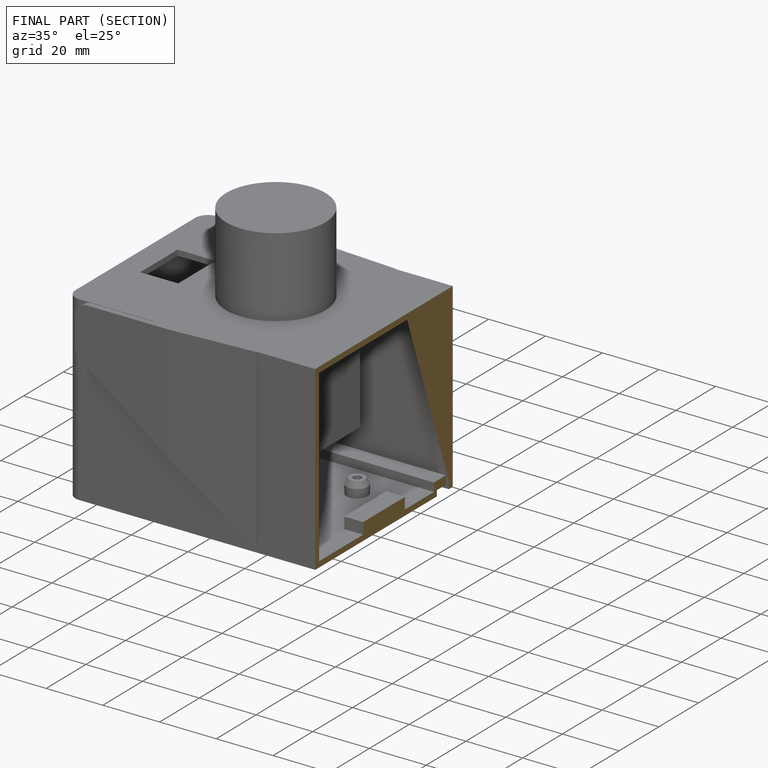
[diagram: finished part — half-section view (interior)]
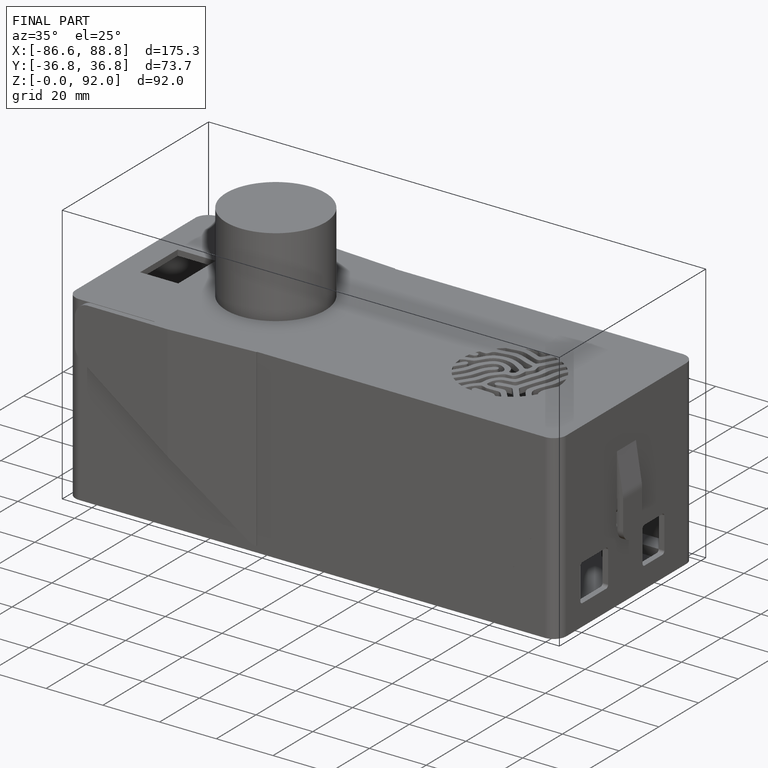
[diagram: finished part — iso view with bounding-box wireframe]
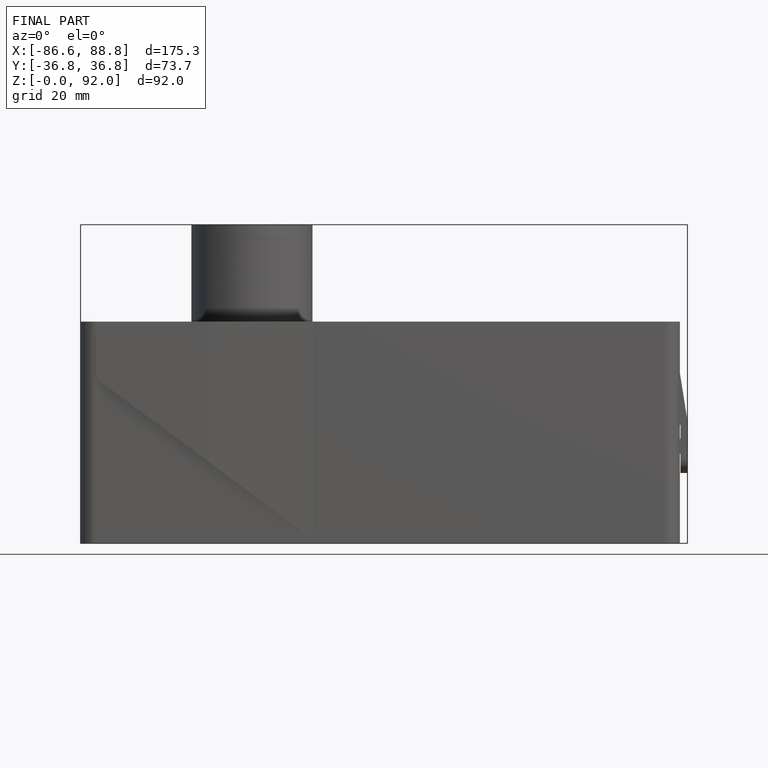
[diagram: finished part — front view with bounding-box wireframe]
